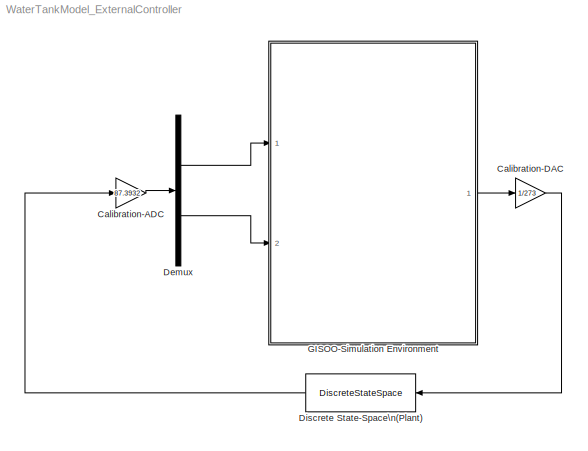
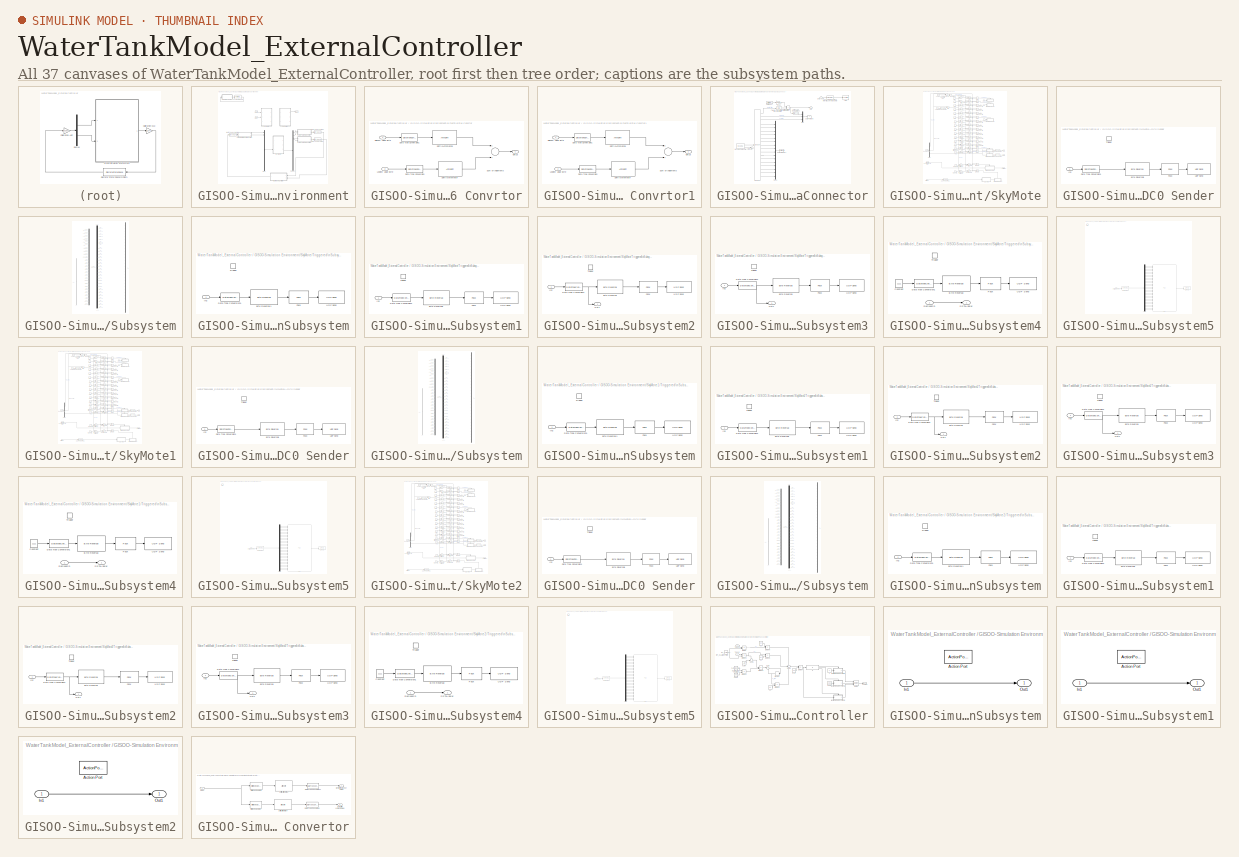
[diagram: thumbnail index - all 37 canvases of the model, root first then tree order]
MODEL WaterTankModel_ExternalController
KIND model
CONFIG InitFcn = initparametersDACADC\n
BLOCK [Gain] Calibration-ADC
  Gain = 87.3932
  OutDataTypeStr = Inherit: Inherit via internal rule
  ParamDataTypeStr = Inherit: Inherit via internal rule
  SID = 5
  SaturateOnIntegerOverflow = off
BLOCK [Gain] Calibration-DAC
  Gain = 1/273
  OutDataTypeStr = Inherit: Inherit via internal rule
  ParamDataTypeStr = Inherit: Inherit via internal rule
  SID = 14
  SaturateOnIntegerOverflow = off
BLOCK [Demux] Demux
  DisplayOption = bar
  Outputs = 2
  Ports = [1, 2]
  SID = 6
BLOCK [DiscreteStateSpace] Discrete State-Space\n(Plant)
  A = Ad
  B = Bd
  C = Cd
  D = Dd
  SID = 2
  SampleTime = -1
  X0 = x0
BLOCK [SubSystem] GISOO-Simulation Environment
  FunctionWithSeparateData = off
  MaskHideContents = off
  MinAlgLoopOccurrences = off
  Opaque = off
  Ports = [2, 1]
  PropExecContextOutsideSubsystem = off
  RTWSystemCode = Auto
  RequestExecContextInheritance = off
  SID = 158
  TreatAsAtomicUnit = on
BLOCK [Inport] GISOO-Simulation Environment/ADC0
  IconDisplay = Port number
  SID = 178
BLOCK [Inport] GISOO-Simulation Environment/ADC1
  IconDisplay = Port number
  Port = 2
  SID = 179
BLOCK [SubSystem] GISOO-Simulation Environment/BytesTo uint16 Convrtor
  FunctionWithSeparateData = off
  MaskHideContents = off
  MinAlgLoopOccurrences = off
  Opaque = off
  Ports = [2, 1]
  PropExecContextOutsideSubsystem = off
  RTWSystemCode = Auto
  RequestExecContextInheritance = off
  SID = 180
BLOCK [DataTypeConversion] GISOO-Simulation Environment/BytesTo uint16 Convrtor/Data Type Conversion
  OutDataTypeStr = uint16
  RndMeth = Floor
  SID = 180:422
  SaturateOnIntegerOverflow = off
BLOCK [DataTypeConversion] GISOO-Simulation Environment/BytesTo uint16 Convrtor/Data Type Conversion1
  OutDataTypeStr = uint16
  RndMeth = Floor
  SID = 180:423
  SaturateOnIntegerOverflow = off
BLOCK [Inport] GISOO-Simulation Environment/BytesTo uint16 Convrtor/Highest Value Byte
  IconDisplay = Port number
  SID = 180:420
BLOCK [Inport] GISOO-Simulation Environment/BytesTo uint16 Convrtor/Lowest Value Byte
  IconDisplay = Port number
  Port = 2
  SID = 180:421
BLOCK [ArithShift] GISOO-Simulation Environment/BytesTo uint16 Convrtor/Shift\nArithmetic4
  BitShiftDirection = Right
  InputPortMap = u0
  Ports = [1, 1]
  SID = 180:424
BLOCK [ArithShift] GISOO-Simulation Environment/BytesTo uint16 Convrtor/Shift\nArithmetic6
  BitShiftDirection = Left
  BitShiftNumber = 8
  InputPortMap = u0
  Ports = [1, 1]
  SID = 180:425
BLOCK [Sum] GISOO-Simulation Environment/BytesTo uint16 Convrtor/Sum of\nElements
  AccumDataTypeStr = Inherit: Same as first input
  CollapseDim = 4
  InputSameDT = off
  OutDataTypeStr = uint16
  Ports = [2, 1]
  SID = 180:426
  SaturateOnIntegerOverflow = off
BLOCK [Outport] GISOO-Simulation Environment/BytesTo uint16 Convrtor/uint16
  IconDisplay = Port number
  SID = 180:427
BLOCK [SubSystem] GISOO-Simulation Environment/BytesTo uint16 Convrtor1
  FunctionWithSeparateData = off
  MaskHideContents = off
  MinAlgLoopOccurrences = off
  Opaque = off
  Ports = [2, 1]
  PropExecContextOutsideSubsystem = off
  RTWSystemCode = Auto
  RequestExecContextInheritance = off
  SID = 181
BLOCK [DataTypeConversion] GISOO-Simulation Environment/BytesTo uint16 Convrtor1/Data Type Conversion
  OutDataTypeStr = uint16
  RndMeth = Floor
  SID = 181:851
  SaturateOnIntegerOverflow = off
BLOCK [DataTypeConversion] GISOO-Simulation Environment/BytesTo uint16 Convrtor1/Data Type Conversion1
  OutDataTypeStr = uint16
  RndMeth = Floor
  SID = 181:852
  SaturateOnIntegerOverflow = off
BLOCK [Inport] GISOO-Simulation Environment/BytesTo uint16 Convrtor1/Highest Value Byte
  IconDisplay = Port number
  SID = 181:849
BLOCK [Inport] GISOO-Simulation Environment/BytesTo uint16 Convrtor1/Lowest Value Byte
  IconDisplay = Port number
  Port = 2
  SID = 181:850
BLOCK [ArithShift] GISOO-Simulation Environment/BytesTo uint16 Convrtor1/Shift\nArithmetic4
  BitShiftDirection = Right
  InputPortMap = u0
  Ports = [1, 1]
  SID = 181:853
BLOCK [ArithShift] GISOO-Simulation Environment/BytesTo uint16 Convrtor1/Shift\nArithmetic6
  BitShiftDirection = Left
  BitShiftNumber = 8
  InputPortMap = u0
  Ports = [1, 1]
  SID = 181:854
BLOCK [Sum] GISOO-Simulation Environment/BytesTo uint16 Convrtor1/Sum of\nElements
  AccumDataTypeStr = Inherit: Same as first input
  CollapseDim = 4
  InputSameDT = off
  OutDataTypeStr = uint16
  Ports = [2, 1]
  SID = 181:855
  SaturateOnIntegerOverflow = off
BLOCK [Outport] GISOO-Simulation Environment/BytesTo uint16 Convrtor1/uint16
  IconDisplay = Port number
  SID = 181:856
BLOCK [SubSystem] GISOO-Simulation Environment/CoojaConnector
  FunctionWithSeparateData = off
  MaskHideContents = off
  MinAlgLoopOccurrences = off
  Opaque = off
  Ports = [1, 1]
  PropExecContextOutsideSubsystem = off
  RTWSystemCode = Auto
  RequestExecContextInheritance = off
  SID = 159
BLOCK [RelationalOperator] GISOO-Simulation Environment/CoojaConnector/Check if Cooja\nis not at same time\n(behind)
  InputSameDT = off
  Operator = >
  OutDataTypeStr = boolean
  Ports = [2, 1]
  SID = 161
BLOCK [Reference] GISOO-Simulation Environment/CoojaConnector/Check that we don't loop forever,\nif Cooja never answers  REF=simulink/Logic and Bit\nOperations/Compare\nTo Constant
  OutDataTypeStr = uint8
  Ports = [1, 1]
  SID = 162
  SourceBlock = simulink/Logic and Bit\nOperations/Compare\nTo Constant
  SourceType = Compare To Constant
  ZeroCross = off
  const = 300000
  relop = <
BLOCK [DataTypeConversion] GISOO-Simulation Environment/CoojaConnector/Data Type Conversion1
  OutDataTypeStr = uint32
  RndMeth = Floor
  SID = 163
  SaturateOnIntegerOverflow = off
BLOCK [Goto] GISOO-Simulation Environment/CoojaConnector/DataForMotes
  SID = 164
  TagVisibility = global
BLOCK [Goto] GISOO-Simulation Environment/CoojaConnector/DataForMotes1
  GotoTag = SerialData
  SID = 165
  TagVisibility = global
BLOCK [Inport] GISOO-Simulation Environment/CoojaConnector/DelayNum.
  IconDisplay = Port number
  SID = 160
BLOCK [DigitalClock] GISOO-Simulation Environment/CoojaConnector/Digital Clock
  SID = 166
  SampleTime = -1
BLOCK [Mux] GISOO-Simulation Environment/CoojaConnector/Mux
  DisplayOption = bar
  Inputs = 3
  Ports = [3, 1]
  SID = 167
BLOCK [Mux] GISOO-Simulation Environment/CoojaConnector/Mux5
  DisplayOption = bar
  Inputs = 16
  Ports = [16, 1]
  SID = 168
BLOCK [Reference] GISOO-Simulation Environment/CoojaConnector/ReceiveFromCooja  REF=xpclib/UDP/Receive
  Ports = [0, 2]
  SID = 169
  SourceBlock = xpclib/UDP/Receive
  SourceType = xpcudpbytereceive
  ipAddress = 127.0.0.1
  ipPort = 55555
  sampletime = -1
  vblLen = off
  width = 28
BLOCK [Assertion] GISOO-Simulation Environment/CoojaConnector/Stop
  AssertionFailFcn = No communication with Cooja;
  SID = 170
BLOCK [Terminator] GISOO-Simulation Environment/CoojaConnector/Terminator
  SID = 171
BLOCK [Bias] GISOO-Simulation Environment/CoojaConnector/Tolerance\ndue to rounding errors
  SID = 172
  SaturateOnIntegerOverflow = off
BLOCK [Reference] GISOO-Simulation Environment/CoojaConnector/Unpack  REF=xpclib/UDP/Unpack
  Ports = [1, 19]
  SID = 173
  SourceBlock = xpclib/UDP/Unpack
  SourceType = xpcbyte2any
  byteAlign = 1
  datatypes = {'uint32','uint32','uint32','uint8','uint8','uint8','uint8','uint8','uint8','uint8','uint8','uint8','uint8','uint8','uint8','uint8','uint8','uint8','uint8'}
  dimensions = {[1],[1],[1],[1],[1],[1],[1],[1],[1],[1],[1],[1],[1],[1],[1],[1],[1],[1],[1]}
BLOCK [Outport] GISOO-Simulation Environment/CoojaConnector/Wait
  IconDisplay = Port number
  SID = 175
BLOCK [Gain] GISOO-Simulation Environment/CoojaConnector/to ms3
  Gain = 1000
  OutDataTypeStr = Inherit: Inherit via back propagation
  ParamDataTypeStr = uint32
  SID = 174
  SaturateOnIntegerOverflow = off
BLOCK [Outport] GISOO-Simulation Environment/DAC0
  IconDisplay = Port number
  SID = 909
BLOCK [DataTypeConversion] GISOO-Simulation Environment/Data Type Conversion
  OutDataTypeStr = double
  RndMeth = Floor
  SID = 182
  SaturateOnIntegerOverflow = off
BLOCK [DataTypeConversion] GISOO-Simulation Environment/Data Type Conversion1
  OutDataTypeStr = double
  RndMeth = Floor
  SID = 183
  SaturateOnIntegerOverflow = off
BLOCK [DataTypeConversion] GISOO-Simulation Environment/Data Type Conversion2
  OutDataTypeStr = uint16
  RndMeth = Floor
  SID = 184
  SaturateOnIntegerOverflow = off
BLOCK [Demux] GISOO-Simulation Environment/Demux2
  DisplayOption = bar
  Outputs = 16
  Ports = [1, 16]
  SID = 185
BLOCK [Mux] GISOO-Simulation Environment/Mux1
  DisplayOption = bar
  Inputs = 16
  Ports = [16, 1]
  SID = 186
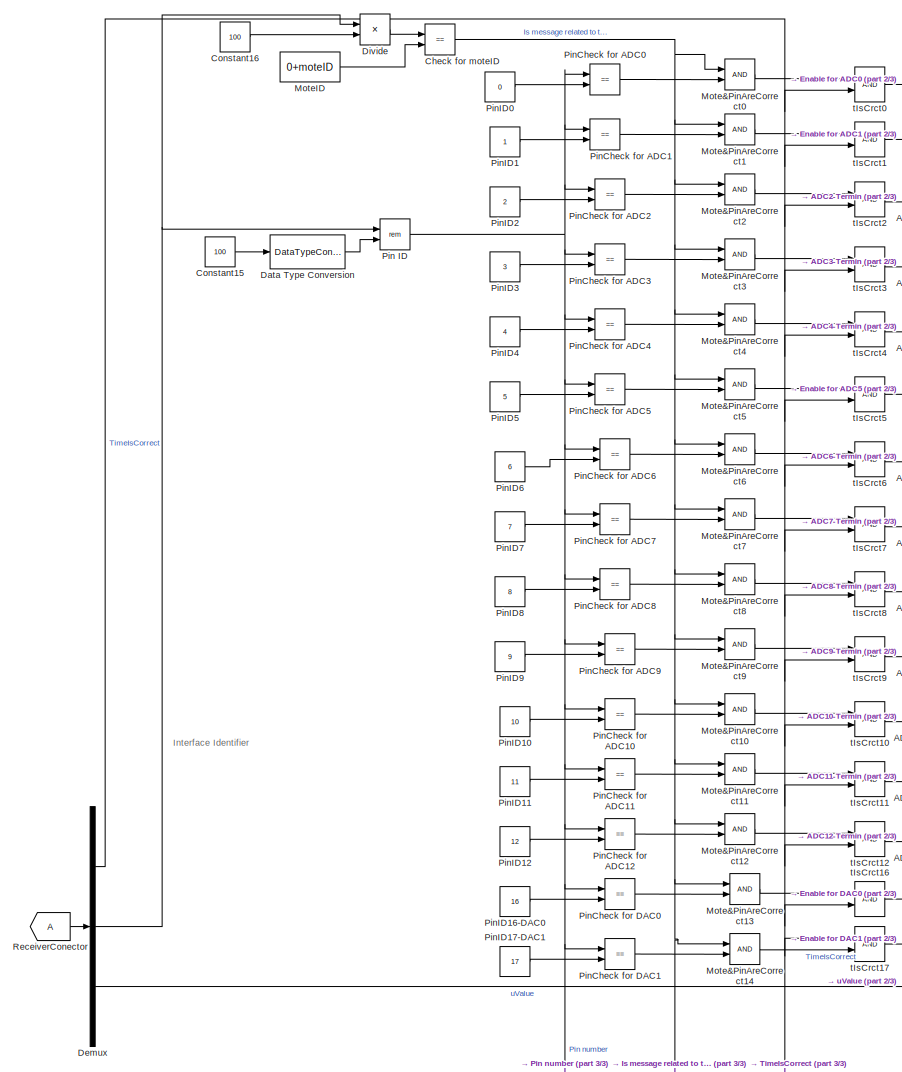
[diagram: GISOO-Simulation Environment/SkyMote - part 1/3, central region]
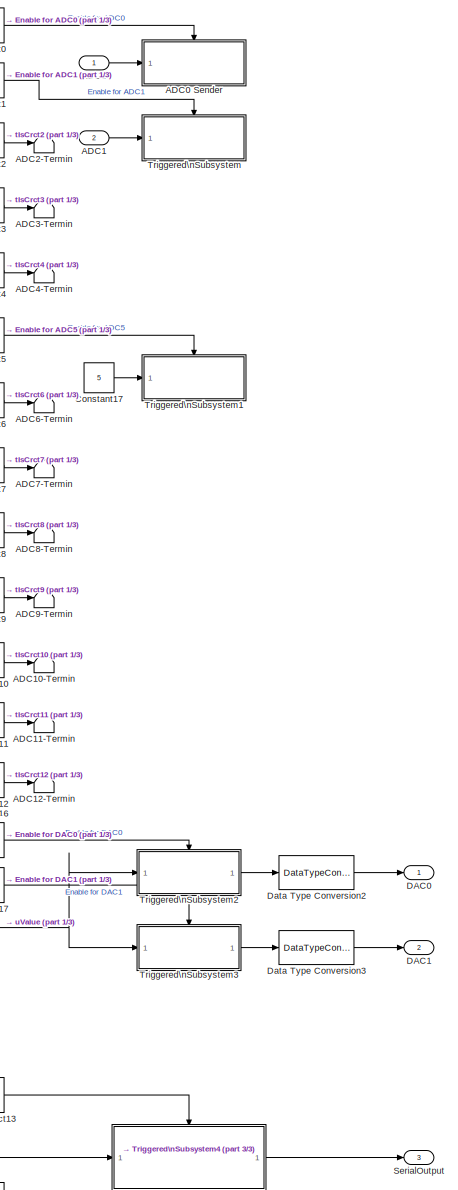
[diagram: GISOO-Simulation Environment/SkyMote - part 2/3, right side, full height]
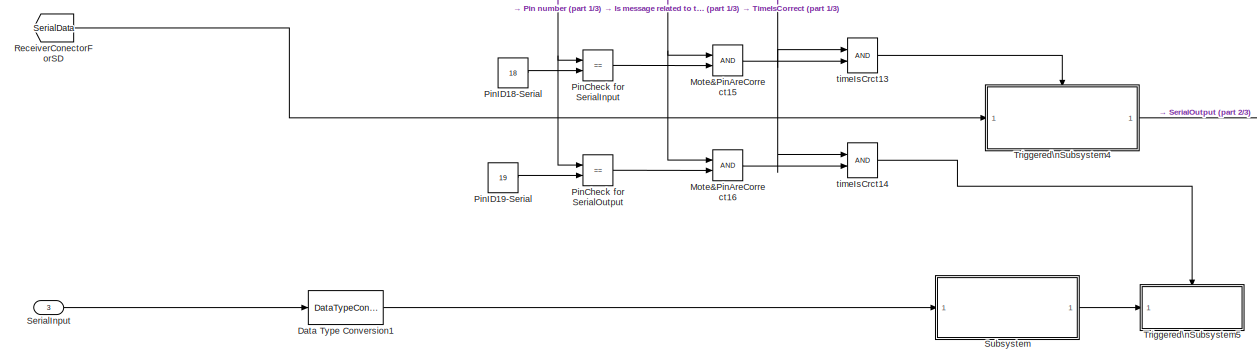
[diagram: GISOO-Simulation Environment/SkyMote - part 3/3, full width, bottom band]
BLOCK [SubSystem] GISOO-Simulation Environment/SkyMote
  FunctionWithSeparateData = off
  MaskHideContents = off
  MinAlgLoopOccurrences = off
  Opaque = off
  Ports = [3, 3]
  PropExecContextOutsideSubsystem = off
  RTWSystemCode = Auto
  RequestExecContextInheritance = off
  SID = 187
BLOCK [Inport] GISOO-Simulation Environment/SkyMote/ADC0
  IconDisplay = Port number
  SID = 188
BLOCK [SubSystem] GISOO-Simulation Environment/SkyMote/ADC0 Sender
  FunctionWithSeparateData = off
  MaskHideContents = off
  MinAlgLoopOccurrences = off
  Opaque = off
  Ports = [1, 0, 0, 1]
  PropExecContextOutsideSubsystem = off
  RTWSystemCode = Auto
  RequestExecContextInheritance = off
  SID = 191
  TreatAsAtomicUnit = on
BLOCK [Reference] GISOO-Simulation Environment/SkyMote/ADC0 Sender/Byte Reversal1  REF=etargetslib/Byte Reversal
  Ports = [1, 1]
  SID = 194
  SourceBlock = etargetslib/Byte Reversal
  SourceType = Byte Reversal
  numInp = 1
BLOCK [DataTypeConversion] GISOO-Simulation Environment/SkyMote/ADC0 Sender/Data Type Conversion1
  OutDataTypeStr = uint32
  RndMeth = Floor
  SID = 195
  SaturateOnIntegerOverflow = off
BLOCK [Inport] GISOO-Simulation Environment/SkyMote/ADC0 Sender/In2
  IconDisplay = Port number
  SID = 192
BLOCK [Reference] GISOO-Simulation Environment/SkyMote/ADC0 Sender/Pack  REF=xpclib/UDP/Pack
  Ports = [1, 1]
  SID = 196
  SourceBlock = xpclib/UDP/Pack
  SourceType = xpcany2byte
  byteAlign = 1
  datatypes = {'uint32'}
BLOCK [TriggerPort] GISOO-Simulation Environment/SkyMote/ADC0 Sender/Trigger
  Ports = []
  SID = 193
  StatesWhenEnabling = held
BLOCK [Reference] GISOO-Simulation Environment/SkyMote/ADC0 Sender/UDP Send  REF=dspnetwork/UDP Send
  Ports = [1]
  SID = 197
  SourceBlock = dspnetwork/UDP Send
  SourceType = UDP Send
  localPort = -1
  localPortSource = Automatically determine
  localURL = '0.0.0.0'
  remotePort = 18000+moteID
  remoteURL = '127.0.0.1'
  sampletime = -1
  separateLengthPort = 0
BLOCK [Inport] GISOO-Simulation Environment/SkyMote/ADC1
  IconDisplay = Port number
  Port = 2
  SID = 189
BLOCK [Terminator] GISOO-Simulation Environment/SkyMote/ADC10-Termin
  SID = 198
BLOCK [Terminator] GISOO-Simulation Environment/SkyMote/ADC11-Termin
  SID = 199
BLOCK [Terminator] GISOO-Simulation Environment/SkyMote/ADC12-Termin
  SID = 200
BLOCK [Terminator] GISOO-Simulation Environment/SkyMote/ADC2-Termin
  SID = 201
BLOCK [Terminator] GISOO-Simulation Environment/SkyMote/ADC3-Termin
  SID = 202
BLOCK [Terminator] GISOO-Simulation Environment/SkyMote/ADC4-Termin
  SID = 203
BLOCK [Terminator] GISOO-Simulation Environment/SkyMote/ADC6-Termin
  SID = 204
BLOCK [Terminator] GISOO-Simulation Environment/SkyMote/ADC7-Termin
  SID = 205
BLOCK [Terminator] GISOO-Simulation Environment/SkyMote/ADC8-Termin
  SID = 206
BLOCK [Terminator] GISOO-Simulation Environment/SkyMote/ADC9-Termin
  SID = 207
BLOCK [RelationalOperator] GISOO-Simulation Environment/SkyMote/Check for moteID
  InputSameDT = off
  Operator = ==
  OutDataTypeStr = boolean
  Ports = [2, 1]
  SID = 208
BLOCK [Constant] GISOO-Simulation Environment/SkyMote/Constant15
  SID = 209
  Value = 100
BLOCK [Constant] GISOO-Simulation Environment/SkyMote/Constant16
  SID = 210
  Value = 100
BLOCK [Constant] GISOO-Simulation Environment/SkyMote/Constant17
  SID = 211
  Value = 5
BLOCK [Outport] GISOO-Simulation Environment/SkyMote/DAC0
  IconDisplay = Port number
  SID = 410
BLOCK [Outport] GISOO-Simulation Environment/SkyMote/DAC1
  IconDisplay = Port number
  Port = 2
  SID = 411
BLOCK [DataTypeConversion] GISOO-Simulation Environment/SkyMote/Data Type Conversion
  OutDataTypeStr = uint32
  RndMeth = Floor
  SID = 212
  SaturateOnIntegerOverflow = off
BLOCK [DataTypeConversion] GISOO-Simulation Environment/SkyMote/Data Type Conversion1
  OutDataTypeStr = uint32
  RndMeth = Floor
  SID = 213
  SaturateOnIntegerOverflow = off
BLOCK [DataTypeConversion] GISOO-Simulation Environment/SkyMote/Data Type Conversion2
  OutDataTypeStr = double
  RndMeth = Floor
  SID = 214
  SaturateOnIntegerOverflow = off
BLOCK [DataTypeConversion] GISOO-Simulation Environment/SkyMote/Data Type Conversion3
  OutDataTypeStr = double
  RndMeth = Floor
  SID = 215
  SaturateOnIntegerOverflow = off
BLOCK [Demux] GISOO-Simulation Environment/SkyMote/Demux
  DisplayOption = bar
  Outputs = 3
  Ports = [1, 3]
  SID = 216
BLOCK [Product] GISOO-Simulation Environment/SkyMote/Divide
  InputSameDT = off
  Inputs = */
  OutDataTypeStr = int32
  Ports = [2, 1]
  RndMeth = Floor
  SID = 217
  SaturateOnIntegerOverflow = off
BLOCK [Logic] GISOO-Simulation Environment/SkyMote/Mote&PinAreCorrect0
  AllPortsSameDT = off
  OutDataTypeStr = boolean
  Ports = [2, 1]
  SID = 218
BLOCK [Logic] GISOO-Simulation Environment/SkyMote/Mote&PinAreCorrect1
  AllPortsSameDT = off
  OutDataTypeStr = boolean
  Ports = [2, 1]
  SID = 219
BLOCK [Logic] GISOO-Simulation Environment/SkyMote/Mote&PinAreCorrect10
  AllPortsSameDT = off
  OutDataTypeStr = boolean
  Ports = [2, 1]
  SID = 220
BLOCK [Logic] GISOO-Simulation Environment/SkyMote/Mote&PinAreCorrect11
  AllPortsSameDT = off
  OutDataTypeStr = boolean
  Ports = [2, 1]
  SID = 221
BLOCK [Logic] GISOO-Simulation Environment/SkyMote/Mote&PinAreCorrect12
  AllPortsSameDT = off
  OutDataTypeStr = boolean
  Ports = [2, 1]
  SID = 222
BLOCK [Logic] GISOO-Simulation Environment/SkyMote/Mote&PinAreCorrect13
  AllPortsSameDT = off
  OutDataTypeStr = boolean
  Ports = [2, 1]
  SID = 223
BLOCK [Logic] GISOO-Simulation Environment/SkyMote/Mote&PinAreCorrect14
  AllPortsSameDT = off
  OutDataTypeStr = boolean
  Ports = [2, 1]
  SID = 224
BLOCK [Logic] GISOO-Simulation Environment/SkyMote/Mote&PinAreCorrect15
  AllPortsSameDT = off
  OutDataTypeStr = boolean
  Ports = [2, 1]
  SID = 225
BLOCK [Logic] GISOO-Simulation Environment/SkyMote/Mote&PinAreCorrect16
  AllPortsSameDT = off
  OutDataTypeStr = boolean
  Ports = [2, 1]
  SID = 226
BLOCK [Logic] GISOO-Simulation Environment/SkyMote/Mote&PinAreCorrect2
  AllPortsSameDT = off
  OutDataTypeStr = boolean
  Ports = [2, 1]
  SID = 227
BLOCK [Logic] GISOO-Simulation Environment/SkyMote/Mote&PinAreCorrect3
  AllPortsSameDT = off
  OutDataTypeStr = boolean
  Ports = [2, 1]
  SID = 228
BLOCK [Logic] GISOO-Simulation Environment/SkyMote/Mote&PinAreCorrect4
  AllPortsSameDT = off
  OutDataTypeStr = boolean
  Ports = [2, 1]
  SID = 229
BLOCK [Logic] GISOO-Simulation Environment/SkyMote/Mote&PinAreCorrect5
  AllPortsSameDT = off
  OutDataTypeStr = boolean
  Ports = [2, 1]
  SID = 230
BLOCK [Logic] GISOO-Simulation Environment/SkyMote/Mote&PinAreCorrect6
  AllPortsSameDT = off
  OutDataTypeStr = boolean
  Ports = [2, 1]
  SID = 231
BLOCK [Logic] GISOO-Simulation Environment/SkyMote/Mote&PinAreCorrect7
  AllPortsSameDT = off
  OutDataTypeStr = boolean
  Ports = [2, 1]
  SID = 232
BLOCK [Logic] GISOO-Simulation Environment/SkyMote/Mote&PinAreCorrect8
  AllPortsSameDT = off
  OutDataTypeStr = boolean
  Ports = [2, 1]
  SID = 233
BLOCK [Logic] GISOO-Simulation Environment/SkyMote/Mote&PinAreCorrect9
  AllPortsSameDT = off
  OutDataTypeStr = boolean
  Ports = [2, 1]
  SID = 234
BLOCK [Constant] GISOO-Simulation Environment/SkyMote/MoteID
  SID = 235
  Value = 0+moteID
BLOCK [Math] GISOO-Simulation Environment/SkyMote/Pin ID
  Operator = rem
  Ports = [2, 1]
  SID = 236
BLOCK [RelationalOperator] GISOO-Simulation Environment/SkyMote/PinCheck for ADC0
  InputSameDT = off
  Operator = ==
  OutDataTypeStr = boolean
  Ports = [2, 1]
  SID = 237
BLOCK [RelationalOperator] GISOO-Simulation Environment/SkyMote/PinCheck for ADC1
  InputSameDT = off
  Operator = ==
  OutDataTypeStr = boolean
  Ports = [2, 1]
  SID = 238
BLOCK [RelationalOperator] GISOO-Simulation Environment/SkyMote/PinCheck for ADC10
  InputSameDT = off
  Operator = ==
  OutDataTypeStr = boolean
  Ports = [2, 1]
  SID = 239
BLOCK [RelationalOperator] GISOO-Simulation Environment/SkyMote/PinCheck for ADC11
  InputSameDT = off
  Operator = ==
  OutDataTypeStr = boolean
  Ports = [2, 1]
  SID = 240
BLOCK [RelationalOperator] GISOO-Simulation Environment/SkyMote/PinCheck for ADC12
  InputSameDT = off
  Operator = ==
  OutDataTypeStr = boolean
  Ports = [2, 1]
  SID = 241
BLOCK [RelationalOperator] GISOO-Simulation Environment/SkyMote/PinCheck for ADC2
  InputSameDT = off
  Operator = ==
  OutDataTypeStr = boolean
  Ports = [2, 1]
  SID = 242
BLOCK [RelationalOperator] GISOO-Simulation Environment/SkyMote/PinCheck for ADC3
  InputSameDT = off
  Operator = ==
  OutDataTypeStr = boolean
  Ports = [2, 1]
  SID = 243
BLOCK [RelationalOperator] GISOO-Simulation Environment/SkyMote/PinCheck for ADC4
  InputSameDT = off
  Operator = ==
  OutDataTypeStr = boolean
  Ports = [2, 1]
  SID = 244
BLOCK [RelationalOperator] GISOO-Simulation Environment/SkyMote/PinCheck for ADC5
  InputSameDT = off
  Operator = ==
  OutDataTypeStr = boolean
  Ports = [2, 1]
  SID = 245
BLOCK [RelationalOperator] GISOO-Simulation Environment/SkyMote/PinCheck for ADC6
  InputSameDT = off
  Operator = ==
  OutDataTypeStr = boolean
  Ports = [2, 1]
  SID = 246
BLOCK [RelationalOperator] GISOO-Simulation Environment/SkyMote/PinCheck for ADC7
  InputSameDT = off
  Operator = ==
  OutDataTypeStr = boolean
  Ports = [2, 1]
  SID = 247
BLOCK [RelationalOperator] GISOO-Simulation Environment/SkyMote/PinCheck for ADC8
  InputSameDT = off
  Operator = ==
  OutDataTypeStr = boolean
  Ports = [2, 1]
  SID = 248
BLOCK [RelationalOperator] GISOO-Simulation Environment/SkyMote/PinCheck for ADC9
  InputSameDT = off
  Operator = ==
  OutDataTypeStr = boolean
  Ports = [2, 1]
  SID = 249
BLOCK [RelationalOperator] GISOO-Simulation Environment/SkyMote/PinCheck for DAC0
  InputSameDT = off
  Operator = ==
  OutDataTypeStr = boolean
  Ports = [2, 1]
  SID = 250
BLOCK [RelationalOperator] GISOO-Simulation Environment/SkyMote/PinCheck for DAC1
  InputSameDT = off
  Operator = ==
  OutDataTypeStr = boolean
  Ports = [2, 1]
  SID = 251
BLOCK [RelationalOperator] GISOO-Simulation Environment/SkyMote/PinCheck for SerialInput
  InputSameDT = off
  Operator = ==
  OutDataTypeStr = boolean
  Ports = [2, 1]
  SID = 252
BLOCK [RelationalOperator] GISOO-Simulation Environment/SkyMote/PinCheck for SerialOutput
  InputSameDT = off
  Operator = ==
  OutDataTypeStr = boolean
  Ports = [2, 1]
  SID = 253
BLOCK [Constant] GISOO-Simulation Environment/SkyMote/PinID0
  SID = 254
  Value = 0
BLOCK [Constant] GISOO-Simulation Environment/SkyMote/PinID1
  SID = 255
BLOCK [Constant] GISOO-Simulation Environment/SkyMote/PinID10
  SID = 256
  Value = 10
BLOCK [Constant] GISOO-Simulation Environment/SkyMote/PinID11
  SID = 257
  Value = 11
BLOCK [Constant] GISOO-Simulation Environment/SkyMote/PinID12
  SID = 258
  Value = 12
BLOCK [Constant] GISOO-Simulation Environment/SkyMote/PinID16-DAC0
  SID = 259
  Value = 16
BLOCK [Constant] GISOO-Simulation Environment/SkyMote/PinID17-DAC1
  SID = 260
  Value = 17
BLOCK [Constant] GISOO-Simulation Environment/SkyMote/PinID18-Serial
  SID = 261
  Value = 18
BLOCK [Constant] GISOO-Simulation Environment/SkyMote/PinID19-Serial
  SID = 262
  Value = 19
BLOCK [Constant] GISOO-Simulation Environment/SkyMote/PinID2
  SID = 263
  Value = 2
BLOCK [Constant] GISOO-Simulation Environment/SkyMote/PinID3
  SID = 264
  Value = 3
BLOCK [Constant] GISOO-Simulation Environment/SkyMote/PinID4
  SID = 265
  Value = 4
BLOCK [Constant] GISOO-Simulation Environment/SkyMote/PinID5
  SID = 266
  Value = 5
BLOCK [Constant] GISOO-Simulation Environment/SkyMote/PinID6
  SID = 267
  Value = 6
BLOCK [Constant] GISOO-Simulation Environment/SkyMote/PinID7
  SID = 268
  Value = 7
BLOCK [Constant] GISOO-Simulation Environment/SkyMote/PinID8
  SID = 269
  Value = 8
BLOCK [Constant] GISOO-Simulation Environment/SkyMote/PinID9
  SID = 270
  Value = 9
BLOCK [From] GISOO-Simulation Environment/SkyMote/ReceiverConector
  SID = 271
  TagVisibility = global
BLOCK [From] GISOO-Simulation Environment/SkyMote/ReceiverConectorForSD
  GotoTag = SerialData
  SID = 272
  TagVisibility = global
BLOCK [Inport] GISOO-Simulation Environment/SkyMote/SerialInput
  IconDisplay = Port number
  Port = 3
  SID = 190
BLOCK [Outport] GISOO-Simulation Environment/SkyMote/SerialOutput
  IconDisplay = Port number
  Port = 3
  SID = 412
BLOCK [SubSystem] GISOO-Simulation Environment/SkyMote/Subsystem
  FunctionWithSeparateData = off
  MaskHideContents = off
  MinAlgLoopOccurrences = off
  Opaque = off
  Ports = [1, 1]
  PropExecContextOutsideSubsystem = off
  RTWSystemCode = Auto
  RequestExecContextInheritance = off
  SID = 273
BLOCK [Constant] GISOO-Simulation Environment/SkyMote/Subsystem/AM Packet type
  OutDataTypeStr = double
  SID = 275
  Value = PacketType
BLOCK [Reference] GISOO-Simulation Environment/SkyMote/Subsystem/Bit to Integer\nConverter  REF=commutil2/Bit to Integer\nConverter
  Ports = [1, 1]
  SID = 276
  SourceBlock = commutil2/Bit to Integer\nConverter
  SourceType = Bit to Integer Converter
  bitOrder = MSB first
  nbits = 8
  outDtype = Inherit via internal rule
  outDtypeSigned = Inherit via internal rule
  signedOutputValues = Unsigned
BLOCK [Reference] GISOO-Simulation Environment/SkyMote/Subsystem/Bit to Integer\nConverter1  REF=commutil2/Bit to Integer\nConverter
  Ports = [1, 1]
  SID = 277
  SourceBlock = commutil2/Bit to Integer\nConverter
  SourceType = Bit to Integer Converter
  bitOrder = MSB first
  nbits = 8
  outDtype = Inherit via internal rule
  outDtypeSigned = Inherit via internal rule
  signedOutputValues = Unsigned
BLOCK [Reference] GISOO-Simulation Environment/SkyMote/Subsystem/Bit to Integer\nConverter10  REF=commutil2/Bit to Integer\nConverter
  Ports = [1, 1]
  SID = 278
  SourceBlock = commutil2/Bit to Integer\nConverter
  SourceType = Bit to Integer Converter
  bitOrder = MSB first
  nbits = 8
  outDtype = Inherit via internal rule
  outDtypeSigned = Inherit via internal rule
  signedOutputValues = Unsigned
BLOCK [Reference] GISOO-Simulation Environment/SkyMote/Subsystem/Bit to Integer\nConverter11  REF=commutil2/Bit to Integer\nConverter
  Ports = [1, 1]
  SID = 279
  SourceBlock = commutil2/Bit to Integer\nConverter
  SourceType = Bit to Integer Converter
  bitOrder = MSB first
  nbits = 8
  outDtype = Inherit via internal rule
  outDtypeSigned = Inherit via internal rule
  signedOutputValues = Unsigned
BLOCK [Reference] GISOO-Simulation Environment/SkyMote/Subsystem/Bit to Integer\nConverter12  REF=commutil2/Bit to Integer\nConverter
  Ports = [1, 1]
  SID = 280
  SourceBlock = commutil2/Bit to Integer\nConverter
  SourceType = Bit to Integer Converter
  bitOrder = MSB first
  nbits = 8
  outDtype = Inherit via internal rule
  outDtypeSigned = Inherit via internal rule
  signedOutputValues = Unsigned
BLOCK [Reference] GISOO-Simulation Environment/SkyMote/Subsystem/Bit to Integer\nConverter13  REF=commutil2/Bit to Integer\nConverter
  Ports = [1, 1]
  SID = 281
  SourceBlock = commutil2/Bit to Integer\nConverter
  SourceType = Bit to Integer Converter
  bitOrder = MSB first
  nbits = 8
  outDtype = Inherit via internal rule
  outDtypeSigned = Inherit via internal rule
  signedOutputValues = Unsigned
BLOCK [Reference] GISOO-Simulation Environment/SkyMote/Subsystem/Bit to Integer\nConverter14  REF=commutil2/Bit to Integer\nConverter
  Ports = [1, 1]
  SID = 282
  SourceBlock = commutil2/Bit to Integer\nConverter
  SourceType = Bit to Integer Converter
  bitOrder = MSB first
  nbits = 8
  outDtype = Inherit via internal rule
  outDtypeSigned = Inherit via internal rule
  signedOutputValues = Unsigned
BLOCK [Reference] GISOO-Simulation Environment/SkyMote/Subsystem/Bit to Integer\nConverter15  REF=commutil2/Bit to Integer\nConverter
  Ports = [1, 1]
  SID = 283
  SourceBlock = commutil2/Bit to Integer\nConverter
  SourceType = Bit to Integer Converter
  bitOrder = MSB first
  nbits = 8
  outDtype = Inherit via internal rule
  outDtypeSigned = Inherit via internal rule
  signedOutputValues = Unsigned
BLOCK [Reference] GISOO-Simulation Environment/SkyMote/Subsystem/Bit to Integer\nConverter16  REF=commutil2/Bit to Integer\nConverter
  Ports = [1, 1]
  SID = 284
  SourceBlock = commutil2/Bit to Integer\nConverter
  SourceType = Bit to Integer Converter
  bitOrder = MSB first
  nbits = 8
  outDtype = Inherit via internal rule
  outDtypeSigned = Inherit via internal rule
  signedOutputValues = Unsigned
BLOCK [Reference] GISOO-Simulation Environment/SkyMote/Subsystem/Bit to Integer\nConverter17  REF=commutil2/Bit to Integer\nConverter
  Ports = [1, 1]
  SID = 285
  SourceBlock = commutil2/Bit to Integer\nConverter
  SourceType = Bit to Integer Converter
  bitOrder = MSB first
  nbits = 8
  outDtype = Inherit via internal rule
  outDtypeSigned = Inherit via internal rule
  signedOutputValues = Unsigned
BLOCK [Reference] GISOO-Simulation Environment/SkyMote/Subsystem/Bit to Integer\nConverter18  REF=commutil2/Bit to Integer\nConverter
  Ports = [1, 1]
  SID = 286
  SourceBlock = commutil2/Bit to Integer\nConverter
  SourceType = Bit to Integer Converter
  bitOrder = MSB first
  nbits = 8
  outDtype = Inherit via internal rule
  outDtypeSigned = Inherit via internal rule
  signedOutputValues = Unsigned
BLOCK [Reference] GISOO-Simulation Environment/SkyMote/Subsystem/Bit to Integer\nConverter19  REF=commutil2/Bit to Integer\nConverter
  Ports = [1, 1]
  SID = 287
  SourceBlock = commutil2/Bit to Integer\nConverter
  SourceType = Bit to Integer Converter
  bitOrder = MSB first
  nbits = 8
  outDtype = Inherit via internal rule
  outDtypeSigned = Inherit via internal rule
  signedOutputValues = Unsigned
BLOCK [Reference] GISOO-Simulation Environment/SkyMote/Subsystem/Bit to Integer\nConverter2  REF=commutil2/Bit to Integer\nConverter
  Ports = [1, 1]
  SID = 288
  SourceBlock = commutil2/Bit to Integer\nConverter
  SourceType = Bit to Integer Converter
  bitOrder = MSB first
  nbits = 8
  outDtype = Inherit via internal rule
  outDtypeSigned = Inherit via internal rule
  signedOutputValues = Unsigned
BLOCK [Reference] GISOO-Simulation Environment/SkyMote/Subsystem/Bit to Integer\nConverter20  REF=commutil2/Bit to Integer\nConverter
  Ports = [1, 1]
  SID = 289
  SourceBlock = commutil2/Bit to Integer\nConverter
  SourceType = Bit to Integer Converter
  bitOrder = MSB first
  nbits = 8
  outDtype = Inherit via internal rule
  outDtypeSigned = Inherit via internal rule
  signedOutputValues = Unsigned
BLOCK [Reference] GISOO-Simulation Environment/SkyMote/Subsystem/Bit to Integer\nConverter21  REF=commutil2/Bit to Integer\nConverter
  Ports = [1, 1]
  SID = 290
  SourceBlock = commutil2/Bit to Integer\nConverter
  SourceType = Bit to Integer Converter
  bitOrder = MSB first
  nbits = 8
  outDtype = Inherit via internal rule
  outDtypeSigned = Inherit via internal rule
  signedOutputValues = Unsigned
BLOCK [Reference] GISOO-Simulation Environment/SkyMote/Subsystem/Bit to Integer\nConverter22  REF=commutil2/Bit to Integer\nConverter
  Ports = [1, 1]
  SID = 291
  SourceBlock = commutil2/Bit to Integer\nConverter
  SourceType = Bit to Integer Converter
  bitOrder = MSB first
  nbits = 8
  outDtype = Inherit via internal rule
  outDtypeSigned = Inherit via internal rule
  signedOutputValues = Unsigned
BLOCK [Reference] GISOO-Simulation Environment/SkyMote/Subsystem/Bit to Integer\nConverter23  REF=commutil2/Bit to Integer\nConverter
  Ports = [1, 1]
  SID = 292
  SourceBlock = commutil2/Bit to Integer\nConverter
  SourceType = Bit to Integer Converter
  bitOrder = MSB first
  nbits = 8
  outDtype = Inherit via internal rule
  outDtypeSigned = Inherit via internal rule
  signedOutputValues = Unsigned
BLOCK [Reference] GISOO-Simulation Environment/SkyMote/Subsystem/Bit to Integer\nConverter24  REF=commutil2/Bit to Integer\nConverter
  Ports = [1, 1]
  SID = 293
  SourceBlock = commutil2/Bit to Integer\nConverter
  SourceType = Bit to Integer Converter
  bitOrder = MSB first
  nbits = 8
  outDtype = Inherit via internal rule
  outDtypeSigned = Inherit via internal rule
  signedOutputValues = Unsigned
BLOCK [Reference] GISOO-Simulation Environment/SkyMote/Subsystem/Bit to Integer\nConverter25  REF=commutil2/Bit to Integer\nConverter
  Ports = [1, 1]
  SID = 294
  SourceBlock = commutil2/Bit to Integer\nConverter
  SourceType = Bit to Integer Converter
  bitOrder = MSB first
  nbits = 8
  outDtype = Inherit via internal rule
  outDtypeSigned = Inherit via internal rule
  signedOutputValues = Unsigned
BLOCK [Reference] GISOO-Simulation Environment/SkyMote/Subsystem/Bit to Integer\nConverter26  REF=commutil2/Bit to Integer\nConverter
  Ports = [1, 1]
  SID = 295
  SourceBlock = commutil2/Bit to Integer\nConverter
  SourceType = Bit to Integer Converter
  bitOrder = MSB first
  nbits = 8
  outDtype = Inherit via internal rule
  outDtypeSigned = Inherit via internal rule
  signedOutputValues = Unsigned
BLOCK [Reference] GISOO-Simulation Environment/SkyMote/Subsystem/Bit to Integer\nConverter27  REF=commutil2/Bit to Integer\nConverter
  Ports = [1, 1]
  SID = 296
  SourceBlock = commutil2/Bit to Integer\nConverter
  SourceType = Bit to Integer Converter
  bitOrder = MSB first
  nbits = 8
  outDtype = Inherit via internal rule
  outDtypeSigned = Inherit via internal rule
  signedOutputValues = Unsigned
BLOCK [Reference] GISOO-Simulation Environment/SkyMote/Subsystem/Bit to Integer\nConverter3  REF=commutil2/Bit to Integer\nConverter
  Ports = [1, 1]
  SID = 297
  SourceBlock = commutil2/Bit to Integer\nConverter
  SourceType = Bit to Integer Converter
  bitOrder = MSB first
  nbits = 8
  outDtype = Inherit via internal rule
  outDtypeSigned = Inherit via internal rule
  signedOutputValues = Unsigned
BLOCK [Reference] GISOO-Simulation Environment/SkyMote/Subsystem/Bit to Integer\nConverter4  REF=commutil2/Bit to Integer\nConverter
  Ports = [1, 1]
  SID = 298
  SourceBlock = commutil2/Bit to Integer\nConverter
  SourceType = Bit to Integer Converter
  bitOrder = MSB first
  nbits = 8
  outDtype = Inherit via internal rule
  outDtypeSigned = Inherit via internal rule
  signedOutputValues = Unsigned
BLOCK [Reference] GISOO-Simulation Environment/SkyMote/Subsystem/Bit to Integer\nConverter5  REF=commutil2/Bit to Integer\nConverter
  Ports = [1, 1]
  SID = 299
  SourceBlock = commutil2/Bit to Integer\nConverter
  SourceType = Bit to Integer Converter
  bitOrder = MSB first
  nbits = 8
  outDtype = Inherit via internal rule
  outDtypeSigned = Inherit via internal rule
  signedOutputValues = Unsigned
BLOCK [Reference] GISOO-Simulation Environment/SkyMote/Subsystem/Bit to Integer\nConverter6  REF=commutil2/Bit to Integer\nConverter
  Ports = [1, 1]
  SID = 300
  SourceBlock = commutil2/Bit to Integer\nConverter
  SourceType = Bit to Integer Converter
  bitOrder = MSB first
  nbits = 8
  outDtype = Inherit via internal rule
  outDtypeSigned = Inherit via internal rule
  signedOutputValues = Unsigned
BLOCK [Reference] GISOO-Simulation Environment/SkyMote/Subsystem/Bit to Integer\nConverter7  REF=commutil2/Bit to Integer\nConverter
  Ports = [1, 1]
  SID = 301
  SourceBlock = commutil2/Bit to Integer\nConverter
  SourceType = Bit to Integer Converter
  bitOrder = MSB first
  nbits = 8
  outDtype = Inherit via internal rule
  outDtypeSigned = Inherit via internal rule
  signedOutputValues = Unsigned
BLOCK [Reference] GISOO-Simulation Environment/SkyMote/Subsystem/Bit to Integer\nConverter8  REF=commutil2/Bit to Integer\nConverter
  Ports = [1, 1]
  SID = 302
  SourceBlock = commutil2/Bit to Integer\nConverter
  SourceType = Bit to Integer Converter
  bitOrder = MSB first
  nbits = 8
  outDtype = Inherit via internal rule
  outDtypeSigned = Inherit via internal rule
  signedOutputValues = Unsigned
BLOCK [Reference] GISOO-Simulation Environment/SkyMote/Subsystem/Bit to Integer\nConverter9  REF=commutil2/Bit to Integer\nConverter
  Ports = [1, 1]
  SID = 303
  SourceBlock = commutil2/Bit to Integer\nConverter
  SourceType = Bit to Integer Converter
  bitOrder = MSB first
  nbits = 8
  outDtype = Inherit via internal rule
  outDtypeSigned = Inherit via internal rule
  signedOutputValues = Unsigned
BLOCK [Constant] GISOO-Simulation Environment/SkyMote/Subsystem/Constant25
  OutDataTypeStr = double
  SID = 304
  Value = 72
BLOCK [Constant] GISOO-Simulation Environment/SkyMote/Subsystem/Constant26
  OutDataTypeStr = double
  SID = 305
  Value = 0
BLOCK [Constant] GISOO-Simulation Environment/SkyMote/Subsystem/Constant27
  OutDataTypeStr = double
  SID = 306
  Value = 255
BLOCK [Constant] GISOO-Simulation Environment/SkyMote/Subsystem/Constant28
  OutDataTypeStr = double
  SID = 307
  Value = 255
BLOCK [Constant] GISOO-Simulation Environment/SkyMote/Subsystem/Constant29
  OutDataTypeStr = double
  SID = 308
  Value = 255
BLOCK [Constant] GISOO-Simulation Environment/SkyMote/Subsystem/Constant30
  OutDataTypeStr = double
  SID = 309
  Value = 255
BLOCK [Constant] GISOO-Simulation Environment/SkyMote/Subsystem/Constant31
  OutDataTypeStr = double
  SID = 310
  Value = 16
BLOCK [Constant] GISOO-Simulation Environment/SkyMote/Subsystem/Constant32
  OutDataTypeStr = double
  SID = 311
  Value = 137
BLOCK [Demux] GISOO-Simulation Environment/SkyMote/Subsystem/Demux1
  DisplayOption = bar
  Outputs = 28
  Ports = [1, 28]
  SID = 312
BLOCK [Demux] GISOO-Simulation Environment/SkyMote/Subsystem/Demux2
  DisplayOption = bar
  Outputs = 16
  Ports = [1, 16]
  SID = 313
BLOCK [Constant] GISOO-Simulation Environment/SkyMote/Subsystem/FrameByteEnd
  OutDataTypeStr = uint8
  SID = 314
  Value = 126
BLOCK [Constant] GISOO-Simulation Environment/SkyMote/Subsystem/FrameByteStart
  OutDataTypeStr = uint8
  SID = 315
  Value = 126
BLOCK [Constant] GISOO-Simulation Environment/SkyMote/Subsystem/Framing byte
  OutDataTypeStr = uint8
  SID = 316
  Value = 68
BLOCK [Reference] GISOO-Simulation Environment/SkyMote/Subsystem/General CRC\nGenerator1  REF=commcrc2/General CRC\nGenerator
  Ports = [1, 1]
  SID = 317
  SourceBlock = commcrc2/General CRC\nGenerator
  SourceType = General CRC Generator
  directMethod = off
  finalXOR = 0
  genPoly = [1 0 0 0 1 0 0 0 0 0 0 1 0 0 0 0 1]
  iniStates = 0
  numChecksums = 1
  reflectChecksums = off
  reflectInputBytes = off
BLOCK [Reference] GISOO-Simulation Environment/SkyMote/Subsystem/Integer to Bit\nConverter  REF=commutil2/Integer to Bit\nConverter
  Ports = [1, 1]
  SID = 318
  SourceBlock = commutil2/Integer to Bit\nConverter
  SourceType = Integer to Bit Converter
  bitOrder = MSB first
  nbits = 8
  outDtype = boolean
  signedInputValues = Unsigned
BLOCK [Reference] GISOO-Simulation Environment/SkyMote/Subsystem/Integer to Bit\nConverter1  REF=commutil2/Integer to Bit\nConverter
  Ports = [1, 1]
  SID = 319
  SourceBlock = commutil2/Integer to Bit\nConverter
  SourceType = Integer to Bit Converter
  bitOrder = MSB first
  nbits = 8
  outDtype = boolean
  signedInputValues = Unsigned
BLOCK [Reference] GISOO-Simulation Environment/SkyMote/Subsystem/Integer to Bit\nConverter10  REF=commutil2/Integer to Bit\nConverter
  Ports = [1, 1]
  SID = 320
  SourceBlock = commutil2/Integer to Bit\nConverter
  SourceType = Integer to Bit Converter
  bitOrder = MSB first
  nbits = 8
  outDtype = boolean
  signedInputValues = Unsigned
BLOCK [Reference] GISOO-Simulation Environment/SkyMote/Subsystem/Integer to Bit\nConverter11  REF=commutil2/Integer to Bit\nConverter
  Ports = [1, 1]
  SID = 321
  SourceBlock = commutil2/Integer to Bit\nConverter
  SourceType = Integer to Bit Converter
  bitOrder = MSB first
  nbits = 8
  outDtype = boolean
  signedInputValues = Unsigned
BLOCK [Reference] GISOO-Simulation Environment/SkyMote/Subsystem/Integer to Bit\nConverter12  REF=commutil2/Integer to Bit\nConverter
  Ports = [1, 1]
  SID = 322
  SourceBlock = commutil2/Integer to Bit\nConverter
  SourceType = Integer to Bit Converter
  bitOrder = MSB first
  nbits = 8
  outDtype = boolean
  signedInputValues = Unsigned
BLOCK [Reference] GISOO-Simulation Environment/SkyMote/Subsystem/Integer to Bit\nConverter13  REF=commutil2/Integer to Bit\nConverter
  Ports = [1, 1]
  SID = 323
  SourceBlock = commutil2/Integer to Bit\nConverter
  SourceType = Integer to Bit Converter
  bitOrder = MSB first
  nbits = 8
  outDtype = boolean
  signedInputValues = Unsigned
BLOCK [Reference] GISOO-Simulation Environment/SkyMote/Subsystem/Integer to Bit\nConverter14  REF=commutil2/Integer to Bit\nConverter
  Ports = [1, 1]
  SID = 324
  SourceBlock = commutil2/Integer to Bit\nConverter
  SourceType = Integer to Bit Converter
  bitOrder = MSB first
  nbits = 8
  outDtype = boolean
  signedInputValues = Unsigned
BLOCK [Reference] GISOO-Simulation Environment/SkyMote/Subsystem/Integer to Bit\nConverter15  REF=commutil2/Integer to Bit\nConverter
  Ports = [1, 1]
  SID = 325
  SourceBlock = commutil2/Integer to Bit\nConverter
  SourceType = Integer to Bit Converter
  bitOrder = MSB first
  nbits = 8
  outDtype = boolean
  signedInputValues = Unsigned
BLOCK [Reference] GISOO-Simulation Environment/SkyMote/Subsystem/Integer to Bit\nConverter16  REF=commutil2/Integer to Bit\nConverter
  Ports = [1, 1]
  SID = 326
  SourceBlock = commutil2/Integer to Bit\nConverter
  SourceType = Integer to Bit Converter
  bitOrder = MSB first
  nbits = 8
  outDtype = boolean
  signedInputValues = Unsigned
BLOCK [Reference] GISOO-Simulation Environment/SkyMote/Subsystem/Integer to Bit\nConverter17  REF=commutil2/Integer to Bit\nConverter
  Ports = [1, 1]
  SID = 327
  SourceBlock = commutil2/Integer to Bit\nConverter
  SourceType = Integer to Bit Converter
  bitOrder = MSB first
  nbits = 8
  outDtype = boolean
  signedInputValues = Unsigned
BLOCK [Reference] GISOO-Simulation Environment/SkyMote/Subsystem/Integer to Bit\nConverter18  REF=commutil2/Integer to Bit\nConverter
  Ports = [1, 1]
  SID = 328
  SourceBlock = commutil2/Integer to Bit\nConverter
  SourceType = Integer to Bit Converter
  bitOrder = MSB first
  nbits = 8
  outDtype = boolean
  signedInputValues = Unsigned
BLOCK [Reference] GISOO-Simulation Environment/SkyMote/Subsystem/Integer to Bit\nConverter19  REF=commutil2/Integer to Bit\nConverter
  Ports = [1, 1]
  SID = 329
  SourceBlock = commutil2/Integer to Bit\nConverter
  SourceType = Integer to Bit Converter
  bitOrder = MSB first
  nbits = 8
  outDtype = boolean
  signedInputValues = Unsigned
BLOCK [Reference] GISOO-Simulation Environment/SkyMote/Subsystem/Integer to Bit\nConverter2  REF=commutil2/Integer to Bit\nConverter
  Ports = [1, 1]
  SID = 330
  SourceBlock = commutil2/Integer to Bit\nConverter
  SourceType = Integer to Bit Converter
  bitOrder = MSB first
  nbits = 8
  outDtype = boolean
  signedInputValues = Unsigned
BLOCK [Reference] GISOO-Simulation Environment/SkyMote/Subsystem/Integer to Bit\nConverter20  REF=commutil2/Integer to Bit\nConverter
  Ports = [1, 1]
  SID = 331
  SourceBlock = commutil2/Integer to Bit\nConverter
  SourceType = Integer to Bit Converter
  bitOrder = MSB first
  nbits = 8
  outDtype = boolean
  signedInputValues = Unsigned
BLOCK [Reference] GISOO-Simulation Environment/SkyMote/Subsystem/Integer to Bit\nConverter21  REF=commutil2/Integer to Bit\nConverter
  Ports = [1, 1]
  SID = 332
  SourceBlock = commutil2/Integer to Bit\nConverter
  SourceType = Integer to Bit Converter
  bitOrder = MSB first
  nbits = 8
  outDtype = boolean
  signedInputValues = Unsigned
BLOCK [Reference] GISOO-Simulation Environment/SkyMote/Subsystem/Integer to Bit\nConverter22  REF=commutil2/Integer to Bit\nConverter
  Ports = [1, 1]
  SID = 333
  SourceBlock = commutil2/Integer to Bit\nConverter
  SourceType = Integer to Bit Converter
  bitOrder = MSB first
  nbits = 8
  outDtype = boolean
  signedInputValues = Unsigned
BLOCK [Reference] GISOO-Simulation Environment/SkyMote/Subsystem/Integer to Bit\nConverter23  REF=commutil2/Integer to Bit\nConverter
  Ports = [1, 1]
  SID = 334
  SourceBlock = commutil2/Integer to Bit\nConverter
  SourceType = Integer to Bit Converter
  bitOrder = MSB first
  nbits = 8
  outDtype = boolean
  signedInputValues = Unsigned
BLOCK [Reference] GISOO-Simulation Environment/SkyMote/Subsystem/Integer to Bit\nConverter24  REF=commutil2/Integer to Bit\nConverter
  Ports = [1, 1]
  SID = 335
  SourceBlock = commutil2/Integer to Bit\nConverter
  SourceType = Integer to Bit Converter
  bitOrder = MSB first
  nbits = 8
  outDtype = boolean
  signedInputValues = Unsigned
BLOCK [Reference] GISOO-Simulation Environment/SkyMote/Subsystem/Integer to Bit\nConverter25  REF=commutil2/Integer to Bit\nConverter
  Ports = [1, 1]
  SID = 336
  SourceBlock = commutil2/Integer to Bit\nConverter
  SourceType = Integer to Bit Converter
  bitOrder = MSB first
  nbits = 8
  outDtype = boolean
  signedInputValues = Unsigned
BLOCK [Reference] GISOO-Simulation Environment/SkyMote/Subsystem/Integer to Bit\nConverter3  REF=commutil2/Integer to Bit\nConverter
  Ports = [1, 1]
  SID = 337
  SourceBlock = commutil2/Integer to Bit\nConverter
  SourceType = Integer to Bit Converter
  bitOrder = MSB first
  nbits = 8
  outDtype = boolean
  signedInputValues = Unsigned
BLOCK [Reference] GISOO-Simulation Environment/SkyMote/Subsystem/Integer to Bit\nConverter4  REF=commutil2/Integer to Bit\nConverter
  Ports = [1, 1]
  SID = 338
  SourceBlock = commutil2/Integer to Bit\nConverter
  SourceType = Integer to Bit Converter
  bitOrder = MSB first
  nbits = 8
  outDtype = boolean
  signedInputValues = Unsigned
BLOCK [Reference] GISOO-Simulation Environment/SkyMote/Subsystem/Integer to Bit\nConverter5  REF=commutil2/Integer to Bit\nConverter
  Ports = [1, 1]
  SID = 339
  SourceBlock = commutil2/Integer to Bit\nConverter
  SourceType = Integer to Bit Converter
  bitOrder = MSB first
  nbits = 8
  outDtype = boolean
  signedInputValues = Unsigned
BLOCK [Reference] GISOO-Simulation Environment/SkyMote/Subsystem/Integer to Bit\nConverter6  REF=commutil2/Integer to Bit\nConverter
  Ports = [1, 1]
  SID = 340
  SourceBlock = commutil2/Integer to Bit\nConverter
  SourceType = Integer to Bit Converter
  bitOrder = MSB first
  nbits = 8
  outDtype = boolean
  signedInputValues = Unsigned
BLOCK [Reference] GISOO-Simulation Environment/SkyMote/Subsystem/Integer to Bit\nConverter7  REF=commutil2/Integer to Bit\nConverter
  Ports = [1, 1]
  SID = 341
  SourceBlock = commutil2/Integer to Bit\nConverter
  SourceType = Integer to Bit Converter
  bitOrder = MSB first
  nbits = 8
  outDtype = boolean
  signedInputValues = Unsigned
BLOCK [Reference] GISOO-Simulation Environment/SkyMote/Subsystem/Integer to Bit\nConverter8  REF=commutil2/Integer to Bit\nConverter
  Ports = [1, 1]
  SID = 342
  SourceBlock = commutil2/Integer to Bit\nConverter
  SourceType = Integer to Bit Converter
  bitOrder = MSB first
  nbits = 8
  outDtype = boolean
  signedInputValues = Unsigned
BLOCK [Reference] GISOO-Simulation Environment/SkyMote/Subsystem/Integer to Bit\nConverter9  REF=commutil2/Integer to Bit\nConverter
  Ports = [1, 1]
  SID = 343
  SourceBlock = commutil2/Integer to Bit\nConverter
  SourceType = Integer to Bit Converter
  bitOrder = MSB first
  nbits = 8
  outDtype = boolean
  signedInputValues = Unsigned
BLOCK [Mux] GISOO-Simulation Environment/SkyMote/Subsystem/Mux1
  DisplayOption = bar
  Inputs = 26
  Ports = [26, 1]
  SID = 344
BLOCK [Mux] GISOO-Simulation Environment/SkyMote/Subsystem/Mux2
  DisplayOption = bar
  Inputs = 30
  Ports = [30, 1]
  SID = 345
BLOCK [Inport] GISOO-Simulation Environment/SkyMote/Subsystem/SerialData
  IconDisplay = Port number
  SID = 274
BLOCK [Outport] GISOO-Simulation Environment/SkyMote/Subsystem/SerialFrame
  IconDisplay = Port number
  SID = 346
BLOCK [SubSystem] GISOO-Simulation Environment/SkyMote/Triggered\nSubsystem
  FunctionWithSeparateData = off
  MaskHideContents = off
  MinAlgLoopOccurrences = off
  Opaque = off
  Ports = [1, 0, 0, 1]
  PropExecContextOutsideSubsystem = off
  RTWSystemCode = Auto
  RequestExecContextInheritance = off
  SID = 347
  TreatAsAtomicUnit = on
BLOCK [Reference] GISOO-Simulation Environment/SkyMote/Triggered\nSubsystem/Byte Reversal1  REF=etargetslib/Byte Reversal
  Ports = [1, 1]
  SID = 350
  SourceBlock = etargetslib/Byte Reversal
  SourceType = Byte Reversal
  numInp = 1
BLOCK [DataTypeConversion] GISOO-Simulation Environment/SkyMote/Triggered\nSubsystem/Data Type Conversion1
  OutDataTypeStr = uint32
  RndMeth = Floor
  SID = 351
  SaturateOnIntegerOverflow = off
BLOCK [Inport] GISOO-Simulation Environment/SkyMote/Triggered\nSubsystem/In2
  IconDisplay = Port number
  SID = 348
BLOCK [Reference] GISOO-Simulation Environment/SkyMote/Triggered\nSubsystem/Pack  REF=xpclib/UDP/Pack
  Ports = [1, 1]
  SID = 352
  SourceBlock = xpclib/UDP/Pack
  SourceType = xpcany2byte
  byteAlign = 1
  datatypes = {'uint32'}
BLOCK [TriggerPort] GISOO-Simulation Environment/SkyMote/Triggered\nSubsystem/Trigger
  Ports = []
  SID = 349
  StatesWhenEnabling = held
BLOCK [Reference] GISOO-Simulation Environment/SkyMote/Triggered\nSubsystem/UDP Send  REF=dspnetwork/UDP Send
  Ports = [1]
  SID = 353
  SourceBlock = dspnetwork/UDP Send
  SourceType = UDP Send
  localPort = -1
  localPortSource = Automatically determine
  localURL = '0.0.0.0'
  remotePort = 18000+moteID
  remoteURL = '127.0.0.1'
  sampletime = -1
  separateLengthPort = 0
BLOCK [SubSystem] GISOO-Simulation Environment/SkyMote/Triggered\nSubsystem1
  FunctionWithSeparateData = off
  MaskHideContents = off
  MinAlgLoopOccurrences = off
  Opaque = off
  Ports = [1, 0, 0, 1]
  PropExecContextOutsideSubsystem = off
  RTWSystemCode = Auto
  RequestExecContextInheritance = off
  SID = 354
  TreatAsAtomicUnit = on
BLOCK [Reference] GISOO-Simulation Environment/SkyMote/Triggered\nSubsystem1/Byte Reversal1  REF=etargetslib/Byte Reversal
  Ports = [1, 1]
  SID = 357
  SourceBlock = etargetslib/Byte Reversal
  SourceType = Byte Reversal
  numInp = 1
BLOCK [DataTypeConversion] GISOO-Simulation Environment/SkyMote/Triggered\nSubsystem1/Data Type Conversion1
  OutDataTypeStr = uint32
  RndMeth = Floor
  SID = 358
  SaturateOnIntegerOverflow = off
BLOCK [Inport] GISOO-Simulation Environment/SkyMote/Triggered\nSubsystem1/In2
  IconDisplay = Port number
  SID = 355
BLOCK [Reference] GISOO-Simulation Environment/SkyMote/Triggered\nSubsystem1/Pack  REF=xpclib/UDP/Pack
  Ports = [1, 1]
  SID = 359
  SourceBlock = xpclib/UDP/Pack
  SourceType = xpcany2byte
  byteAlign = 1
  datatypes = {'uint32'}
BLOCK [TriggerPort] GISOO-Simulation Environment/SkyMote/Triggered\nSubsystem1/Trigger
  Ports = []
  SID = 356
  StatesWhenEnabling = held
BLOCK [Reference] GISOO-Simulation Environment/SkyMote/Triggered\nSubsystem1/UDP Send  REF=dspnetwork/UDP Send
  Ports = [1]
  SID = 360
  SourceBlock = dspnetwork/UDP Send
  SourceType = UDP Send
  localPort = -1
  localPortSource = Automatically determine
  localURL = '0.0.0.0'
  remotePort = 18000+moteID
  remoteURL = '127.0.0.1'
  sampletime = -1
  separateLengthPort = 0
BLOCK [SubSystem] GISOO-Simulation Environment/SkyMote/Triggered\nSubsystem2
  FunctionWithSeparateData = off
  MaskHideContents = off
  MinAlgLoopOccurrences = off
  Opaque = off
  Ports = [1, 1, 0, 1]
  PropExecContextOutsideSubsystem = off
  RTWSystemCode = Auto
  RequestExecContextInheritance = off
  SID = 361
  TreatAsAtomicUnit = on
BLOCK [Reference] GISOO-Simulation Environment/SkyMote/Triggered\nSubsystem2/Byte Reversal  REF=etargetslib/Byte Reversal
  Ports = [1, 1]
  SID = 364
  SourceBlock = etargetslib/Byte Reversal
  SourceType = Byte Reversal
  numInp = 1
BLOCK [DataTypeConversion] GISOO-Simulation Environment/SkyMote/Triggered\nSubsystem2/Data Type Conversion1
  OutDataTypeStr = uint32
  RndMeth = Floor
  SID = 365
  SaturateOnIntegerOverflow = off
BLOCK [Inport] GISOO-Simulation Environment/SkyMote/Triggered\nSubsystem2/In2
  IconDisplay = Port number
  SID = 362
BLOCK [Outport] GISOO-Simulation Environment/SkyMote/Triggered\nSubsystem2/Out1
  IconDisplay = Port number
  SID = 368
BLOCK [Reference] GISOO-Simulation Environment/SkyMote/Triggered\nSubsystem2/Pack  REF=xpclib/UDP/Pack
  Ports = [1, 1]
  SID = 366
  SourceBlock = xpclib/UDP/Pack
  SourceType = xpcany2byte
  byteAlign = 1
  datatypes = {'uint32'}
BLOCK [TriggerPort] GISOO-Simulation Environment/SkyMote/Triggered\nSubsystem2/Trigger
  Ports = []
  SID = 363
  StatesWhenEnabling = held
BLOCK [Reference] GISOO-Simulation Environment/SkyMote/Triggered\nSubsystem2/UDP Send  REF=dspnetwork/UDP Send
  Ports = [1]
  SID = 367
  SourceBlock = dspnetwork/UDP Send
  SourceType = UDP Send
  localPort = -1
  localPortSource = Automatically determine
  localURL = '0.0.0.0'
  remotePort = 18000+moteID
  remoteURL = '127.0.0.1'
  sampletime = -1
  separateLengthPort = 0
BLOCK [SubSystem] GISOO-Simulation Environment/SkyMote/Triggered\nSubsystem3
  FunctionWithSeparateData = off
  MaskHideContents = off
  MinAlgLoopOccurrences = off
  Opaque = off
  Ports = [1, 1, 0, 1]
  PropExecContextOutsideSubsystem = off
  RTWSystemCode = Auto
  RequestExecContextInheritance = off
  SID = 369
  TreatAsAtomicUnit = on
BLOCK [Reference] GISOO-Simulation Environment/SkyMote/Triggered\nSubsystem3/Byte Reversal  REF=etargetslib/Byte Reversal
  Ports = [1, 1]
  SID = 372
  SourceBlock = etargetslib/Byte Reversal
  SourceType = Byte Reversal
  numInp = 1
BLOCK [DataTypeConversion] GISOO-Simulation Environment/SkyMote/Triggered\nSubsystem3/Data Type Conversion1
  OutDataTypeStr = uint32
  RndMeth = Floor
  SID = 373
  SaturateOnIntegerOverflow = off
BLOCK [Inport] GISOO-Simulation Environment/SkyMote/Triggered\nSubsystem3/In2
  IconDisplay = Port number
  SID = 370
BLOCK [Outport] GISOO-Simulation Environment/SkyMote/Triggered\nSubsystem3/Out1
  IconDisplay = Port number
  SID = 376
BLOCK [Reference] GISOO-Simulation Environment/SkyMote/Triggered\nSubsystem3/Pack  REF=xpclib/UDP/Pack
  Ports = [1, 1]
  SID = 374
  SourceBlock = xpclib/UDP/Pack
  SourceType = xpcany2byte
  byteAlign = 1
  datatypes = {'uint32'}
BLOCK [TriggerPort] GISOO-Simulation Environment/SkyMote/Triggered\nSubsystem3/Trigger
  Ports = []
  SID = 371
  StatesWhenEnabling = held
BLOCK [Reference] GISOO-Simulation Environment/SkyMote/Triggered\nSubsystem3/UDP Send  REF=dspnetwork/UDP Send
  Ports = [1]
  SID = 375
  SourceBlock = dspnetwork/UDP Send
  SourceType = UDP Send
  localPort = -1
  localPortSource = Automatically determine
  localURL = '0.0.0.0'
  remotePort = 18000+moteID
  remoteURL = '127.0.0.1'
  sampletime = -1
  separateLengthPort = 0
BLOCK [SubSystem] GISOO-Simulation Environment/SkyMote/Triggered\nSubsystem4
  FunctionWithSeparateData = off
  MaskHideContents = off
  MinAlgLoopOccurrences = off
  Opaque = off
  Ports = [1, 1, 0, 1]
  PropExecContextOutsideSubsystem = off
  RTWSystemCode = Auto
  RequestExecContextInheritance = off
  SID = 377
  TreatAsAtomicUnit = on
BLOCK [Reference] GISOO-Simulation Environment/SkyMote/Triggered\nSubsystem4/Byte Reversal  REF=etargetslib/Byte Reversal
  Ports = [1, 1]
  SID = 380
  SourceBlock = etargetslib/Byte Reversal
  SourceType = Byte Reversal
  numInp = 1
BLOCK [Constant] GISOO-Simulation Environment/SkyMote/Triggered\nSubsystem4/Constant
  SID = 381
  Value = 1111
BLOCK [DataTypeConversion] GISOO-Simulation Environment/SkyMote/Triggered\nSubsystem4/Data Type Conversion1
  OutDataTypeStr = uint32
  RndMeth = Floor
  SID = 382
  SaturateOnIntegerOverflow = off
BLOCK [Reference] GISOO-Simulation Environment/SkyMote/Triggered\nSubsystem4/Pack  REF=xpclib/UDP/Pack
  Ports = [1, 1]
  SID = 383
  SourceBlock = xpclib/UDP/Pack
  SourceType = xpcany2byte
  byteAlign = 1
  datatypes = {'uint32'}
BLOCK [Inport] GISOO-Simulation Environment/SkyMote/Triggered\nSubsystem4/RecivedSD
  IconDisplay = Port number
  SID = 378
BLOCK [Outport] GISOO-Simulation Environment/SkyMote/Triggered\nSubsystem4/SDToApplay
  IconDisplay = Port number
  SID = 385
BLOCK [TriggerPort] GISOO-Simulation Environment/SkyMote/Triggered\nSubsystem4/Trigger
  Ports = []
  SID = 379
  StatesWhenEnabling = held
BLOCK [Reference] GISOO-Simulation Environment/SkyMote/Triggered\nSubsystem4/UDP Send  REF=dspnetwork/UDP Send
  Ports = [1]
  SID = 384
  SourceBlock = dspnetwork/UDP Send
  SourceType = UDP Send
  localPort = -1
  localPortSource = Automatically determine
  localURL = '0.0.0.0'
  remotePort = 18000+moteID
  remoteURL = '127.0.0.1'
  sampletime = -1
  separateLengthPort = 0
BLOCK [SubSystem] GISOO-Simulation Environment/SkyMote/Triggered\nSubsystem5
  FunctionWithSeparateData = off
  MaskHideContents = off
  MinAlgLoopOccurrences = off
  Opaque = off
  Ports = [1, 0, 0, 1]
  PropExecContextOutsideSubsystem = off
  RTWSystemCode = Auto
  RequestExecContextInheritance = off
  SID = 386
  TreatAsAtomicUnit = on
BLOCK [Reference] GISOO-Simulation Environment/SkyMote/Triggered\nSubsystem5/Byte Reversal  REF=etargetslib/Byte Reversal
  Ports = [1, 1]
  SID = 389
  SourceBlock = etargetslib/Byte Reversal
  SourceType = Byte Reversal
  numInp = 1
BLOCK [Demux] GISOO-Simulation Environment/SkyMote/Triggered\nSubsystem5/Demux
  DisplayOption = bar
  Outputs = 30
  Ports = [1, 30]
  SID = 390
BLOCK [Reference] GISOO-Simulation Environment/SkyMote/Triggered\nSubsystem5/Pack  REF=xpclib/UDP/Pack
  Ports = [30, 1]
  SID = 391
  SourceBlock = xpclib/UDP/Pack
  SourceType = xpcany2byte
  byteAlign = 1
  datatypes = {'uint8','uint8','uint8','uint8','uint8','uint8','uint8','uint8','uint8','uint8','uint8','uint8','uint8','uint8','uint8','uint8','uint8','uint8','uint8','uint8','uint8','uint8','uint8','uint8','uint8','uint8','uint8','uint8','uint8','uint8'}  <repeated x3 — deduplicated; at blocks: Pack>
BLOCK [Inport] GISOO-Simulation Environment/SkyMote/Triggered\nSubsystem5/SerialDataToSend
  IconDisplay = Port number
  SID = 387
BLOCK [TriggerPort] GISOO-Simulation Environment/SkyMote/Triggered\nSubsystem5/Trigger
  Ports = []
  SID = 388
  StatesWhenEnabling = held
BLOCK [Reference] GISOO-Simulation Environment/SkyMote/Triggered\nSubsystem5/UDP Send  REF=dspnetwork/UDP Send
  Ports = [1]
  SID = 392
  SourceBlock = dspnetwork/UDP Send
  SourceType = UDP Send
  localPort = -1
  localPortSource = Automatically determine
  localURL = '0.0.0.0'
  remotePort = 18000+moteID
  remoteURL = '127.0.0.1'
  sampletime = -1
  separateLengthPort = 0
BLOCK [Logic] GISOO-Simulation Environment/SkyMote/tIsCrct0
  AllPortsSameDT = off
  OutDataTypeStr = boolean
  Ports = [2, 1]
  SID = 393
BLOCK [Logic] GISOO-Simulation Environment/SkyMote/tIsCrct1
  AllPortsSameDT = off
  OutDataTypeStr = boolean
  Ports = [2, 1]
  SID = 394
BLOCK [Logic] GISOO-Simulation Environment/SkyMote/tIsCrct10
  AllPortsSameDT = off
  OutDataTypeStr = boolean
  Ports = [2, 1]
  SID = 395
BLOCK [Logic] GISOO-Simulation Environment/SkyMote/tIsCrct11
  AllPortsSameDT = off
  OutDataTypeStr = boolean
  Ports = [2, 1]
  SID = 396
BLOCK [Logic] GISOO-Simulation Environment/SkyMote/tIsCrct12
  AllPortsSameDT = off
  OutDataTypeStr = boolean
  Ports = [2, 1]
  SID = 397
BLOCK [Logic] GISOO-Simulation Environment/SkyMote/tIsCrct16
  AllPortsSameDT = off
  OutDataTypeStr = boolean
  Ports = [2, 1]
  SID = 398
BLOCK [Logic] GISOO-Simulation Environment/SkyMote/tIsCrct17
  AllPortsSameDT = off
  OutDataTypeStr = boolean
  Ports = [2, 1]
  SID = 399
BLOCK [Logic] GISOO-Simulation Environment/SkyMote/tIsCrct2
  AllPortsSameDT = off
  OutDataTypeStr = boolean
  Ports = [2, 1]
  SID = 400
BLOCK [Logic] GISOO-Simulation Environment/SkyMote/tIsCrct3
  AllPortsSameDT = off
  OutDataTypeStr = boolean
  Ports = [2, 1]
  SID = 401
BLOCK [Logic] GISOO-Simulation Environment/SkyMote/tIsCrct4
  AllPortsSameDT = off
  OutDataTypeStr = boolean
  Ports = [2, 1]
  SID = 402
BLOCK [Logic] GISOO-Simulation Environment/SkyMote/tIsCrct5
  AllPortsSameDT = off
  OutDataTypeStr = boolean
  Ports = [2, 1]
  SID = 403
BLOCK [Logic] GISOO-Simulation Environment/SkyMote/tIsCrct6
  AllPortsSameDT = off
  OutDataTypeStr = boolean
  Ports = [2, 1]
  SID = 404
BLOCK [Logic] GISOO-Simulation Environment/SkyMote/tIsCrct7
  AllPortsSameDT = off
  OutDataTypeStr = boolean
  Ports = [2, 1]
  SID = 405
BLOCK [Logic] GISOO-Simulation Environment/SkyMote/tIsCrct8
  AllPortsSameDT = off
  OutDataTypeStr = boolean
  Ports = [2, 1]
  SID = 406
BLOCK [Logic] GISOO-Simulation Environment/SkyMote/tIsCrct9
  AllPortsSameDT = off
  OutDataTypeStr = boolean
  Ports = [2, 1]
  SID = 407
BLOCK [Logic] GISOO-Simulation Environment/SkyMote/timeIsCrct13
  AllPortsSameDT = off
  OutDataTypeStr = boolean
  Ports = [2, 1]
  SID = 408
BLOCK [Logic] GISOO-Simulation Environment/SkyMote/timeIsCrct14
  AllPortsSameDT = off
  OutDataTypeStr = boolean
  Ports = [2, 1]
  SID = 409
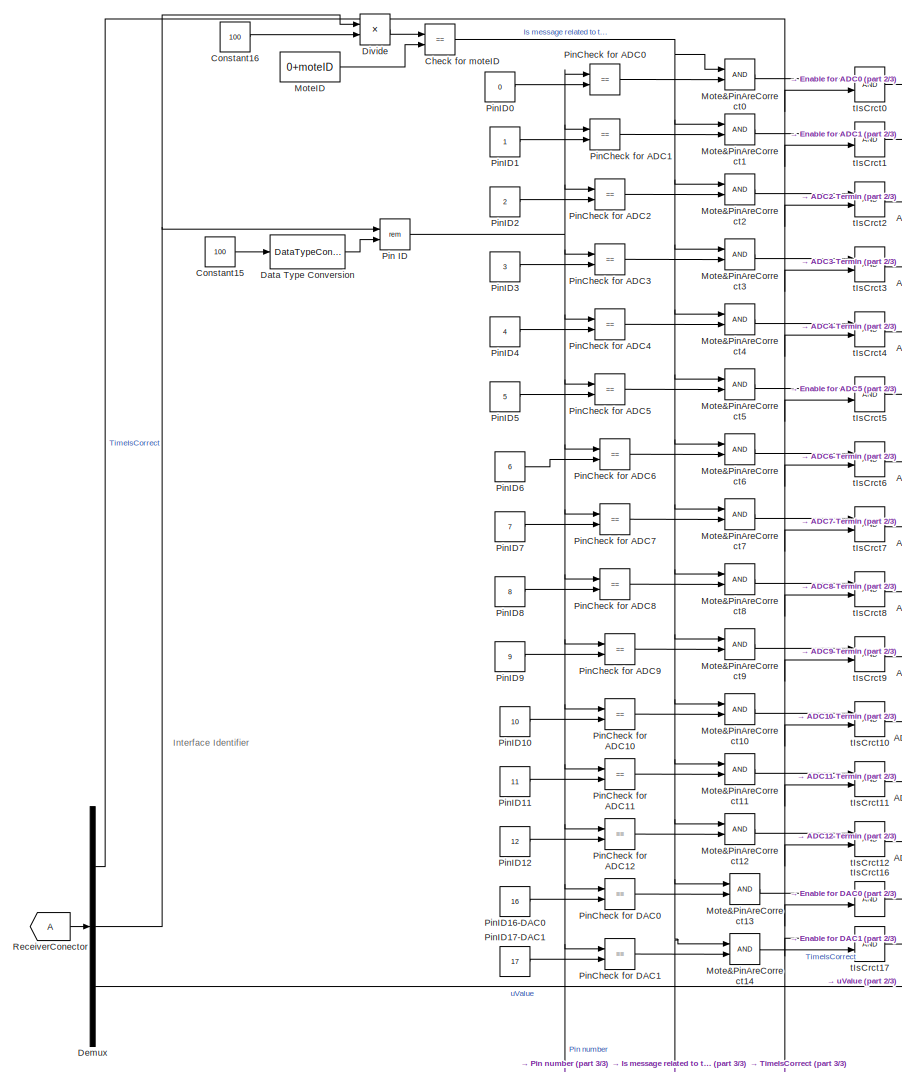
[diagram: GISOO-Simulation Environment/SkyMote1 - part 1/3, central region]
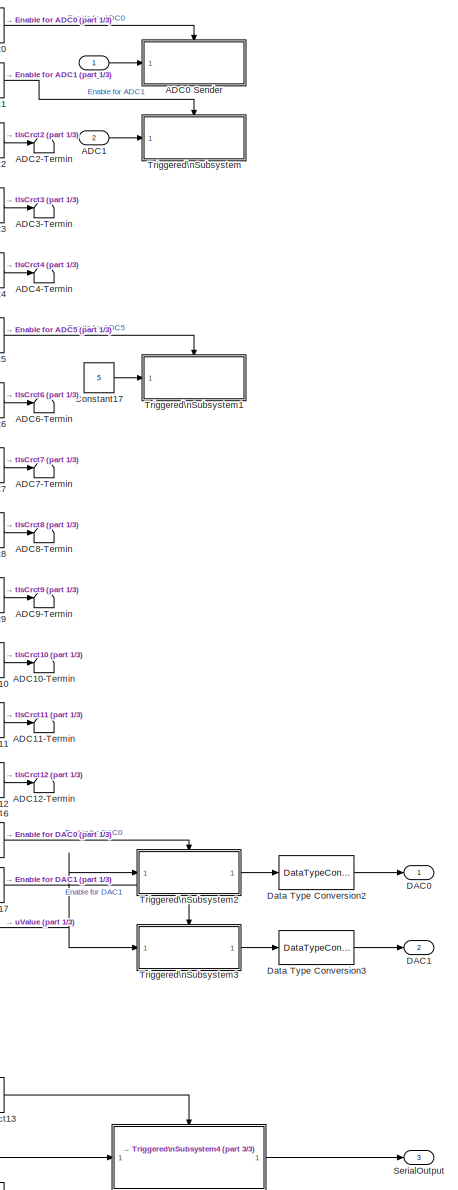
[diagram: GISOO-Simulation Environment/SkyMote1 - part 2/3, right side, full height]
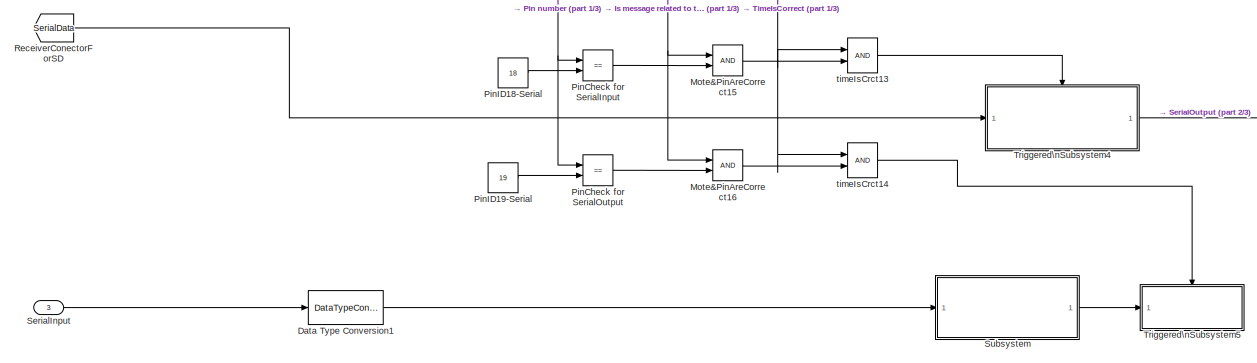
[diagram: GISOO-Simulation Environment/SkyMote1 - part 3/3, full width, bottom band]
BLOCK [SubSystem] GISOO-Simulation Environment/SkyMote1
  FunctionWithSeparateData = off
  MaskHideContents = off
  MinAlgLoopOccurrences = off
  Opaque = off
  Ports = [3, 3]
  PropExecContextOutsideSubsystem = off
  RTWSystemCode = Auto
  RequestExecContextInheritance = off
  SID = 414
BLOCK [Inport] GISOO-Simulation Environment/SkyMote1/ADC0
  IconDisplay = Port number
  SID = 415
BLOCK [SubSystem] GISOO-Simulation Environment/SkyMote1/ADC0 Sender
  FunctionWithSeparateData = off
  MaskHideContents = off
  MinAlgLoopOccurrences = off
  Opaque = off
  Ports = [1, 0, 0, 1]
  PropExecContextOutsideSubsystem = off
  RTWSystemCode = Auto
  RequestExecContextInheritance = off
  SID = 418
  TreatAsAtomicUnit = on
BLOCK [Reference] GISOO-Simulation Environment/SkyMote1/ADC0 Sender/Byte Reversal1  REF=etargetslib/Byte Reversal
  Ports = [1, 1]
  SID = 912
  SourceBlock = etargetslib/Byte Reversal
  SourceType = Byte Reversal
  numInp = 1
BLOCK [DataTypeConversion] GISOO-Simulation Environment/SkyMote1/ADC0 Sender/Data Type Conversion1
  OutDataTypeStr = uint32
  RndMeth = Floor
  SID = 913
  SaturateOnIntegerOverflow = off
BLOCK [Inport] GISOO-Simulation Environment/SkyMote1/ADC0 Sender/In2
  IconDisplay = Port number
  SID = 419
BLOCK [Reference] GISOO-Simulation Environment/SkyMote1/ADC0 Sender/Pack  REF=xpclib/UDP/Pack
  Ports = [1, 1]
  SID = 914
  SourceBlock = xpclib/UDP/Pack
  SourceType = xpcany2byte
  byteAlign = 1
  datatypes = {'uint32'}
BLOCK [TriggerPort] GISOO-Simulation Environment/SkyMote1/ADC0 Sender/Trigger
  Ports = []
  SID = 911
  StatesWhenEnabling = held
BLOCK [Reference] GISOO-Simulation Environment/SkyMote1/ADC0 Sender/UDP Send  REF=dspnetwork/UDP Send
  Ports = [1]
  SID = 915
  SourceBlock = dspnetwork/UDP Send
  SourceType = UDP Send
  localPort = -1
  localPortSource = Automatically determine
  localURL = '0.0.0.0'
  remotePort = 18000+moteID
  remoteURL = '127.0.0.1'
  sampletime = -1
  separateLengthPort = 0
BLOCK [Inport] GISOO-Simulation Environment/SkyMote1/ADC1
  IconDisplay = Port number
  Port = 2
  SID = 416
BLOCK [Terminator] GISOO-Simulation Environment/SkyMote1/ADC10-Termin
  SID = 916
BLOCK [Terminator] GISOO-Simulation Environment/SkyMote1/ADC11-Termin
  SID = 917
BLOCK [Terminator] GISOO-Simulation Environment/SkyMote1/ADC12-Termin
  SID = 918
BLOCK [Terminator] GISOO-Simulation Environment/SkyMote1/ADC2-Termin
  SID = 428
BLOCK [Terminator] GISOO-Simulation Environment/SkyMote1/ADC3-Termin
  SID = 429
BLOCK [Terminator] GISOO-Simulation Environment/SkyMote1/ADC4-Termin
  SID = 430
BLOCK [Terminator] GISOO-Simulation Environment/SkyMote1/ADC6-Termin
  SID = 431
BLOCK [Terminator] GISOO-Simulation Environment/SkyMote1/ADC7-Termin
  SID = 432
BLOCK [Terminator] GISOO-Simulation Environment/SkyMote1/ADC8-Termin
  SID = 433
BLOCK [Terminator] GISOO-Simulation Environment/SkyMote1/ADC9-Termin
  SID = 434
BLOCK [RelationalOperator] GISOO-Simulation Environment/SkyMote1/Check for moteID
  InputSameDT = off
  Operator = ==
  OutDataTypeStr = boolean
  Ports = [2, 1]
  SID = 435
BLOCK [Constant] GISOO-Simulation Environment/SkyMote1/Constant15
  SID = 436
  Value = 100
BLOCK [Constant] GISOO-Simulation Environment/SkyMote1/Constant16
  SID = 437
  Value = 100
BLOCK [Constant] GISOO-Simulation Environment/SkyMote1/Constant17
  SID = 438
  Value = 5
BLOCK [Outport] GISOO-Simulation Environment/SkyMote1/DAC0
  IconDisplay = Port number
  SID = 637
BLOCK [Outport] GISOO-Simulation Environment/SkyMote1/DAC1
  IconDisplay = Port number
  Port = 2
  SID = 638
BLOCK [DataTypeConversion] GISOO-Simulation Environment/SkyMote1/Data Type Conversion
  OutDataTypeStr = uint32
  RndMeth = Floor
  SID = 439
  SaturateOnIntegerOverflow = off
BLOCK [DataTypeConversion] GISOO-Simulation Environment/SkyMote1/Data Type Conversion1
  OutDataTypeStr = uint32
  RndMeth = Floor
  SID = 440
  SaturateOnIntegerOverflow = off
BLOCK [DataTypeConversion] GISOO-Simulation Environment/SkyMote1/Data Type Conversion2
  OutDataTypeStr = double
  RndMeth = Floor
  SID = 441
  SaturateOnIntegerOverflow = off
BLOCK [DataTypeConversion] GISOO-Simulation Environment/SkyMote1/Data Type Conversion3
  OutDataTypeStr = double
  RndMeth = Floor
  SID = 442
  SaturateOnIntegerOverflow = off
BLOCK [Demux] GISOO-Simulation Environment/SkyMote1/Demux
  DisplayOption = bar
  Outputs = 3
  Ports = [1, 3]
  SID = 443
BLOCK [Product] GISOO-Simulation Environment/SkyMote1/Divide
  InputSameDT = off
  Inputs = */
  OutDataTypeStr = int32
  Ports = [2, 1]
  RndMeth = Floor
  SID = 444
  SaturateOnIntegerOverflow = off
BLOCK [Logic] GISOO-Simulation Environment/SkyMote1/Mote&PinAreCorrect0
  AllPortsSameDT = off
  OutDataTypeStr = boolean
  Ports = [2, 1]
  SID = 445
BLOCK [Logic] GISOO-Simulation Environment/SkyMote1/Mote&PinAreCorrect1
  AllPortsSameDT = off
  OutDataTypeStr = boolean
  Ports = [2, 1]
  SID = 446
BLOCK [Logic] GISOO-Simulation Environment/SkyMote1/Mote&PinAreCorrect10
  AllPortsSameDT = off
  OutDataTypeStr = boolean
  Ports = [2, 1]
  SID = 447
BLOCK [Logic] GISOO-Simulation Environment/SkyMote1/Mote&PinAreCorrect11
  AllPortsSameDT = off
  OutDataTypeStr = boolean
  Ports = [2, 1]
  SID = 448
BLOCK [Logic] GISOO-Simulation Environment/SkyMote1/Mote&PinAreCorrect12
  AllPortsSameDT = off
  OutDataTypeStr = boolean
  Ports = [2, 1]
  SID = 449
BLOCK [Logic] GISOO-Simulation Environment/SkyMote1/Mote&PinAreCorrect13
  AllPortsSameDT = off
  OutDataTypeStr = boolean
  Ports = [2, 1]
  SID = 450
BLOCK [Logic] GISOO-Simulation Environment/SkyMote1/Mote&PinAreCorrect14
  AllPortsSameDT = off
  OutDataTypeStr = boolean
  Ports = [2, 1]
  SID = 451
BLOCK [Logic] GISOO-Simulation Environment/SkyMote1/Mote&PinAreCorrect15
  AllPortsSameDT = off
  OutDataTypeStr = boolean
  Ports = [2, 1]
  SID = 452
BLOCK [Logic] GISOO-Simulation Environment/SkyMote1/Mote&PinAreCorrect16
  AllPortsSameDT = off
  OutDataTypeStr = boolean
  Ports = [2, 1]
  SID = 453
BLOCK [Logic] GISOO-Simulation Environment/SkyMote1/Mote&PinAreCorrect2
  AllPortsSameDT = off
  OutDataTypeStr = boolean
  Ports = [2, 1]
  SID = 454
BLOCK [Logic] GISOO-Simulation Environment/SkyMote1/Mote&PinAreCorrect3
  AllPortsSameDT = off
  OutDataTypeStr = boolean
  Ports = [2, 1]
  SID = 455
BLOCK [Logic] GISOO-Simulation Environment/SkyMote1/Mote&PinAreCorrect4
  AllPortsSameDT = off
  OutDataTypeStr = boolean
  Ports = [2, 1]
  SID = 456
BLOCK [Logic] GISOO-Simulation Environment/SkyMote1/Mote&PinAreCorrect5
  AllPortsSameDT = off
  OutDataTypeStr = boolean
  Ports = [2, 1]
  SID = 457
BLOCK [Logic] GISOO-Simulation Environment/SkyMote1/Mote&PinAreCorrect6
  AllPortsSameDT = off
  OutDataTypeStr = boolean
  Ports = [2, 1]
  SID = 458
BLOCK [Logic] GISOO-Simulation Environment/SkyMote1/Mote&PinAreCorrect7
  AllPortsSameDT = off
  OutDataTypeStr = boolean
  Ports = [2, 1]
  SID = 459
BLOCK [Logic] GISOO-Simulation Environment/SkyMote1/Mote&PinAreCorrect8
  AllPortsSameDT = off
  OutDataTypeStr = boolean
  Ports = [2, 1]
  SID = 460
BLOCK [Logic] GISOO-Simulation Environment/SkyMote1/Mote&PinAreCorrect9
  AllPortsSameDT = off
  OutDataTypeStr = boolean
  Ports = [2, 1]
  SID = 461
BLOCK [Constant] GISOO-Simulation Environment/SkyMote1/MoteID
  SID = 462
  Value = 0+moteID
BLOCK [Math] GISOO-Simulation Environment/SkyMote1/Pin ID
  Operator = rem
  Ports = [2, 1]
  SID = 463
BLOCK [RelationalOperator] GISOO-Simulation Environment/SkyMote1/PinCheck for ADC0
  InputSameDT = off
  Operator = ==
  OutDataTypeStr = boolean
  Ports = [2, 1]
  SID = 464
BLOCK [RelationalOperator] GISOO-Simulation Environment/SkyMote1/PinCheck for ADC1
  InputSameDT = off
  Operator = ==
  OutDataTypeStr = boolean
  Ports = [2, 1]
  SID = 465
BLOCK [RelationalOperator] GISOO-Simulation Environment/SkyMote1/PinCheck for ADC10
  InputSameDT = off
  Operator = ==
  OutDataTypeStr = boolean
  Ports = [2, 1]
  SID = 466
BLOCK [RelationalOperator] GISOO-Simulation Environment/SkyMote1/PinCheck for ADC11
  InputSameDT = off
  Operator = ==
  OutDataTypeStr = boolean
  Ports = [2, 1]
  SID = 467
BLOCK [RelationalOperator] GISOO-Simulation Environment/SkyMote1/PinCheck for ADC12
  InputSameDT = off
  Operator = ==
  OutDataTypeStr = boolean
  Ports = [2, 1]
  SID = 468
BLOCK [RelationalOperator] GISOO-Simulation Environment/SkyMote1/PinCheck for ADC2
  InputSameDT = off
  Operator = ==
  OutDataTypeStr = boolean
  Ports = [2, 1]
  SID = 469
BLOCK [RelationalOperator] GISOO-Simulation Environment/SkyMote1/PinCheck for ADC3
  InputSameDT = off
  Operator = ==
  OutDataTypeStr = boolean
  Ports = [2, 1]
  SID = 470
BLOCK [RelationalOperator] GISOO-Simulation Environment/SkyMote1/PinCheck for ADC4
  InputSameDT = off
  Operator = ==
  OutDataTypeStr = boolean
  Ports = [2, 1]
  SID = 471
BLOCK [RelationalOperator] GISOO-Simulation Environment/SkyMote1/PinCheck for ADC5
  InputSameDT = off
  Operator = ==
  OutDataTypeStr = boolean
  Ports = [2, 1]
  SID = 472
BLOCK [RelationalOperator] GISOO-Simulation Environment/SkyMote1/PinCheck for ADC6
  InputSameDT = off
  Operator = ==
  OutDataTypeStr = boolean
  Ports = [2, 1]
  SID = 473
BLOCK [RelationalOperator] GISOO-Simulation Environment/SkyMote1/PinCheck for ADC7
  InputSameDT = off
  Operator = ==
  OutDataTypeStr = boolean
  Ports = [2, 1]
  SID = 474
BLOCK [RelationalOperator] GISOO-Simulation Environment/SkyMote1/PinCheck for ADC8
  InputSameDT = off
  Operator = ==
  OutDataTypeStr = boolean
  Ports = [2, 1]
  SID = 475
BLOCK [RelationalOperator] GISOO-Simulation Environment/SkyMote1/PinCheck for ADC9
  InputSameDT = off
  Operator = ==
  OutDataTypeStr = boolean
  Ports = [2, 1]
  SID = 476
BLOCK [RelationalOperator] GISOO-Simulation Environment/SkyMote1/PinCheck for DAC0
  InputSameDT = off
  Operator = ==
  OutDataTypeStr = boolean
  Ports = [2, 1]
  SID = 477
BLOCK [RelationalOperator] GISOO-Simulation Environment/SkyMote1/PinCheck for DAC1
  InputSameDT = off
  Operator = ==
  OutDataTypeStr = boolean
  Ports = [2, 1]
  SID = 478
BLOCK [RelationalOperator] GISOO-Simulation Environment/SkyMote1/PinCheck for SerialInput
  InputSameDT = off
  Operator = ==
  OutDataTypeStr = boolean
  Ports = [2, 1]
  SID = 479
BLOCK [RelationalOperator] GISOO-Simulation Environment/SkyMote1/PinCheck for SerialOutput
  InputSameDT = off
  Operator = ==
  OutDataTypeStr = boolean
  Ports = [2, 1]
  SID = 480
BLOCK [Constant] GISOO-Simulation Environment/SkyMote1/PinID0
  SID = 481
  Value = 0
BLOCK [Constant] GISOO-Simulation Environment/SkyMote1/PinID1
  SID = 482
BLOCK [Constant] GISOO-Simulation Environment/SkyMote1/PinID10
  SID = 483
  Value = 10
BLOCK [Constant] GISOO-Simulation Environment/SkyMote1/PinID11
  SID = 484
  Value = 11
BLOCK [Constant] GISOO-Simulation Environment/SkyMote1/PinID12
  SID = 485
  Value = 12
BLOCK [Constant] GISOO-Simulation Environment/SkyMote1/PinID16-DAC0
  SID = 486
  Value = 16
BLOCK [Constant] GISOO-Simulation Environment/SkyMote1/PinID17-DAC1
  SID = 487
  Value = 17
BLOCK [Constant] GISOO-Simulation Environment/SkyMote1/PinID18-Serial
  SID = 488
  Value = 18
BLOCK [Constant] GISOO-Simulation Environment/SkyMote1/PinID19-Serial
  SID = 489
  Value = 19
BLOCK [Constant] GISOO-Simulation Environment/SkyMote1/PinID2
  SID = 490
  Value = 2
BLOCK [Constant] GISOO-Simulation Environment/SkyMote1/PinID3
  SID = 491
  Value = 3
BLOCK [Constant] GISOO-Simulation Environment/SkyMote1/PinID4
  SID = 492
  Value = 4
BLOCK [Constant] GISOO-Simulation Environment/SkyMote1/PinID5
  SID = 493
  Value = 5
BLOCK [Constant] GISOO-Simulation Environment/SkyMote1/PinID6
  SID = 494
  Value = 6
BLOCK [Constant] GISOO-Simulation Environment/SkyMote1/PinID7
  SID = 495
  Value = 7
BLOCK [Constant] GISOO-Simulation Environment/SkyMote1/PinID8
  SID = 496
  Value = 8
BLOCK [Constant] GISOO-Simulation Environment/SkyMote1/PinID9
  SID = 497
  Value = 9
BLOCK [From] GISOO-Simulation Environment/SkyMote1/ReceiverConector
  SID = 498
  TagVisibility = global
BLOCK [From] GISOO-Simulation Environment/SkyMote1/ReceiverConectorForSD
  GotoTag = SerialData
  SID = 499
  TagVisibility = global
BLOCK [Inport] GISOO-Simulation Environment/SkyMote1/SerialInput
  IconDisplay = Port number
  Port = 3
  SID = 417
BLOCK [Outport] GISOO-Simulation Environment/SkyMote1/SerialOutput
  IconDisplay = Port number
  Port = 3
  SID = 639
BLOCK [SubSystem] GISOO-Simulation Environment/SkyMote1/Subsystem
  FunctionWithSeparateData = off
  MaskHideContents = off
  MinAlgLoopOccurrences = off
  Opaque = off
  Ports = [1, 1]
  PropExecContextOutsideSubsystem = off
  RTWSystemCode = Auto
  RequestExecContextInheritance = off
  SID = 500
BLOCK [Constant] GISOO-Simulation Environment/SkyMote1/Subsystem/AM Packet type
  OutDataTypeStr = double
  SID = 502
  Value = PacketType
BLOCK [Reference] GISOO-Simulation Environment/SkyMote1/Subsystem/Bit to Integer\nConverter  REF=commutil2/Bit to Integer\nConverter
  Ports = [1, 1]
  SID = 503
  SourceBlock = commutil2/Bit to Integer\nConverter
  SourceType = Bit to Integer Converter
  bitOrder = MSB first
  nbits = 8
  outDtype = Inherit via internal rule
  outDtypeSigned = Inherit via internal rule
  signedOutputValues = Unsigned
BLOCK [Reference] GISOO-Simulation Environment/SkyMote1/Subsystem/Bit to Integer\nConverter1  REF=commutil2/Bit to Integer\nConverter
  Ports = [1, 1]
  SID = 504
  SourceBlock = commutil2/Bit to Integer\nConverter
  SourceType = Bit to Integer Converter
  bitOrder = MSB first
  nbits = 8
  outDtype = Inherit via internal rule
  outDtypeSigned = Inherit via internal rule
  signedOutputValues = Unsigned
BLOCK [Reference] GISOO-Simulation Environment/SkyMote1/Subsystem/Bit to Integer\nConverter10  REF=commutil2/Bit to Integer\nConverter
  Ports = [1, 1]
  SID = 505
  SourceBlock = commutil2/Bit to Integer\nConverter
  SourceType = Bit to Integer Converter
  bitOrder = MSB first
  nbits = 8
  outDtype = Inherit via internal rule
  outDtypeSigned = Inherit via internal rule
  signedOutputValues = Unsigned
BLOCK [Reference] GISOO-Simulation Environment/SkyMote1/Subsystem/Bit to Integer\nConverter11  REF=commutil2/Bit to Integer\nConverter
  Ports = [1, 1]
  SID = 506
  SourceBlock = commutil2/Bit to Integer\nConverter
  SourceType = Bit to Integer Converter
  bitOrder = MSB first
  nbits = 8
  outDtype = Inherit via internal rule
  outDtypeSigned = Inherit via internal rule
  signedOutputValues = Unsigned
BLOCK [Reference] GISOO-Simulation Environment/SkyMote1/Subsystem/Bit to Integer\nConverter12  REF=commutil2/Bit to Integer\nConverter
  Ports = [1, 1]
  SID = 507
  SourceBlock = commutil2/Bit to Integer\nConverter
  SourceType = Bit to Integer Converter
  bitOrder = MSB first
  nbits = 8
  outDtype = Inherit via internal rule
  outDtypeSigned = Inherit via internal rule
  signedOutputValues = Unsigned
BLOCK [Reference] GISOO-Simulation Environment/SkyMote1/Subsystem/Bit to Integer\nConverter13  REF=commutil2/Bit to Integer\nConverter
  Ports = [1, 1]
  SID = 508
  SourceBlock = commutil2/Bit to Integer\nConverter
  SourceType = Bit to Integer Converter
  bitOrder = MSB first
  nbits = 8
  outDtype = Inherit via internal rule
  outDtypeSigned = Inherit via internal rule
  signedOutputValues = Unsigned
BLOCK [Reference] GISOO-Simulation Environment/SkyMote1/Subsystem/Bit to Integer\nConverter14  REF=commutil2/Bit to Integer\nConverter
  Ports = [1, 1]
  SID = 509
  SourceBlock = commutil2/Bit to Integer\nConverter
  SourceType = Bit to Integer Converter
  bitOrder = MSB first
  nbits = 8
  outDtype = Inherit via internal rule
  outDtypeSigned = Inherit via internal rule
  signedOutputValues = Unsigned
BLOCK [Reference] GISOO-Simulation Environment/SkyMote1/Subsystem/Bit to Integer\nConverter15  REF=commutil2/Bit to Integer\nConverter
  Ports = [1, 1]
  SID = 510
  SourceBlock = commutil2/Bit to Integer\nConverter
  SourceType = Bit to Integer Converter
  bitOrder = MSB first
  nbits = 8
  outDtype = Inherit via internal rule
  outDtypeSigned = Inherit via internal rule
  signedOutputValues = Unsigned
BLOCK [Reference] GISOO-Simulation Environment/SkyMote1/Subsystem/Bit to Integer\nConverter16  REF=commutil2/Bit to Integer\nConverter
  Ports = [1, 1]
  SID = 511
  SourceBlock = commutil2/Bit to Integer\nConverter
  SourceType = Bit to Integer Converter
  bitOrder = MSB first
  nbits = 8
  outDtype = Inherit via internal rule
  outDtypeSigned = Inherit via internal rule
  signedOutputValues = Unsigned
BLOCK [Reference] GISOO-Simulation Environment/SkyMote1/Subsystem/Bit to Integer\nConverter17  REF=commutil2/Bit to Integer\nConverter
  Ports = [1, 1]
  SID = 512
  SourceBlock = commutil2/Bit to Integer\nConverter
  SourceType = Bit to Integer Converter
  bitOrder = MSB first
  nbits = 8
  outDtype = Inherit via internal rule
  outDtypeSigned = Inherit via internal rule
  signedOutputValues = Unsigned
BLOCK [Reference] GISOO-Simulation Environment/SkyMote1/Subsystem/Bit to Integer\nConverter18  REF=commutil2/Bit to Integer\nConverter
  Ports = [1, 1]
  SID = 513
  SourceBlock = commutil2/Bit to Integer\nConverter
  SourceType = Bit to Integer Converter
  bitOrder = MSB first
  nbits = 8
  outDtype = Inherit via internal rule
  outDtypeSigned = Inherit via internal rule
  signedOutputValues = Unsigned
BLOCK [Reference] GISOO-Simulation Environment/SkyMote1/Subsystem/Bit to Integer\nConverter19  REF=commutil2/Bit to Integer\nConverter
  Ports = [1, 1]
  SID = 514
  SourceBlock = commutil2/Bit to Integer\nConverter
  SourceType = Bit to Integer Converter
  bitOrder = MSB first
  nbits = 8
  outDtype = Inherit via internal rule
  outDtypeSigned = Inherit via internal rule
  signedOutputValues = Unsigned
BLOCK [Reference] GISOO-Simulation Environment/SkyMote1/Subsystem/Bit to Integer\nConverter2  REF=commutil2/Bit to Integer\nConverter
  Ports = [1, 1]
  SID = 515
  SourceBlock = commutil2/Bit to Integer\nConverter
  SourceType = Bit to Integer Converter
  bitOrder = MSB first
  nbits = 8
  outDtype = Inherit via internal rule
  outDtypeSigned = Inherit via internal rule
  signedOutputValues = Unsigned
BLOCK [Reference] GISOO-Simulation Environment/SkyMote1/Subsystem/Bit to Integer\nConverter20  REF=commutil2/Bit to Integer\nConverter
  Ports = [1, 1]
  SID = 516
  SourceBlock = commutil2/Bit to Integer\nConverter
  SourceType = Bit to Integer Converter
  bitOrder = MSB first
  nbits = 8
  outDtype = Inherit via internal rule
  outDtypeSigned = Inherit via internal rule
  signedOutputValues = Unsigned
BLOCK [Reference] GISOO-Simulation Environment/SkyMote1/Subsystem/Bit to Integer\nConverter21  REF=commutil2/Bit to Integer\nConverter
  Ports = [1, 1]
  SID = 517
  SourceBlock = commutil2/Bit to Integer\nConverter
  SourceType = Bit to Integer Converter
  bitOrder = MSB first
  nbits = 8
  outDtype = Inherit via internal rule
  outDtypeSigned = Inherit via internal rule
  signedOutputValues = Unsigned
BLOCK [Reference] GISOO-Simulation Environment/SkyMote1/Subsystem/Bit to Integer\nConverter22  REF=commutil2/Bit to Integer\nConverter
  Ports = [1, 1]
  SID = 518
  SourceBlock = commutil2/Bit to Integer\nConverter
  SourceType = Bit to Integer Converter
  bitOrder = MSB first
  nbits = 8
  outDtype = Inherit via internal rule
  outDtypeSigned = Inherit via internal rule
  signedOutputValues = Unsigned
BLOCK [Reference] GISOO-Simulation Environment/SkyMote1/Subsystem/Bit to Integer\nConverter23  REF=commutil2/Bit to Integer\nConverter
  Ports = [1, 1]
  SID = 519
  SourceBlock = commutil2/Bit to Integer\nConverter
  SourceType = Bit to Integer Converter
  bitOrder = MSB first
  nbits = 8
  outDtype = Inherit via internal rule
  outDtypeSigned = Inherit via internal rule
  signedOutputValues = Unsigned
BLOCK [Reference] GISOO-Simulation Environment/SkyMote1/Subsystem/Bit to Integer\nConverter24  REF=commutil2/Bit to Integer\nConverter
  Ports = [1, 1]
  SID = 520
  SourceBlock = commutil2/Bit to Integer\nConverter
  SourceType = Bit to Integer Converter
  bitOrder = MSB first
  nbits = 8
  outDtype = Inherit via internal rule
  outDtypeSigned = Inherit via internal rule
  signedOutputValues = Unsigned
BLOCK [Reference] GISOO-Simulation Environment/SkyMote1/Subsystem/Bit to Integer\nConverter25  REF=commutil2/Bit to Integer\nConverter
  Ports = [1, 1]
  SID = 521
  SourceBlock = commutil2/Bit to Integer\nConverter
  SourceType = Bit to Integer Converter
  bitOrder = MSB first
  nbits = 8
  outDtype = Inherit via internal rule
  outDtypeSigned = Inherit via internal rule
  signedOutputValues = Unsigned
BLOCK [Reference] GISOO-Simulation Environment/SkyMote1/Subsystem/Bit to Integer\nConverter26  REF=commutil2/Bit to Integer\nConverter
  Ports = [1, 1]
  SID = 522
  SourceBlock = commutil2/Bit to Integer\nConverter
  SourceType = Bit to Integer Converter
  bitOrder = MSB first
  nbits = 8
  outDtype = Inherit via internal rule
  outDtypeSigned = Inherit via internal rule
  signedOutputValues = Unsigned
BLOCK [Reference] GISOO-Simulation Environment/SkyMote1/Subsystem/Bit to Integer\nConverter27  REF=commutil2/Bit to Integer\nConverter
  Ports = [1, 1]
  SID = 523
  SourceBlock = commutil2/Bit to Integer\nConverter
  SourceType = Bit to Integer Converter
  bitOrder = MSB first
  nbits = 8
  outDtype = Inherit via internal rule
  outDtypeSigned = Inherit via internal rule
  signedOutputValues = Unsigned
BLOCK [Reference] GISOO-Simulation Environment/SkyMote1/Subsystem/Bit to Integer\nConverter3  REF=commutil2/Bit to Integer\nConverter
  Ports = [1, 1]
  SID = 524
  SourceBlock = commutil2/Bit to Integer\nConverter
  SourceType = Bit to Integer Converter
  bitOrder = MSB first
  nbits = 8
  outDtype = Inherit via internal rule
  outDtypeSigned = Inherit via internal rule
  signedOutputValues = Unsigned
BLOCK [Reference] GISOO-Simulation Environment/SkyMote1/Subsystem/Bit to Integer\nConverter4  REF=commutil2/Bit to Integer\nConverter
  Ports = [1, 1]
  SID = 525
  SourceBlock = commutil2/Bit to Integer\nConverter
  SourceType = Bit to Integer Converter
  bitOrder = MSB first
  nbits = 8
  outDtype = Inherit via internal rule
  outDtypeSigned = Inherit via internal rule
  signedOutputValues = Unsigned
BLOCK [Reference] GISOO-Simulation Environment/SkyMote1/Subsystem/Bit to Integer\nConverter5  REF=commutil2/Bit to Integer\nConverter
  Ports = [1, 1]
  SID = 526
  SourceBlock = commutil2/Bit to Integer\nConverter
  SourceType = Bit to Integer Converter
  bitOrder = MSB first
  nbits = 8
  outDtype = Inherit via internal rule
  outDtypeSigned = Inherit via internal rule
  signedOutputValues = Unsigned
BLOCK [Reference] GISOO-Simulation Environment/SkyMote1/Subsystem/Bit to Integer\nConverter6  REF=commutil2/Bit to Integer\nConverter
  Ports = [1, 1]
  SID = 527
  SourceBlock = commutil2/Bit to Integer\nConverter
  SourceType = Bit to Integer Converter
  bitOrder = MSB first
  nbits = 8
  outDtype = Inherit via internal rule
  outDtypeSigned = Inherit via internal rule
  signedOutputValues = Unsigned
BLOCK [Reference] GISOO-Simulation Environment/SkyMote1/Subsystem/Bit to Integer\nConverter7  REF=commutil2/Bit to Integer\nConverter
  Ports = [1, 1]
  SID = 528
  SourceBlock = commutil2/Bit to Integer\nConverter
  SourceType = Bit to Integer Converter
  bitOrder = MSB first
  nbits = 8
  outDtype = Inherit via internal rule
  outDtypeSigned = Inherit via internal rule
  signedOutputValues = Unsigned
BLOCK [Reference] GISOO-Simulation Environment/SkyMote1/Subsystem/Bit to Integer\nConverter8  REF=commutil2/Bit to Integer\nConverter
  Ports = [1, 1]
  SID = 529
  SourceBlock = commutil2/Bit to Integer\nConverter
  SourceType = Bit to Integer Converter
  bitOrder = MSB first
  nbits = 8
  outDtype = Inherit via internal rule
  outDtypeSigned = Inherit via internal rule
  signedOutputValues = Unsigned
BLOCK [Reference] GISOO-Simulation Environment/SkyMote1/Subsystem/Bit to Integer\nConverter9  REF=commutil2/Bit to Integer\nConverter
  Ports = [1, 1]
  SID = 530
  SourceBlock = commutil2/Bit to Integer\nConverter
  SourceType = Bit to Integer Converter
  bitOrder = MSB first
  nbits = 8
  outDtype = Inherit via internal rule
  outDtypeSigned = Inherit via internal rule
  signedOutputValues = Unsigned
BLOCK [Constant] GISOO-Simulation Environment/SkyMote1/Subsystem/Constant25
  OutDataTypeStr = double
  SID = 531
  Value = 72
BLOCK [Constant] GISOO-Simulation Environment/SkyMote1/Subsystem/Constant26
  OutDataTypeStr = double
  SID = 532
  Value = 0
BLOCK [Constant] GISOO-Simulation Environment/SkyMote1/Subsystem/Constant27
  OutDataTypeStr = double
  SID = 533
  Value = 255
BLOCK [Constant] GISOO-Simulation Environment/SkyMote1/Subsystem/Constant28
  OutDataTypeStr = double
  SID = 534
  Value = 255
BLOCK [Constant] GISOO-Simulation Environment/SkyMote1/Subsystem/Constant29
  OutDataTypeStr = double
  SID = 535
  Value = 255
BLOCK [Constant] GISOO-Simulation Environment/SkyMote1/Subsystem/Constant30
  OutDataTypeStr = double
  SID = 536
  Value = 255
BLOCK [Constant] GISOO-Simulation Environment/SkyMote1/Subsystem/Constant31
  OutDataTypeStr = double
  SID = 537
  Value = 16
BLOCK [Constant] GISOO-Simulation Environment/SkyMote1/Subsystem/Constant32
  OutDataTypeStr = double
  SID = 538
  Value = 137
BLOCK [Demux] GISOO-Simulation Environment/SkyMote1/Subsystem/Demux1
  DisplayOption = bar
  Outputs = 28
  Ports = [1, 28]
  SID = 539
BLOCK [Demux] GISOO-Simulation Environment/SkyMote1/Subsystem/Demux2
  DisplayOption = bar
  Outputs = 16
  Ports = [1, 16]
  SID = 540
BLOCK [Constant] GISOO-Simulation Environment/SkyMote1/Subsystem/FrameByteEnd
  OutDataTypeStr = uint8
  SID = 541
  Value = 126
BLOCK [Constant] GISOO-Simulation Environment/SkyMote1/Subsystem/FrameByteStart
  OutDataTypeStr = uint8
  SID = 542
  Value = 126
BLOCK [Constant] GISOO-Simulation Environment/SkyMote1/Subsystem/Framing byte
  OutDataTypeStr = uint8
  SID = 543
  Value = 68
BLOCK [Reference] GISOO-Simulation Environment/SkyMote1/Subsystem/General CRC\nGenerator1  REF=commcrc2/General CRC\nGenerator
  Ports = [1, 1]
  SID = 544
  SourceBlock = commcrc2/General CRC\nGenerator
  SourceType = General CRC Generator
  directMethod = off
  finalXOR = 0
  genPoly = [1 0 0 0 1 0 0 0 0 0 0 1 0 0 0 0 1]
  iniStates = 0
  numChecksums = 1
  reflectChecksums = off
  reflectInputBytes = off
BLOCK [Reference] GISOO-Simulation Environment/SkyMote1/Subsystem/Integer to Bit\nConverter  REF=commutil2/Integer to Bit\nConverter
  Ports = [1, 1]
  SID = 545
  SourceBlock = commutil2/Integer to Bit\nConverter
  SourceType = Integer to Bit Converter
  bitOrder = MSB first
  nbits = 8
  outDtype = boolean
  signedInputValues = Unsigned
BLOCK [Reference] GISOO-Simulation Environment/SkyMote1/Subsystem/Integer to Bit\nConverter1  REF=commutil2/Integer to Bit\nConverter
  Ports = [1, 1]
  SID = 546
  SourceBlock = commutil2/Integer to Bit\nConverter
  SourceType = Integer to Bit Converter
  bitOrder = MSB first
  nbits = 8
  outDtype = boolean
  signedInputValues = Unsigned
BLOCK [Reference] GISOO-Simulation Environment/SkyMote1/Subsystem/Integer to Bit\nConverter10  REF=commutil2/Integer to Bit\nConverter
  Ports = [1, 1]
  SID = 547
  SourceBlock = commutil2/Integer to Bit\nConverter
  SourceType = Integer to Bit Converter
  bitOrder = MSB first
  nbits = 8
  outDtype = boolean
  signedInputValues = Unsigned
BLOCK [Reference] GISOO-Simulation Environment/SkyMote1/Subsystem/Integer to Bit\nConverter11  REF=commutil2/Integer to Bit\nConverter
  Ports = [1, 1]
  SID = 548
  SourceBlock = commutil2/Integer to Bit\nConverter
  SourceType = Integer to Bit Converter
  bitOrder = MSB first
  nbits = 8
  outDtype = boolean
  signedInputValues = Unsigned
BLOCK [Reference] GISOO-Simulation Environment/SkyMote1/Subsystem/Integer to Bit\nConverter12  REF=commutil2/Integer to Bit\nConverter
  Ports = [1, 1]
  SID = 549
  SourceBlock = commutil2/Integer to Bit\nConverter
  SourceType = Integer to Bit Converter
  bitOrder = MSB first
  nbits = 8
  outDtype = boolean
  signedInputValues = Unsigned
BLOCK [Reference] GISOO-Simulation Environment/SkyMote1/Subsystem/Integer to Bit\nConverter13  REF=commutil2/Integer to Bit\nConverter
  Ports = [1, 1]
  SID = 550
  SourceBlock = commutil2/Integer to Bit\nConverter
  SourceType = Integer to Bit Converter
  bitOrder = MSB first
  nbits = 8
  outDtype = boolean
  signedInputValues = Unsigned
BLOCK [Reference] GISOO-Simulation Environment/SkyMote1/Subsystem/Integer to Bit\nConverter14  REF=commutil2/Integer to Bit\nConverter
  Ports = [1, 1]
  SID = 551
  SourceBlock = commutil2/Integer to Bit\nConverter
  SourceType = Integer to Bit Converter
  bitOrder = MSB first
  nbits = 8
  outDtype = boolean
  signedInputValues = Unsigned
BLOCK [Reference] GISOO-Simulation Environment/SkyMote1/Subsystem/Integer to Bit\nConverter15  REF=commutil2/Integer to Bit\nConverter
  Ports = [1, 1]
  SID = 552
  SourceBlock = commutil2/Integer to Bit\nConverter
  SourceType = Integer to Bit Converter
  bitOrder = MSB first
  nbits = 8
  outDtype = boolean
  signedInputValues = Unsigned
BLOCK [Reference] GISOO-Simulation Environment/SkyMote1/Subsystem/Integer to Bit\nConverter16  REF=commutil2/Integer to Bit\nConverter
  Ports = [1, 1]
  SID = 553
  SourceBlock = commutil2/Integer to Bit\nConverter
  SourceType = Integer to Bit Converter
  bitOrder = MSB first
  nbits = 8
  outDtype = boolean
  signedInputValues = Unsigned
BLOCK [Reference] GISOO-Simulation Environment/SkyMote1/Subsystem/Integer to Bit\nConverter17  REF=commutil2/Integer to Bit\nConverter
  Ports = [1, 1]
  SID = 554
  SourceBlock = commutil2/Integer to Bit\nConverter
  SourceType = Integer to Bit Converter
  bitOrder = MSB first
  nbits = 8
  outDtype = boolean
  signedInputValues = Unsigned
BLOCK [Reference] GISOO-Simulation Environment/SkyMote1/Subsystem/Integer to Bit\nConverter18  REF=commutil2/Integer to Bit\nConverter
  Ports = [1, 1]
  SID = 555
  SourceBlock = commutil2/Integer to Bit\nConverter
  SourceType = Integer to Bit Converter
  bitOrder = MSB first
  nbits = 8
  outDtype = boolean
  signedInputValues = Unsigned
BLOCK [Reference] GISOO-Simulation Environment/SkyMote1/Subsystem/Integer to Bit\nConverter19  REF=commutil2/Integer to Bit\nConverter
  Ports = [1, 1]
  SID = 556
  SourceBlock = commutil2/Integer to Bit\nConverter
  SourceType = Integer to Bit Converter
  bitOrder = MSB first
  nbits = 8
  outDtype = boolean
  signedInputValues = Unsigned
BLOCK [Reference] GISOO-Simulation Environment/SkyMote1/Subsystem/Integer to Bit\nConverter2  REF=commutil2/Integer to Bit\nConverter
  Ports = [1, 1]
  SID = 557
  SourceBlock = commutil2/Integer to Bit\nConverter
  SourceType = Integer to Bit Converter
  bitOrder = MSB first
  nbits = 8
  outDtype = boolean
  signedInputValues = Unsigned
BLOCK [Reference] GISOO-Simulation Environment/SkyMote1/Subsystem/Integer to Bit\nConverter20  REF=commutil2/Integer to Bit\nConverter
  Ports = [1, 1]
  SID = 558
  SourceBlock = commutil2/Integer to Bit\nConverter
  SourceType = Integer to Bit Converter
  bitOrder = MSB first
  nbits = 8
  outDtype = boolean
  signedInputValues = Unsigned
BLOCK [Reference] GISOO-Simulation Environment/SkyMote1/Subsystem/Integer to Bit\nConverter21  REF=commutil2/Integer to Bit\nConverter
  Ports = [1, 1]
  SID = 559
  SourceBlock = commutil2/Integer to Bit\nConverter
  SourceType = Integer to Bit Converter
  bitOrder = MSB first
  nbits = 8
  outDtype = boolean
  signedInputValues = Unsigned
BLOCK [Reference] GISOO-Simulation Environment/SkyMote1/Subsystem/Integer to Bit\nConverter22  REF=commutil2/Integer to Bit\nConverter
  Ports = [1, 1]
  SID = 560
  SourceBlock = commutil2/Integer to Bit\nConverter
  SourceType = Integer to Bit Converter
  bitOrder = MSB first
  nbits = 8
  outDtype = boolean
  signedInputValues = Unsigned
BLOCK [Reference] GISOO-Simulation Environment/SkyMote1/Subsystem/Integer to Bit\nConverter23  REF=commutil2/Integer to Bit\nConverter
  Ports = [1, 1]
  SID = 561
  SourceBlock = commutil2/Integer to Bit\nConverter
  SourceType = Integer to Bit Converter
  bitOrder = MSB first
  nbits = 8
  outDtype = boolean
  signedInputValues = Unsigned
BLOCK [Reference] GISOO-Simulation Environment/SkyMote1/Subsystem/Integer to Bit\nConverter24  REF=commutil2/Integer to Bit\nConverter
  Ports = [1, 1]
  SID = 562
  SourceBlock = commutil2/Integer to Bit\nConverter
  SourceType = Integer to Bit Converter
  bitOrder = MSB first
  nbits = 8
  outDtype = boolean
  signedInputValues = Unsigned
BLOCK [Reference] GISOO-Simulation Environment/SkyMote1/Subsystem/Integer to Bit\nConverter25  REF=commutil2/Integer to Bit\nConverter
  Ports = [1, 1]
  SID = 563
  SourceBlock = commutil2/Integer to Bit\nConverter
  SourceType = Integer to Bit Converter
  bitOrder = MSB first
  nbits = 8
  outDtype = boolean
  signedInputValues = Unsigned
BLOCK [Reference] GISOO-Simulation Environment/SkyMote1/Subsystem/Integer to Bit\nConverter3  REF=commutil2/Integer to Bit\nConverter
  Ports = [1, 1]
  SID = 564
  SourceBlock = commutil2/Integer to Bit\nConverter
  SourceType = Integer to Bit Converter
  bitOrder = MSB first
  nbits = 8
  outDtype = boolean
  signedInputValues = Unsigned
BLOCK [Reference] GISOO-Simulation Environment/SkyMote1/Subsystem/Integer to Bit\nConverter4  REF=commutil2/Integer to Bit\nConverter
  Ports = [1, 1]
  SID = 565
  SourceBlock = commutil2/Integer to Bit\nConverter
  SourceType = Integer to Bit Converter
  bitOrder = MSB first
  nbits = 8
  outDtype = boolean
  signedInputValues = Unsigned
BLOCK [Reference] GISOO-Simulation Environment/SkyMote1/Subsystem/Integer to Bit\nConverter5  REF=commutil2/Integer to Bit\nConverter
  Ports = [1, 1]
  SID = 566
  SourceBlock = commutil2/Integer to Bit\nConverter
  SourceType = Integer to Bit Converter
  bitOrder = MSB first
  nbits = 8
  outDtype = boolean
  signedInputValues = Unsigned
BLOCK [Reference] GISOO-Simulation Environment/SkyMote1/Subsystem/Integer to Bit\nConverter6  REF=commutil2/Integer to Bit\nConverter
  Ports = [1, 1]
  SID = 567
  SourceBlock = commutil2/Integer to Bit\nConverter
  SourceType = Integer to Bit Converter
  bitOrder = MSB first
  nbits = 8
  outDtype = boolean
  signedInputValues = Unsigned
BLOCK [Reference] GISOO-Simulation Environment/SkyMote1/Subsystem/Integer to Bit\nConverter7  REF=commutil2/Integer to Bit\nConverter
  Ports = [1, 1]
  SID = 568
  SourceBlock = commutil2/Integer to Bit\nConverter
  SourceType = Integer to Bit Converter
  bitOrder = MSB first
  nbits = 8
  outDtype = boolean
  signedInputValues = Unsigned
BLOCK [Reference] GISOO-Simulation Environment/SkyMote1/Subsystem/Integer to Bit\nConverter8  REF=commutil2/Integer to Bit\nConverter
  Ports = [1, 1]
  SID = 569
  SourceBlock = commutil2/Integer to Bit\nConverter
  SourceType = Integer to Bit Converter
  bitOrder = MSB first
  nbits = 8
  outDtype = boolean
  signedInputValues = Unsigned
BLOCK [Reference] GISOO-Simulation Environment/SkyMote1/Subsystem/Integer to Bit\nConverter9  REF=commutil2/Integer to Bit\nConverter
  Ports = [1, 1]
  SID = 570
  SourceBlock = commutil2/Integer to Bit\nConverter
  SourceType = Integer to Bit Converter
  bitOrder = MSB first
  nbits = 8
  outDtype = boolean
  signedInputValues = Unsigned
BLOCK [Mux] GISOO-Simulation Environment/SkyMote1/Subsystem/Mux1
  DisplayOption = bar
  Inputs = 26
  Ports = [26, 1]
  SID = 571
BLOCK [Mux] GISOO-Simulation Environment/SkyMote1/Subsystem/Mux2
  DisplayOption = bar
  Inputs = 30
  Ports = [30, 1]
  SID = 572
BLOCK [Inport] GISOO-Simulation Environment/SkyMote1/Subsystem/SerialData
  IconDisplay = Port number
  SID = 501
BLOCK [Outport] GISOO-Simulation Environment/SkyMote1/Subsystem/SerialFrame
  IconDisplay = Port number
  SID = 573
BLOCK [SubSystem] GISOO-Simulation Environment/SkyMote1/Triggered\nSubsystem
  FunctionWithSeparateData = off
  MaskHideContents = off
  MinAlgLoopOccurrences = off
  Opaque = off
  Ports = [1, 0, 0, 1]
  PropExecContextOutsideSubsystem = off
  RTWSystemCode = Auto
  RequestExecContextInheritance = off
  SID = 574
  TreatAsAtomicUnit = on
BLOCK [Reference] GISOO-Simulation Environment/SkyMote1/Triggered\nSubsystem/Byte Reversal1  REF=etargetslib/Byte Reversal
  Ports = [1, 1]
  SID = 577
  SourceBlock = etargetslib/Byte Reversal
  SourceType = Byte Reversal
  numInp = 1
BLOCK [DataTypeConversion] GISOO-Simulation Environment/SkyMote1/Triggered\nSubsystem/Data Type Conversion1
  OutDataTypeStr = uint32
  RndMeth = Floor
  SID = 578
  SaturateOnIntegerOverflow = off
BLOCK [Inport] GISOO-Simulation Environment/SkyMote1/Triggered\nSubsystem/In2
  IconDisplay = Port number
  SID = 575
BLOCK [Reference] GISOO-Simulation Environment/SkyMote1/Triggered\nSubsystem/Pack  REF=xpclib/UDP/Pack
  Ports = [1, 1]
  SID = 579
  SourceBlock = xpclib/UDP/Pack
  SourceType = xpcany2byte
  byteAlign = 1
  datatypes = {'uint32'}
BLOCK [TriggerPort] GISOO-Simulation Environment/SkyMote1/Triggered\nSubsystem/Trigger
  Ports = []
  SID = 576
  StatesWhenEnabling = held
BLOCK [Reference] GISOO-Simulation Environment/SkyMote1/Triggered\nSubsystem/UDP Send  REF=dspnetwork/UDP Send
  Ports = [1]
  SID = 580
  SourceBlock = dspnetwork/UDP Send
  SourceType = UDP Send
  localPort = -1
  localPortSource = Automatically determine
  localURL = '0.0.0.0'
  remotePort = 18000+moteID
  remoteURL = '127.0.0.1'
  sampletime = -1
  separateLengthPort = 0
BLOCK [SubSystem] GISOO-Simulation Environment/SkyMote1/Triggered\nSubsystem1
  FunctionWithSeparateData = off
  MaskHideContents = off
  MinAlgLoopOccurrences = off
  Opaque = off
  Ports = [1, 0, 0, 1]
  PropExecContextOutsideSubsystem = off
  RTWSystemCode = Auto
  RequestExecContextInheritance = off
  SID = 581
  TreatAsAtomicUnit = on
BLOCK [Reference] GISOO-Simulation Environment/SkyMote1/Triggered\nSubsystem1/Byte Reversal1  REF=etargetslib/Byte Reversal
  Ports = [1, 1]
  SID = 584
  SourceBlock = etargetslib/Byte Reversal
  SourceType = Byte Reversal
  numInp = 1
BLOCK [DataTypeConversion] GISOO-Simulation Environment/SkyMote1/Triggered\nSubsystem1/Data Type Conversion1
  OutDataTypeStr = uint32
  RndMeth = Floor
  SID = 585
  SaturateOnIntegerOverflow = off
BLOCK [Inport] GISOO-Simulation Environment/SkyMote1/Triggered\nSubsystem1/In2
  IconDisplay = Port number
  SID = 582
BLOCK [Reference] GISOO-Simulation Environment/SkyMote1/Triggered\nSubsystem1/Pack  REF=xpclib/UDP/Pack
  Ports = [1, 1]
  SID = 586
  SourceBlock = xpclib/UDP/Pack
  SourceType = xpcany2byte
  byteAlign = 1
  datatypes = {'uint32'}
BLOCK [TriggerPort] GISOO-Simulation Environment/SkyMote1/Triggered\nSubsystem1/Trigger
  Ports = []
  SID = 583
  StatesWhenEnabling = held
BLOCK [Reference] GISOO-Simulation Environment/SkyMote1/Triggered\nSubsystem1/UDP Send  REF=dspnetwork/UDP Send
  Ports = [1]
  SID = 587
  SourceBlock = dspnetwork/UDP Send
  SourceType = UDP Send
  localPort = -1
  localPortSource = Automatically determine
  localURL = '0.0.0.0'
  remotePort = 18000+moteID
  remoteURL = '127.0.0.1'
  sampletime = -1
  separateLengthPort = 0
BLOCK [SubSystem] GISOO-Simulation Environment/SkyMote1/Triggered\nSubsystem2
  FunctionWithSeparateData = off
  MaskHideContents = off
  MinAlgLoopOccurrences = off
  Opaque = off
  Ports = [1, 1, 0, 1]
  PropExecContextOutsideSubsystem = off
  RTWSystemCode = Auto
  RequestExecContextInheritance = off
  SID = 588
  TreatAsAtomicUnit = on
BLOCK [Reference] GISOO-Simulation Environment/SkyMote1/Triggered\nSubsystem2/Byte Reversal  REF=etargetslib/Byte Reversal
  Ports = [1, 1]
  SID = 591
  SourceBlock = etargetslib/Byte Reversal
  SourceType = Byte Reversal
  numInp = 1
BLOCK [DataTypeConversion] GISOO-Simulation Environment/SkyMote1/Triggered\nSubsystem2/Data Type Conversion1
  OutDataTypeStr = uint32
  RndMeth = Floor
  SID = 592
  SaturateOnIntegerOverflow = off
BLOCK [Inport] GISOO-Simulation Environment/SkyMote1/Triggered\nSubsystem2/In2
  IconDisplay = Port number
  SID = 589
BLOCK [Outport] GISOO-Simulation Environment/SkyMote1/Triggered\nSubsystem2/Out1
  IconDisplay = Port number
  SID = 595
BLOCK [Reference] GISOO-Simulation Environment/SkyMote1/Triggered\nSubsystem2/Pack  REF=xpclib/UDP/Pack
  Ports = [1, 1]
  SID = 593
  SourceBlock = xpclib/UDP/Pack
  SourceType = xpcany2byte
  byteAlign = 1
  datatypes = {'uint32'}
BLOCK [TriggerPort] GISOO-Simulation Environment/SkyMote1/Triggered\nSubsystem2/Trigger
  Ports = []
  SID = 590
  StatesWhenEnabling = held
BLOCK [Reference] GISOO-Simulation Environment/SkyMote1/Triggered\nSubsystem2/UDP Send  REF=dspnetwork/UDP Send
  Ports = [1]
  SID = 594
  SourceBlock = dspnetwork/UDP Send
  SourceType = UDP Send
  localPort = -1
  localPortSource = Automatically determine
  localURL = '0.0.0.0'
  remotePort = 18000+moteID
  remoteURL = '127.0.0.1'
  sampletime = -1
  separateLengthPort = 0
BLOCK [SubSystem] GISOO-Simulation Environment/SkyMote1/Triggered\nSubsystem3
  FunctionWithSeparateData = off
  MaskHideContents = off
  MinAlgLoopOccurrences = off
  Opaque = off
  Ports = [1, 1, 0, 1]
  PropExecContextOutsideSubsystem = off
  RTWSystemCode = Auto
  RequestExecContextInheritance = off
  SID = 596
  TreatAsAtomicUnit = on
BLOCK [Reference] GISOO-Simulation Environment/SkyMote1/Triggered\nSubsystem3/Byte Reversal  REF=etargetslib/Byte Reversal
  Ports = [1, 1]
  SID = 599
  SourceBlock = etargetslib/Byte Reversal
  SourceType = Byte Reversal
  numInp = 1
BLOCK [DataTypeConversion] GISOO-Simulation Environment/SkyMote1/Triggered\nSubsystem3/Data Type Conversion1
  OutDataTypeStr = uint32
  RndMeth = Floor
  SID = 600
  SaturateOnIntegerOverflow = off
BLOCK [Inport] GISOO-Simulation Environment/SkyMote1/Triggered\nSubsystem3/In2
  IconDisplay = Port number
  SID = 597
BLOCK [Outport] GISOO-Simulation Environment/SkyMote1/Triggered\nSubsystem3/Out1
  IconDisplay = Port number
  SID = 603
BLOCK [Reference] GISOO-Simulation Environment/SkyMote1/Triggered\nSubsystem3/Pack  REF=xpclib/UDP/Pack
  Ports = [1, 1]
  SID = 601
  SourceBlock = xpclib/UDP/Pack
  SourceType = xpcany2byte
  byteAlign = 1
  datatypes = {'uint32'}
BLOCK [TriggerPort] GISOO-Simulation Environment/SkyMote1/Triggered\nSubsystem3/Trigger
  Ports = []
  SID = 598
  StatesWhenEnabling = held
BLOCK [Reference] GISOO-Simulation Environment/SkyMote1/Triggered\nSubsystem3/UDP Send  REF=dspnetwork/UDP Send
  Ports = [1]
  SID = 602
  SourceBlock = dspnetwork/UDP Send
  SourceType = UDP Send
  localPort = -1
  localPortSource = Automatically determine
  localURL = '0.0.0.0'
  remotePort = 18000+moteID
  remoteURL = '127.0.0.1'
  sampletime = -1
  separateLengthPort = 0
BLOCK [SubSystem] GISOO-Simulation Environment/SkyMote1/Triggered\nSubsystem4
  FunctionWithSeparateData = off
  MaskHideContents = off
  MinAlgLoopOccurrences = off
  Opaque = off
  Ports = [1, 1, 0, 1]
  PropExecContextOutsideSubsystem = off
  RTWSystemCode = Auto
  RequestExecContextInheritance = off
  SID = 604
  TreatAsAtomicUnit = on
BLOCK [Reference] GISOO-Simulation Environment/SkyMote1/Triggered\nSubsystem4/Byte Reversal  REF=etargetslib/Byte Reversal
  Ports = [1, 1]
  SID = 607
  SourceBlock = etargetslib/Byte Reversal
  SourceType = Byte Reversal
  numInp = 1
BLOCK [Constant] GISOO-Simulation Environment/SkyMote1/Triggered\nSubsystem4/Constant
  SID = 608
  Value = 1111
BLOCK [DataTypeConversion] GISOO-Simulation Environment/SkyMote1/Triggered\nSubsystem4/Data Type Conversion1
  OutDataTypeStr = uint32
  RndMeth = Floor
  SID = 609
  SaturateOnIntegerOverflow = off
BLOCK [Reference] GISOO-Simulation Environment/SkyMote1/Triggered\nSubsystem4/Pack  REF=xpclib/UDP/Pack
  Ports = [1, 1]
  SID = 610
  SourceBlock = xpclib/UDP/Pack
  SourceType = xpcany2byte
  byteAlign = 1
  datatypes = {'uint32'}
BLOCK [Inport] GISOO-Simulation Environment/SkyMote1/Triggered\nSubsystem4/RecivedSD
  IconDisplay = Port number
  SID = 605
BLOCK [Outport] GISOO-Simulation Environment/SkyMote1/Triggered\nSubsystem4/SDToApplay
  IconDisplay = Port number
  SID = 612
BLOCK [TriggerPort] GISOO-Simulation Environment/SkyMote1/Triggered\nSubsystem4/Trigger
  Ports = []
  SID = 606
  StatesWhenEnabling = held
BLOCK [Reference] GISOO-Simulation Environment/SkyMote1/Triggered\nSubsystem4/UDP Send  REF=dspnetwork/UDP Send
  Ports = [1]
  SID = 611
  SourceBlock = dspnetwork/UDP Send
  SourceType = UDP Send
  localPort = -1
  localPortSource = Automatically determine
  localURL = '0.0.0.0'
  remotePort = 18000+moteID
  remoteURL = '127.0.0.1'
  sampletime = -1
  separateLengthPort = 0
BLOCK [SubSystem] GISOO-Simulation Environment/SkyMote1/Triggered\nSubsystem5
  FunctionWithSeparateData = off
  MaskHideContents = off
  MinAlgLoopOccurrences = off
  Opaque = off
  Ports = [1, 0, 0, 1]
  PropExecContextOutsideSubsystem = off
  RTWSystemCode = Auto
  RequestExecContextInheritance = off
  SID = 613
  TreatAsAtomicUnit = on
BLOCK [Reference] GISOO-Simulation Environment/SkyMote1/Triggered\nSubsystem5/Byte Reversal  REF=etargetslib/Byte Reversal
  Ports = [1, 1]
  SID = 616
  SourceBlock = etargetslib/Byte Reversal
  SourceType = Byte Reversal
  numInp = 1
BLOCK [Demux] GISOO-Simulation Environment/SkyMote1/Triggered\nSubsystem5/Demux
  DisplayOption = bar
  Outputs = 30
  Ports = [1, 30]
  SID = 617
BLOCK [Reference] GISOO-Simulation Environment/SkyMote1/Triggered\nSubsystem5/Pack  REF=xpclib/UDP/Pack
  Ports = [30, 1]
  SID = 618
  SourceBlock = xpclib/UDP/Pack
  SourceType = xpcany2byte
  byteAlign = 1
BLOCK [Inport] GISOO-Simulation Environment/SkyMote1/Triggered\nSubsystem5/SerialDataToSend
  IconDisplay = Port number
  SID = 614
BLOCK [TriggerPort] GISOO-Simulation Environment/SkyMote1/Triggered\nSubsystem5/Trigger
  Ports = []
  SID = 615
  StatesWhenEnabling = held
BLOCK [Reference] GISOO-Simulation Environment/SkyMote1/Triggered\nSubsystem5/UDP Send  REF=dspnetwork/UDP Send
  Ports = [1]
  SID = 619
  SourceBlock = dspnetwork/UDP Send
  SourceType = UDP Send
  localPort = -1
  localPortSource = Automatically determine
  localURL = '0.0.0.0'
  remotePort = 18000+moteID
  remoteURL = '127.0.0.1'
  sampletime = -1
  separateLengthPort = 0
BLOCK [Logic] GISOO-Simulation Environment/SkyMote1/tIsCrct0
  AllPortsSameDT = off
  OutDataTypeStr = boolean
  Ports = [2, 1]
  SID = 620
BLOCK [Logic] GISOO-Simulation Environment/SkyMote1/tIsCrct1
  AllPortsSameDT = off
  OutDataTypeStr = boolean
  Ports = [2, 1]
  SID = 621
BLOCK [Logic] GISOO-Simulation Environment/SkyMote1/tIsCrct10
  AllPortsSameDT = off
  OutDataTypeStr = boolean
  Ports = [2, 1]
  SID = 622
BLOCK [Logic] GISOO-Simulation Environment/SkyMote1/tIsCrct11
  AllPortsSameDT = off
  OutDataTypeStr = boolean
  Ports = [2, 1]
  SID = 623
BLOCK [Logic] GISOO-Simulation Environment/SkyMote1/tIsCrct12
  AllPortsSameDT = off
  OutDataTypeStr = boolean
  Ports = [2, 1]
  SID = 624
BLOCK [Logic] GISOO-Simulation Environment/SkyMote1/tIsCrct16
  AllPortsSameDT = off
  OutDataTypeStr = boolean
  Ports = [2, 1]
  SID = 625
BLOCK [Logic] GISOO-Simulation Environment/SkyMote1/tIsCrct17
  AllPortsSameDT = off
  OutDataTypeStr = boolean
  Ports = [2, 1]
  SID = 626
BLOCK [Logic] GISOO-Simulation Environment/SkyMote1/tIsCrct2
  AllPortsSameDT = off
  OutDataTypeStr = boolean
  Ports = [2, 1]
  SID = 627
BLOCK [Logic] GISOO-Simulation Environment/SkyMote1/tIsCrct3
  AllPortsSameDT = off
  OutDataTypeStr = boolean
  Ports = [2, 1]
  SID = 628
BLOCK [Logic] GISOO-Simulation Environment/SkyMote1/tIsCrct4
  AllPortsSameDT = off
  OutDataTypeStr = boolean
  Ports = [2, 1]
  SID = 629
BLOCK [Logic] GISOO-Simulation Environment/SkyMote1/tIsCrct5
  AllPortsSameDT = off
  OutDataTypeStr = boolean
  Ports = [2, 1]
  SID = 630
BLOCK [Logic] GISOO-Simulation Environment/SkyMote1/tIsCrct6
  AllPortsSameDT = off
  OutDataTypeStr = boolean
  Ports = [2, 1]
  SID = 631
BLOCK [Logic] GISOO-Simulation Environment/SkyMote1/tIsCrct7
  AllPortsSameDT = off
  OutDataTypeStr = boolean
  Ports = [2, 1]
  SID = 632
BLOCK [Logic] GISOO-Simulation Environment/SkyMote1/tIsCrct8
  AllPortsSameDT = off
  OutDataTypeStr = boolean
  Ports = [2, 1]
  SID = 633
BLOCK [Logic] GISOO-Simulation Environment/SkyMote1/tIsCrct9
  AllPortsSameDT = off
  OutDataTypeStr = boolean
  Ports = [2, 1]
  SID = 634
BLOCK [Logic] GISOO-Simulation Environment/SkyMote1/timeIsCrct13
  AllPortsSameDT = off
  OutDataTypeStr = boolean
  Ports = [2, 1]
  SID = 635
BLOCK [Logic] GISOO-Simulation Environment/SkyMote1/timeIsCrct14
  AllPortsSameDT = off
  OutDataTypeStr = boolean
  Ports = [2, 1]
  SID = 636
BLOCK [SubSystem] GISOO-Simulation Environment/SkyMote2
  FunctionWithSeparateData = off
  MaskHideContents = off
  MinAlgLoopOccurrences = off
  Opaque = off
  Ports = [3, 3]
  PropExecContextOutsideSubsystem = off
  RTWSystemCode = Auto
  RequestExecContextInheritance = off
  SID = 641
BLOCK [Inport] GISOO-Simulation Environment/SkyMote2/ADC0
  IconDisplay = Port number
  SID = 642
BLOCK [SubSystem] GISOO-Simulation Environment/SkyMote2/ADC0 Sender
  FunctionWithSeparateData = off
  MaskHideContents = off
  MinAlgLoopOccurrences = off
  Opaque = off
  Ports = [1, 0, 0, 1]
  PropExecContextOutsideSubsystem = off
  RTWSystemCode = Auto
  RequestExecContextInheritance = off
  SID = 645
  TreatAsAtomicUnit = on
BLOCK [Reference] GISOO-Simulation Environment/SkyMote2/ADC0 Sender/Byte Reversal1  REF=etargetslib/Byte Reversal
  Ports = [1, 1]
  SID = 648
  SourceBlock = etargetslib/Byte Reversal
  SourceType = Byte Reversal
  numInp = 1
BLOCK [DataTypeConversion] GISOO-Simulation Environment/SkyMote2/ADC0 Sender/Data Type Conversion1
  OutDataTypeStr = uint32
  RndMeth = Floor
  SID = 649
  SaturateOnIntegerOverflow = off
BLOCK [Inport] GISOO-Simulation Environment/SkyMote2/ADC0 Sender/In2
  IconDisplay = Port number
  SID = 646
BLOCK [Reference] GISOO-Simulation Environment/SkyMote2/ADC0 Sender/Pack  REF=xpclib/UDP/Pack
  Ports = [1, 1]
  SID = 650
  SourceBlock = xpclib/UDP/Pack
  SourceType = xpcany2byte
  byteAlign = 1
  datatypes = {'uint32'}
BLOCK [TriggerPort] GISOO-Simulation Environment/SkyMote2/ADC0 Sender/Trigger
  Ports = []
  SID = 647
  StatesWhenEnabling = held
BLOCK [Reference] GISOO-Simulation Environment/SkyMote2/ADC0 Sender/UDP Send  REF=dspnetwork/UDP Send
  Ports = [1]
  SID = 651
  SourceBlock = dspnetwork/UDP Send
  SourceType = UDP Send
  localPort = -1
  localPortSource = Automatically determine
  localURL = '0.0.0.0'
  remotePort = 18000+moteID
  remoteURL = '127.0.0.1'
  sampletime = -1
  separateLengthPort = 0
BLOCK [Inport] GISOO-Simulation Environment/SkyMote2/ADC1
  IconDisplay = Port number
  Port = 2
  SID = 643
BLOCK [Terminator] GISOO-Simulation Environment/SkyMote2/ADC10-Termin
  SID = 652
BLOCK [Terminator] GISOO-Simulation Environment/SkyMote2/ADC11-Termin
  SID = 653
BLOCK [Terminator] GISOO-Simulation Environment/SkyMote2/ADC12-Termin
  SID = 654
BLOCK [Terminator] GISOO-Simulation Environment/SkyMote2/ADC2-Termin
  SID = 655
BLOCK [Terminator] GISOO-Simulation Environment/SkyMote2/ADC3-Termin
  SID = 656
BLOCK [Terminator] GISOO-Simulation Environment/SkyMote2/ADC4-Termin
  SID = 657
BLOCK [Terminator] GISOO-Simulation Environment/SkyMote2/ADC6-Termin
  SID = 658
BLOCK [Terminator] GISOO-Simulation Environment/SkyMote2/ADC7-Termin
  SID = 659
BLOCK [Terminator] GISOO-Simulation Environment/SkyMote2/ADC8-Termin
  SID = 660
BLOCK [Terminator] GISOO-Simulation Environment/SkyMote2/ADC9-Termin
  SID = 661
BLOCK [RelationalOperator] GISOO-Simulation Environment/SkyMote2/Check for moteID
  InputSameDT = off
  Operator = ==
  OutDataTypeStr = boolean
  Ports = [2, 1]
  SID = 662
BLOCK [Constant] GISOO-Simulation Environment/SkyMote2/Constant15
  SID = 663
  Value = 100
BLOCK [Constant] GISOO-Simulation Environment/SkyMote2/Constant16
  SID = 664
  Value = 100
BLOCK [Constant] GISOO-Simulation Environment/SkyMote2/Constant17
  SID = 665
  Value = 5
BLOCK [Outport] GISOO-Simulation Environment/SkyMote2/DAC0
  IconDisplay = Port number
  SID = 864
BLOCK [Outport] GISOO-Simulation Environment/SkyMote2/DAC1
  IconDisplay = Port number
  Port = 2
  SID = 865
BLOCK [DataTypeConversion] GISOO-Simulation Environment/SkyMote2/Data Type Conversion
  OutDataTypeStr = uint32
  RndMeth = Floor
  SID = 666
  SaturateOnIntegerOverflow = off
BLOCK [DataTypeConversion] GISOO-Simulation Environment/SkyMote2/Data Type Conversion1
  OutDataTypeStr = uint32
  RndMeth = Floor
  SID = 667
  SaturateOnIntegerOverflow = off
BLOCK [DataTypeConversion] GISOO-Simulation Environment/SkyMote2/Data Type Conversion2
  OutDataTypeStr = double
  RndMeth = Floor
  SID = 668
  SaturateOnIntegerOverflow = off
BLOCK [DataTypeConversion] GISOO-Simulation Environment/SkyMote2/Data Type Conversion3
  OutDataTypeStr = double
  RndMeth = Floor
  SID = 669
  SaturateOnIntegerOverflow = off
BLOCK [Demux] GISOO-Simulation Environment/SkyMote2/Demux
  DisplayOption = bar
  Outputs = 3
  Ports = [1, 3]
  SID = 670
BLOCK [Product] GISOO-Simulation Environment/SkyMote2/Divide
  InputSameDT = off
  Inputs = */
  OutDataTypeStr = int32
  Ports = [2, 1]
  RndMeth = Floor
  SID = 671
  SaturateOnIntegerOverflow = off
BLOCK [Logic] GISOO-Simulation Environment/SkyMote2/Mote&PinAreCorrect0
  AllPortsSameDT = off
  OutDataTypeStr = boolean
  Ports = [2, 1]
  SID = 672
BLOCK [Logic] GISOO-Simulation Environment/SkyMote2/Mote&PinAreCorrect1
  AllPortsSameDT = off
  OutDataTypeStr = boolean
  Ports = [2, 1]
  SID = 673
BLOCK [Logic] GISOO-Simulation Environment/SkyMote2/Mote&PinAreCorrect10
  AllPortsSameDT = off
  OutDataTypeStr = boolean
  Ports = [2, 1]
  SID = 674
BLOCK [Logic] GISOO-Simulation Environment/SkyMote2/Mote&PinAreCorrect11
  AllPortsSameDT = off
  OutDataTypeStr = boolean
  Ports = [2, 1]
  SID = 675
BLOCK [Logic] GISOO-Simulation Environment/SkyMote2/Mote&PinAreCorrect12
  AllPortsSameDT = off
  OutDataTypeStr = boolean
  Ports = [2, 1]
  SID = 676
BLOCK [Logic] GISOO-Simulation Environment/SkyMote2/Mote&PinAreCorrect13
  AllPortsSameDT = off
  OutDataTypeStr = boolean
  Ports = [2, 1]
  SID = 677
BLOCK [Logic] GISOO-Simulation Environment/SkyMote2/Mote&PinAreCorrect14
  AllPortsSameDT = off
  OutDataTypeStr = boolean
  Ports = [2, 1]
  SID = 678
BLOCK [Logic] GISOO-Simulation Environment/SkyMote2/Mote&PinAreCorrect15
  AllPortsSameDT = off
  OutDataTypeStr = boolean
  Ports = [2, 1]
  SID = 679
BLOCK [Logic] GISOO-Simulation Environment/SkyMote2/Mote&PinAreCorrect16
  AllPortsSameDT = off
  OutDataTypeStr = boolean
  Ports = [2, 1]
  SID = 680
BLOCK [Logic] GISOO-Simulation Environment/SkyMote2/Mote&PinAreCorrect2
  AllPortsSameDT = off
  OutDataTypeStr = boolean
  Ports = [2, 1]
  SID = 681
BLOCK [Logic] GISOO-Simulation Environment/SkyMote2/Mote&PinAreCorrect3
  AllPortsSameDT = off
  OutDataTypeStr = boolean
  Ports = [2, 1]
  SID = 682
BLOCK [Logic] GISOO-Simulation Environment/SkyMote2/Mote&PinAreCorrect4
  AllPortsSameDT = off
  OutDataTypeStr = boolean
  Ports = [2, 1]
  SID = 683
BLOCK [Logic] GISOO-Simulation Environment/SkyMote2/Mote&PinAreCorrect5
  AllPortsSameDT = off
  OutDataTypeStr = boolean
  Ports = [2, 1]
  SID = 684
BLOCK [Logic] GISOO-Simulation Environment/SkyMote2/Mote&PinAreCorrect6
  AllPortsSameDT = off
  OutDataTypeStr = boolean
  Ports = [2, 1]
  SID = 685
BLOCK [Logic] GISOO-Simulation Environment/SkyMote2/Mote&PinAreCorrect7
  AllPortsSameDT = off
  OutDataTypeStr = boolean
  Ports = [2, 1]
  SID = 686
BLOCK [Logic] GISOO-Simulation Environment/SkyMote2/Mote&PinAreCorrect8
  AllPortsSameDT = off
  OutDataTypeStr = boolean
  Ports = [2, 1]
  SID = 687
BLOCK [Logic] GISOO-Simulation Environment/SkyMote2/Mote&PinAreCorrect9
  AllPortsSameDT = off
  OutDataTypeStr = boolean
  Ports = [2, 1]
  SID = 688
BLOCK [Constant] GISOO-Simulation Environment/SkyMote2/MoteID
  SID = 689
  Value = 0+moteID
BLOCK [Math] GISOO-Simulation Environment/SkyMote2/Pin ID
  Operator = rem
  Ports = [2, 1]
  SID = 690
BLOCK [RelationalOperator] GISOO-Simulation Environment/SkyMote2/PinCheck for ADC0
  InputSameDT = off
  Operator = ==
  OutDataTypeStr = boolean
  Ports = [2, 1]
  SID = 691
BLOCK [RelationalOperator] GISOO-Simulation Environment/SkyMote2/PinCheck for ADC1
  InputSameDT = off
  Operator = ==
  OutDataTypeStr = boolean
  Ports = [2, 1]
  SID = 692
BLOCK [RelationalOperator] GISOO-Simulation Environment/SkyMote2/PinCheck for ADC10
  InputSameDT = off
  Operator = ==
  OutDataTypeStr = boolean
  Ports = [2, 1]
  SID = 693
BLOCK [RelationalOperator] GISOO-Simulation Environment/SkyMote2/PinCheck for ADC11
  InputSameDT = off
  Operator = ==
  OutDataTypeStr = boolean
  Ports = [2, 1]
  SID = 694
BLOCK [RelationalOperator] GISOO-Simulation Environment/SkyMote2/PinCheck for ADC12
  InputSameDT = off
  Operator = ==
  OutDataTypeStr = boolean
  Ports = [2, 1]
  SID = 695
BLOCK [RelationalOperator] GISOO-Simulation Environment/SkyMote2/PinCheck for ADC2
  InputSameDT = off
  Operator = ==
  OutDataTypeStr = boolean
  Ports = [2, 1]
  SID = 696
BLOCK [RelationalOperator] GISOO-Simulation Environment/SkyMote2/PinCheck for ADC3
  InputSameDT = off
  Operator = ==
  OutDataTypeStr = boolean
  Ports = [2, 1]
  SID = 697
BLOCK [RelationalOperator] GISOO-Simulation Environment/SkyMote2/PinCheck for ADC4
  InputSameDT = off
  Operator = ==
  OutDataTypeStr = boolean
  Ports = [2, 1]
  SID = 698
BLOCK [RelationalOperator] GISOO-Simulation Environment/SkyMote2/PinCheck for ADC5
  InputSameDT = off
  Operator = ==
  OutDataTypeStr = boolean
  Ports = [2, 1]
  SID = 699
BLOCK [RelationalOperator] GISOO-Simulation Environment/SkyMote2/PinCheck for ADC6
  InputSameDT = off
  Operator = ==
  OutDataTypeStr = boolean
  Ports = [2, 1]
  SID = 700
BLOCK [RelationalOperator] GISOO-Simulation Environment/SkyMote2/PinCheck for ADC7
  InputSameDT = off
  Operator = ==
  OutDataTypeStr = boolean
  Ports = [2, 1]
  SID = 701
BLOCK [RelationalOperator] GISOO-Simulation Environment/SkyMote2/PinCheck for ADC8
  InputSameDT = off
  Operator = ==
  OutDataTypeStr = boolean
  Ports = [2, 1]
  SID = 702
BLOCK [RelationalOperator] GISOO-Simulation Environment/SkyMote2/PinCheck for ADC9
  InputSameDT = off
  Operator = ==
  OutDataTypeStr = boolean
  Ports = [2, 1]
  SID = 703
BLOCK [RelationalOperator] GISOO-Simulation Environment/SkyMote2/PinCheck for DAC0
  InputSameDT = off
  Operator = ==
  OutDataTypeStr = boolean
  Ports = [2, 1]
  SID = 704
BLOCK [RelationalOperator] GISOO-Simulation Environment/SkyMote2/PinCheck for DAC1
  InputSameDT = off
  Operator = ==
  OutDataTypeStr = boolean
  Ports = [2, 1]
  SID = 705
BLOCK [RelationalOperator] GISOO-Simulation Environment/SkyMote2/PinCheck for SerialInput
  InputSameDT = off
  Operator = ==
  OutDataTypeStr = boolean
  Ports = [2, 1]
  SID = 706
BLOCK [RelationalOperator] GISOO-Simulation Environment/SkyMote2/PinCheck for SerialOutput
  InputSameDT = off
  Operator = ==
  OutDataTypeStr = boolean
  Ports = [2, 1]
  SID = 707
BLOCK [Constant] GISOO-Simulation Environment/SkyMote2/PinID0
  SID = 708
  Value = 0
BLOCK [Constant] GISOO-Simulation Environment/SkyMote2/PinID1
  SID = 709
BLOCK [Constant] GISOO-Simulation Environment/SkyMote2/PinID10
  SID = 710
  Value = 10
BLOCK [Constant] GISOO-Simulation Environment/SkyMote2/PinID11
  SID = 711
  Value = 11
BLOCK [Constant] GISOO-Simulation Environment/SkyMote2/PinID12
  SID = 712
  Value = 12
BLOCK [Constant] GISOO-Simulation Environment/SkyMote2/PinID16-DAC0
  SID = 713
  Value = 16
BLOCK [Constant] GISOO-Simulation Environment/SkyMote2/PinID17-DAC1
  SID = 714
  Value = 17
BLOCK [Constant] GISOO-Simulation Environment/SkyMote2/PinID18-Serial
  SID = 715
  Value = 18
BLOCK [Constant] GISOO-Simulation Environment/SkyMote2/PinID19-Serial
  SID = 716
  Value = 19
BLOCK [Constant] GISOO-Simulation Environment/SkyMote2/PinID2
  SID = 717
  Value = 2
BLOCK [Constant] GISOO-Simulation Environment/SkyMote2/PinID3
  SID = 718
  Value = 3
BLOCK [Constant] GISOO-Simulation Environment/SkyMote2/PinID4
  SID = 719
  Value = 4
BLOCK [Constant] GISOO-Simulation Environment/SkyMote2/PinID5
  SID = 720
  Value = 5
BLOCK [Constant] GISOO-Simulation Environment/SkyMote2/PinID6
  SID = 721
  Value = 6
BLOCK [Constant] GISOO-Simulation Environment/SkyMote2/PinID7
  SID = 722
  Value = 7
BLOCK [Constant] GISOO-Simulation Environment/SkyMote2/PinID8
  SID = 723
  Value = 8
BLOCK [Constant] GISOO-Simulation Environment/SkyMote2/PinID9
  SID = 724
  Value = 9
BLOCK [From] GISOO-Simulation Environment/SkyMote2/ReceiverConector
  SID = 725
  TagVisibility = global
BLOCK [From] GISOO-Simulation Environment/SkyMote2/ReceiverConectorForSD
  GotoTag = SerialData
  SID = 726
  TagVisibility = global
BLOCK [Inport] GISOO-Simulation Environment/SkyMote2/SerialInput
  IconDisplay = Port number
  Port = 3
  SID = 644
BLOCK [Outport] GISOO-Simulation Environment/SkyMote2/SerialOutput
  IconDisplay = Port number
  Port = 3
  SID = 866
BLOCK [SubSystem] GISOO-Simulation Environment/SkyMote2/Subsystem
  FunctionWithSeparateData = off
  MaskHideContents = off
  MinAlgLoopOccurrences = off
  Opaque = off
  Ports = [1, 1]
  PropExecContextOutsideSubsystem = off
  RTWSystemCode = Auto
  RequestExecContextInheritance = off
  SID = 727
BLOCK [Constant] GISOO-Simulation Environment/SkyMote2/Subsystem/AM Packet type
  OutDataTypeStr = double
  SID = 729
  Value = PacketType
BLOCK [Reference] GISOO-Simulation Environment/SkyMote2/Subsystem/Bit to Integer\nConverter  REF=commutil2/Bit to Integer\nConverter
  Ports = [1, 1]
  SID = 730
  SourceBlock = commutil2/Bit to Integer\nConverter
  SourceType = Bit to Integer Converter
  bitOrder = MSB first
  nbits = 8
  outDtype = Inherit via internal rule
  outDtypeSigned = Inherit via internal rule
  signedOutputValues = Unsigned
BLOCK [Reference] GISOO-Simulation Environment/SkyMote2/Subsystem/Bit to Integer\nConverter1  REF=commutil2/Bit to Integer\nConverter
  Ports = [1, 1]
  SID = 731
  SourceBlock = commutil2/Bit to Integer\nConverter
  SourceType = Bit to Integer Converter
  bitOrder = MSB first
  nbits = 8
  outDtype = Inherit via internal rule
  outDtypeSigned = Inherit via internal rule
  signedOutputValues = Unsigned
BLOCK [Reference] GISOO-Simulation Environment/SkyMote2/Subsystem/Bit to Integer\nConverter10  REF=commutil2/Bit to Integer\nConverter
  Ports = [1, 1]
  SID = 732
  SourceBlock = commutil2/Bit to Integer\nConverter
  SourceType = Bit to Integer Converter
  bitOrder = MSB first
  nbits = 8
  outDtype = Inherit via internal rule
  outDtypeSigned = Inherit via internal rule
  signedOutputValues = Unsigned
BLOCK [Reference] GISOO-Simulation Environment/SkyMote2/Subsystem/Bit to Integer\nConverter11  REF=commutil2/Bit to Integer\nConverter
  Ports = [1, 1]
  SID = 733
  SourceBlock = commutil2/Bit to Integer\nConverter
  SourceType = Bit to Integer Converter
  bitOrder = MSB first
  nbits = 8
  outDtype = Inherit via internal rule
  outDtypeSigned = Inherit via internal rule
  signedOutputValues = Unsigned
BLOCK [Reference] GISOO-Simulation Environment/SkyMote2/Subsystem/Bit to Integer\nConverter12  REF=commutil2/Bit to Integer\nConverter
  Ports = [1, 1]
  SID = 734
  SourceBlock = commutil2/Bit to Integer\nConverter
  SourceType = Bit to Integer Converter
  bitOrder = MSB first
  nbits = 8
  outDtype = Inherit via internal rule
  outDtypeSigned = Inherit via internal rule
  signedOutputValues = Unsigned
BLOCK [Reference] GISOO-Simulation Environment/SkyMote2/Subsystem/Bit to Integer\nConverter13  REF=commutil2/Bit to Integer\nConverter
  Ports = [1, 1]
  SID = 735
  SourceBlock = commutil2/Bit to Integer\nConverter
  SourceType = Bit to Integer Converter
  bitOrder = MSB first
  nbits = 8
  outDtype = Inherit via internal rule
  outDtypeSigned = Inherit via internal rule
  signedOutputValues = Unsigned
BLOCK [Reference] GISOO-Simulation Environment/SkyMote2/Subsystem/Bit to Integer\nConverter14  REF=commutil2/Bit to Integer\nConverter
  Ports = [1, 1]
  SID = 736
  SourceBlock = commutil2/Bit to Integer\nConverter
  SourceType = Bit to Integer Converter
  bitOrder = MSB first
  nbits = 8
  outDtype = Inherit via internal rule
  outDtypeSigned = Inherit via internal rule
  signedOutputValues = Unsigned
BLOCK [Reference] GISOO-Simulation Environment/SkyMote2/Subsystem/Bit to Integer\nConverter15  REF=commutil2/Bit to Integer\nConverter
  Ports = [1, 1]
  SID = 737
  SourceBlock = commutil2/Bit to Integer\nConverter
  SourceType = Bit to Integer Converter
  bitOrder = MSB first
  nbits = 8
  outDtype = Inherit via internal rule
  outDtypeSigned = Inherit via internal rule
  signedOutputValues = Unsigned
BLOCK [Reference] GISOO-Simulation Environment/SkyMote2/Subsystem/Bit to Integer\nConverter16  REF=commutil2/Bit to Integer\nConverter
  Ports = [1, 1]
  SID = 738
  SourceBlock = commutil2/Bit to Integer\nConverter
  SourceType = Bit to Integer Converter
  bitOrder = MSB first
  nbits = 8
  outDtype = Inherit via internal rule
  outDtypeSigned = Inherit via internal rule
  signedOutputValues = Unsigned
BLOCK [Reference] GISOO-Simulation Environment/SkyMote2/Subsystem/Bit to Integer\nConverter17  REF=commutil2/Bit to Integer\nConverter
  Ports = [1, 1]
  SID = 739
  SourceBlock = commutil2/Bit to Integer\nConverter
  SourceType = Bit to Integer Converter
  bitOrder = MSB first
  nbits = 8
  outDtype = Inherit via internal rule
  outDtypeSigned = Inherit via internal rule
  signedOutputValues = Unsigned
BLOCK [Reference] GISOO-Simulation Environment/SkyMote2/Subsystem/Bit to Integer\nConverter18  REF=commutil2/Bit to Integer\nConverter
  Ports = [1, 1]
  SID = 740
  SourceBlock = commutil2/Bit to Integer\nConverter
  SourceType = Bit to Integer Converter
  bitOrder = MSB first
  nbits = 8
  outDtype = Inherit via internal rule
  outDtypeSigned = Inherit via internal rule
  signedOutputValues = Unsigned
BLOCK [Reference] GISOO-Simulation Environment/SkyMote2/Subsystem/Bit to Integer\nConverter19  REF=commutil2/Bit to Integer\nConverter
  Ports = [1, 1]
  SID = 741
  SourceBlock = commutil2/Bit to Integer\nConverter
  SourceType = Bit to Integer Converter
  bitOrder = MSB first
  nbits = 8
  outDtype = Inherit via internal rule
  outDtypeSigned = Inherit via internal rule
  signedOutputValues = Unsigned
BLOCK [Reference] GISOO-Simulation Environment/SkyMote2/Subsystem/Bit to Integer\nConverter2  REF=commutil2/Bit to Integer\nConverter
  Ports = [1, 1]
  SID = 742
  SourceBlock = commutil2/Bit to Integer\nConverter
  SourceType = Bit to Integer Converter
  bitOrder = MSB first
  nbits = 8
  outDtype = Inherit via internal rule
  outDtypeSigned = Inherit via internal rule
  signedOutputValues = Unsigned
BLOCK [Reference] GISOO-Simulation Environment/SkyMote2/Subsystem/Bit to Integer\nConverter20  REF=commutil2/Bit to Integer\nConverter
  Ports = [1, 1]
  SID = 743
  SourceBlock = commutil2/Bit to Integer\nConverter
  SourceType = Bit to Integer Converter
  bitOrder = MSB first
  nbits = 8
  outDtype = Inherit via internal rule
  outDtypeSigned = Inherit via internal rule
  signedOutputValues = Unsigned
BLOCK [Reference] GISOO-Simulation Environment/SkyMote2/Subsystem/Bit to Integer\nConverter21  REF=commutil2/Bit to Integer\nConverter
  Ports = [1, 1]
  SID = 744
  SourceBlock = commutil2/Bit to Integer\nConverter
  SourceType = Bit to Integer Converter
  bitOrder = MSB first
  nbits = 8
  outDtype = Inherit via internal rule
  outDtypeSigned = Inherit via internal rule
  signedOutputValues = Unsigned
BLOCK [Reference] GISOO-Simulation Environment/SkyMote2/Subsystem/Bit to Integer\nConverter22  REF=commutil2/Bit to Integer\nConverter
  Ports = [1, 1]
  SID = 745
  SourceBlock = commutil2/Bit to Integer\nConverter
  SourceType = Bit to Integer Converter
  bitOrder = MSB first
  nbits = 8
  outDtype = Inherit via internal rule
  outDtypeSigned = Inherit via internal rule
  signedOutputValues = Unsigned
BLOCK [Reference] GISOO-Simulation Environment/SkyMote2/Subsystem/Bit to Integer\nConverter23  REF=commutil2/Bit to Integer\nConverter
  Ports = [1, 1]
  SID = 746
  SourceBlock = commutil2/Bit to Integer\nConverter
  SourceType = Bit to Integer Converter
  bitOrder = MSB first
  nbits = 8
  outDtype = Inherit via internal rule
  outDtypeSigned = Inherit via internal rule
  signedOutputValues = Unsigned
BLOCK [Reference] GISOO-Simulation Environment/SkyMote2/Subsystem/Bit to Integer\nConverter24  REF=commutil2/Bit to Integer\nConverter
  Ports = [1, 1]
  SID = 747
  SourceBlock = commutil2/Bit to Integer\nConverter
  SourceType = Bit to Integer Converter
  bitOrder = MSB first
  nbits = 8
  outDtype = Inherit via internal rule
  outDtypeSigned = Inherit via internal rule
  signedOutputValues = Unsigned
BLOCK [Reference] GISOO-Simulation Environment/SkyMote2/Subsystem/Bit to Integer\nConverter25  REF=commutil2/Bit to Integer\nConverter
  Ports = [1, 1]
  SID = 748
  SourceBlock = commutil2/Bit to Integer\nConverter
  SourceType = Bit to Integer Converter
  bitOrder = MSB first
  nbits = 8
  outDtype = Inherit via internal rule
  outDtypeSigned = Inherit via internal rule
  signedOutputValues = Unsigned
BLOCK [Reference] GISOO-Simulation Environment/SkyMote2/Subsystem/Bit to Integer\nConverter26  REF=commutil2/Bit to Integer\nConverter
  Ports = [1, 1]
  SID = 749
  SourceBlock = commutil2/Bit to Integer\nConverter
  SourceType = Bit to Integer Converter
  bitOrder = MSB first
  nbits = 8
  outDtype = Inherit via internal rule
  outDtypeSigned = Inherit via internal rule
  signedOutputValues = Unsigned
BLOCK [Reference] GISOO-Simulation Environment/SkyMote2/Subsystem/Bit to Integer\nConverter27  REF=commutil2/Bit to Integer\nConverter
  Ports = [1, 1]
  SID = 750
  SourceBlock = commutil2/Bit to Integer\nConverter
  SourceType = Bit to Integer Converter
  bitOrder = MSB first
  nbits = 8
  outDtype = Inherit via internal rule
  outDtypeSigned = Inherit via internal rule
  signedOutputValues = Unsigned
BLOCK [Reference] GISOO-Simulation Environment/SkyMote2/Subsystem/Bit to Integer\nConverter3  REF=commutil2/Bit to Integer\nConverter
  Ports = [1, 1]
  SID = 751
  SourceBlock = commutil2/Bit to Integer\nConverter
  SourceType = Bit to Integer Converter
  bitOrder = MSB first
  nbits = 8
  outDtype = Inherit via internal rule
  outDtypeSigned = Inherit via internal rule
  signedOutputValues = Unsigned
BLOCK [Reference] GISOO-Simulation Environment/SkyMote2/Subsystem/Bit to Integer\nConverter4  REF=commutil2/Bit to Integer\nConverter
  Ports = [1, 1]
  SID = 752
  SourceBlock = commutil2/Bit to Integer\nConverter
  SourceType = Bit to Integer Converter
  bitOrder = MSB first
  nbits = 8
  outDtype = Inherit via internal rule
  outDtypeSigned = Inherit via internal rule
  signedOutputValues = Unsigned
BLOCK [Reference] GISOO-Simulation Environment/SkyMote2/Subsystem/Bit to Integer\nConverter5  REF=commutil2/Bit to Integer\nConverter
  Ports = [1, 1]
  SID = 753
  SourceBlock = commutil2/Bit to Integer\nConverter
  SourceType = Bit to Integer Converter
  bitOrder = MSB first
  nbits = 8
  outDtype = Inherit via internal rule
  outDtypeSigned = Inherit via internal rule
  signedOutputValues = Unsigned
BLOCK [Reference] GISOO-Simulation Environment/SkyMote2/Subsystem/Bit to Integer\nConverter6  REF=commutil2/Bit to Integer\nConverter
  Ports = [1, 1]
  SID = 754
  SourceBlock = commutil2/Bit to Integer\nConverter
  SourceType = Bit to Integer Converter
  bitOrder = MSB first
  nbits = 8
  outDtype = Inherit via internal rule
  outDtypeSigned = Inherit via internal rule
  signedOutputValues = Unsigned
BLOCK [Reference] GISOO-Simulation Environment/SkyMote2/Subsystem/Bit to Integer\nConverter7  REF=commutil2/Bit to Integer\nConverter
  Ports = [1, 1]
  SID = 755
  SourceBlock = commutil2/Bit to Integer\nConverter
  SourceType = Bit to Integer Converter
  bitOrder = MSB first
  nbits = 8
  outDtype = Inherit via internal rule
  outDtypeSigned = Inherit via internal rule
  signedOutputValues = Unsigned
BLOCK [Reference] GISOO-Simulation Environment/SkyMote2/Subsystem/Bit to Integer\nConverter8  REF=commutil2/Bit to Integer\nConverter
  Ports = [1, 1]
  SID = 756
  SourceBlock = commutil2/Bit to Integer\nConverter
  SourceType = Bit to Integer Converter
  bitOrder = MSB first
  nbits = 8
  outDtype = Inherit via internal rule
  outDtypeSigned = Inherit via internal rule
  signedOutputValues = Unsigned
BLOCK [Reference] GISOO-Simulation Environment/SkyMote2/Subsystem/Bit to Integer\nConverter9  REF=commutil2/Bit to Integer\nConverter
  Ports = [1, 1]
  SID = 757
  SourceBlock = commutil2/Bit to Integer\nConverter
  SourceType = Bit to Integer Converter
  bitOrder = MSB first
  nbits = 8
  outDtype = Inherit via internal rule
  outDtypeSigned = Inherit via internal rule
  signedOutputValues = Unsigned
BLOCK [Constant] GISOO-Simulation Environment/SkyMote2/Subsystem/Constant25
  OutDataTypeStr = double
  SID = 758
  Value = 72
BLOCK [Constant] GISOO-Simulation Environment/SkyMote2/Subsystem/Constant26
  OutDataTypeStr = double
  SID = 759
  Value = 0
BLOCK [Constant] GISOO-Simulation Environment/SkyMote2/Subsystem/Constant27
  OutDataTypeStr = double
  SID = 760
  Value = 255
BLOCK [Constant] GISOO-Simulation Environment/SkyMote2/Subsystem/Constant28
  OutDataTypeStr = double
  SID = 761
  Value = 255
BLOCK [Constant] GISOO-Simulation Environment/SkyMote2/Subsystem/Constant29
  OutDataTypeStr = double
  SID = 762
  Value = 255
BLOCK [Constant] GISOO-Simulation Environment/SkyMote2/Subsystem/Constant30
  OutDataTypeStr = double
  SID = 763
  Value = 255
BLOCK [Constant] GISOO-Simulation Environment/SkyMote2/Subsystem/Constant31
  OutDataTypeStr = double
  SID = 764
  Value = 16
BLOCK [Constant] GISOO-Simulation Environment/SkyMote2/Subsystem/Constant32
  OutDataTypeStr = double
  SID = 765
  Value = 137
BLOCK [Demux] GISOO-Simulation Environment/SkyMote2/Subsystem/Demux1
  DisplayOption = bar
  Outputs = 28
  Ports = [1, 28]
  SID = 766
BLOCK [Demux] GISOO-Simulation Environment/SkyMote2/Subsystem/Demux2
  DisplayOption = bar
  Outputs = 16
  Ports = [1, 16]
  SID = 767
BLOCK [Constant] GISOO-Simulation Environment/SkyMote2/Subsystem/FrameByteEnd
  OutDataTypeStr = uint8
  SID = 768
  Value = 126
BLOCK [Constant] GISOO-Simulation Environment/SkyMote2/Subsystem/FrameByteStart
  OutDataTypeStr = uint8
  SID = 769
  Value = 126
BLOCK [Constant] GISOO-Simulation Environment/SkyMote2/Subsystem/Framing byte
  OutDataTypeStr = uint8
  SID = 770
  Value = 68
BLOCK [Reference] GISOO-Simulation Environment/SkyMote2/Subsystem/General CRC\nGenerator1  REF=commcrc2/General CRC\nGenerator
  Ports = [1, 1]
  SID = 771
  SourceBlock = commcrc2/General CRC\nGenerator
  SourceType = General CRC Generator
  directMethod = off
  finalXOR = 0
  genPoly = [1 0 0 0 1 0 0 0 0 0 0 1 0 0 0 0 1]
  iniStates = 0
  numChecksums = 1
  reflectChecksums = off
  reflectInputBytes = off
BLOCK [Reference] GISOO-Simulation Environment/SkyMote2/Subsystem/Integer to Bit\nConverter  REF=commutil2/Integer to Bit\nConverter
  Ports = [1, 1]
  SID = 772
  SourceBlock = commutil2/Integer to Bit\nConverter
  SourceType = Integer to Bit Converter
  bitOrder = MSB first
  nbits = 8
  outDtype = boolean
  signedInputValues = Unsigned
BLOCK [Reference] GISOO-Simulation Environment/SkyMote2/Subsystem/Integer to Bit\nConverter1  REF=commutil2/Integer to Bit\nConverter
  Ports = [1, 1]
  SID = 773
  SourceBlock = commutil2/Integer to Bit\nConverter
  SourceType = Integer to Bit Converter
  bitOrder = MSB first
  nbits = 8
  outDtype = boolean
  signedInputValues = Unsigned
BLOCK [Reference] GISOO-Simulation Environment/SkyMote2/Subsystem/Integer to Bit\nConverter10  REF=commutil2/Integer to Bit\nConverter
  Ports = [1, 1]
  SID = 774
  SourceBlock = commutil2/Integer to Bit\nConverter
  SourceType = Integer to Bit Converter
  bitOrder = MSB first
  nbits = 8
  outDtype = boolean
  signedInputValues = Unsigned
BLOCK [Reference] GISOO-Simulation Environment/SkyMote2/Subsystem/Integer to Bit\nConverter11  REF=commutil2/Integer to Bit\nConverter
  Ports = [1, 1]
  SID = 775
  SourceBlock = commutil2/Integer to Bit\nConverter
  SourceType = Integer to Bit Converter
  bitOrder = MSB first
  nbits = 8
  outDtype = boolean
  signedInputValues = Unsigned
BLOCK [Reference] GISOO-Simulation Environment/SkyMote2/Subsystem/Integer to Bit\nConverter12  REF=commutil2/Integer to Bit\nConverter
  Ports = [1, 1]
  SID = 776
  SourceBlock = commutil2/Integer to Bit\nConverter
  SourceType = Integer to Bit Converter
  bitOrder = MSB first
  nbits = 8
  outDtype = boolean
  signedInputValues = Unsigned
BLOCK [Reference] GISOO-Simulation Environment/SkyMote2/Subsystem/Integer to Bit\nConverter13  REF=commutil2/Integer to Bit\nConverter
  Ports = [1, 1]
  SID = 777
  SourceBlock = commutil2/Integer to Bit\nConverter
  SourceType = Integer to Bit Converter
  bitOrder = MSB first
  nbits = 8
  outDtype = boolean
  signedInputValues = Unsigned
BLOCK [Reference] GISOO-Simulation Environment/SkyMote2/Subsystem/Integer to Bit\nConverter14  REF=commutil2/Integer to Bit\nConverter
  Ports = [1, 1]
  SID = 778
  SourceBlock = commutil2/Integer to Bit\nConverter
  SourceType = Integer to Bit Converter
  bitOrder = MSB first
  nbits = 8
  outDtype = boolean
  signedInputValues = Unsigned
BLOCK [Reference] GISOO-Simulation Environment/SkyMote2/Subsystem/Integer to Bit\nConverter15  REF=commutil2/Integer to Bit\nConverter
  Ports = [1, 1]
  SID = 779
  SourceBlock = commutil2/Integer to Bit\nConverter
  SourceType = Integer to Bit Converter
  bitOrder = MSB first
  nbits = 8
  outDtype = boolean
  signedInputValues = Unsigned
BLOCK [Reference] GISOO-Simulation Environment/SkyMote2/Subsystem/Integer to Bit\nConverter16  REF=commutil2/Integer to Bit\nConverter
  Ports = [1, 1]
  SID = 780
  SourceBlock = commutil2/Integer to Bit\nConverter
  SourceType = Integer to Bit Converter
  bitOrder = MSB first
  nbits = 8
  outDtype = boolean
  signedInputValues = Unsigned
BLOCK [Reference] GISOO-Simulation Environment/SkyMote2/Subsystem/Integer to Bit\nConverter17  REF=commutil2/Integer to Bit\nConverter
  Ports = [1, 1]
  SID = 781
  SourceBlock = commutil2/Integer to Bit\nConverter
  SourceType = Integer to Bit Converter
  bitOrder = MSB first
  nbits = 8
  outDtype = boolean
  signedInputValues = Unsigned
BLOCK [Reference] GISOO-Simulation Environment/SkyMote2/Subsystem/Integer to Bit\nConverter18  REF=commutil2/Integer to Bit\nConverter
  Ports = [1, 1]
  SID = 782
  SourceBlock = commutil2/Integer to Bit\nConverter
  SourceType = Integer to Bit Converter
  bitOrder = MSB first
  nbits = 8
  outDtype = boolean
  signedInputValues = Unsigned
BLOCK [Reference] GISOO-Simulation Environment/SkyMote2/Subsystem/Integer to Bit\nConverter19  REF=commutil2/Integer to Bit\nConverter
  Ports = [1, 1]
  SID = 783
  SourceBlock = commutil2/Integer to Bit\nConverter
  SourceType = Integer to Bit Converter
  bitOrder = MSB first
  nbits = 8
  outDtype = boolean
  signedInputValues = Unsigned
BLOCK [Reference] GISOO-Simulation Environment/SkyMote2/Subsystem/Integer to Bit\nConverter2  REF=commutil2/Integer to Bit\nConverter
  Ports = [1, 1]
  SID = 784
  SourceBlock = commutil2/Integer to Bit\nConverter
  SourceType = Integer to Bit Converter
  bitOrder = MSB first
  nbits = 8
  outDtype = boolean
  signedInputValues = Unsigned
BLOCK [Reference] GISOO-Simulation Environment/SkyMote2/Subsystem/Integer to Bit\nConverter20  REF=commutil2/Integer to Bit\nConverter
  Ports = [1, 1]
  SID = 785
  SourceBlock = commutil2/Integer to Bit\nConverter
  SourceType = Integer to Bit Converter
  bitOrder = MSB first
  nbits = 8
  outDtype = boolean
  signedInputValues = Unsigned
BLOCK [Reference] GISOO-Simulation Environment/SkyMote2/Subsystem/Integer to Bit\nConverter21  REF=commutil2/Integer to Bit\nConverter
  Ports = [1, 1]
  SID = 786
  SourceBlock = commutil2/Integer to Bit\nConverter
  SourceType = Integer to Bit Converter
  bitOrder = MSB first
  nbits = 8
  outDtype = boolean
  signedInputValues = Unsigned
BLOCK [Reference] GISOO-Simulation Environment/SkyMote2/Subsystem/Integer to Bit\nConverter22  REF=commutil2/Integer to Bit\nConverter
  Ports = [1, 1]
  SID = 787
  SourceBlock = commutil2/Integer to Bit\nConverter
  SourceType = Integer to Bit Converter
  bitOrder = MSB first
  nbits = 8
  outDtype = boolean
  signedInputValues = Unsigned
BLOCK [Reference] GISOO-Simulation Environment/SkyMote2/Subsystem/Integer to Bit\nConverter23  REF=commutil2/Integer to Bit\nConverter
  Ports = [1, 1]
  SID = 788
  SourceBlock = commutil2/Integer to Bit\nConverter
  SourceType = Integer to Bit Converter
  bitOrder = MSB first
  nbits = 8
  outDtype = boolean
  signedInputValues = Unsigned
BLOCK [Reference] GISOO-Simulation Environment/SkyMote2/Subsystem/Integer to Bit\nConverter24  REF=commutil2/Integer to Bit\nConverter
  Ports = [1, 1]
  SID = 789
  SourceBlock = commutil2/Integer to Bit\nConverter
  SourceType = Integer to Bit Converter
  bitOrder = MSB first
  nbits = 8
  outDtype = boolean
  signedInputValues = Unsigned
BLOCK [Reference] GISOO-Simulation Environment/SkyMote2/Subsystem/Integer to Bit\nConverter25  REF=commutil2/Integer to Bit\nConverter
  Ports = [1, 1]
  SID = 790
  SourceBlock = commutil2/Integer to Bit\nConverter
  SourceType = Integer to Bit Converter
  bitOrder = MSB first
  nbits = 8
  outDtype = boolean
  signedInputValues = Unsigned
BLOCK [Reference] GISOO-Simulation Environment/SkyMote2/Subsystem/Integer to Bit\nConverter3  REF=commutil2/Integer to Bit\nConverter
  Ports = [1, 1]
  SID = 791
  SourceBlock = commutil2/Integer to Bit\nConverter
  SourceType = Integer to Bit Converter
  bitOrder = MSB first
  nbits = 8
  outDtype = boolean
  signedInputValues = Unsigned
BLOCK [Reference] GISOO-Simulation Environment/SkyMote2/Subsystem/Integer to Bit\nConverter4  REF=commutil2/Integer to Bit\nConverter
  Ports = [1, 1]
  SID = 792
  SourceBlock = commutil2/Integer to Bit\nConverter
  SourceType = Integer to Bit Converter
  bitOrder = MSB first
  nbits = 8
  outDtype = boolean
  signedInputValues = Unsigned
BLOCK [Reference] GISOO-Simulation Environment/SkyMote2/Subsystem/Integer to Bit\nConverter5  REF=commutil2/Integer to Bit\nConverter
  Ports = [1, 1]
  SID = 793
  SourceBlock = commutil2/Integer to Bit\nConverter
  SourceType = Integer to Bit Converter
  bitOrder = MSB first
  nbits = 8
  outDtype = boolean
  signedInputValues = Unsigned
BLOCK [Reference] GISOO-Simulation Environment/SkyMote2/Subsystem/Integer to Bit\nConverter6  REF=commutil2/Integer to Bit\nConverter
  Ports = [1, 1]
  SID = 794
  SourceBlock = commutil2/Integer to Bit\nConverter
  SourceType = Integer to Bit Converter
  bitOrder = MSB first
  nbits = 8
  outDtype = boolean
  signedInputValues = Unsigned
BLOCK [Reference] GISOO-Simulation Environment/SkyMote2/Subsystem/Integer to Bit\nConverter7  REF=commutil2/Integer to Bit\nConverter
  Ports = [1, 1]
  SID = 795
  SourceBlock = commutil2/Integer to Bit\nConverter
  SourceType = Integer to Bit Converter
  bitOrder = MSB first
  nbits = 8
  outDtype = boolean
  signedInputValues = Unsigned
BLOCK [Reference] GISOO-Simulation Environment/SkyMote2/Subsystem/Integer to Bit\nConverter8  REF=commutil2/Integer to Bit\nConverter
  Ports = [1, 1]
  SID = 796
  SourceBlock = commutil2/Integer to Bit\nConverter
  SourceType = Integer to Bit Converter
  bitOrder = MSB first
  nbits = 8
  outDtype = boolean
  signedInputValues = Unsigned
BLOCK [Reference] GISOO-Simulation Environment/SkyMote2/Subsystem/Integer to Bit\nConverter9  REF=commutil2/Integer to Bit\nConverter
  Ports = [1, 1]
  SID = 797
  SourceBlock = commutil2/Integer to Bit\nConverter
  SourceType = Integer to Bit Converter
  bitOrder = MSB first
  nbits = 8
  outDtype = boolean
  signedInputValues = Unsigned
BLOCK [Mux] GISOO-Simulation Environment/SkyMote2/Subsystem/Mux1
  DisplayOption = bar
  Inputs = 26
  Ports = [26, 1]
  SID = 798
BLOCK [Mux] GISOO-Simulation Environment/SkyMote2/Subsystem/Mux2
  DisplayOption = bar
  Inputs = 30
  Ports = [30, 1]
  SID = 799
BLOCK [Inport] GISOO-Simulation Environment/SkyMote2/Subsystem/SerialData
  IconDisplay = Port number
  SID = 728
BLOCK [Outport] GISOO-Simulation Environment/SkyMote2/Subsystem/SerialFrame
  IconDisplay = Port number
  SID = 800
BLOCK [SubSystem] GISOO-Simulation Environment/SkyMote2/Triggered\nSubsystem
  FunctionWithSeparateData = off
  MaskHideContents = off
  MinAlgLoopOccurrences = off
  Opaque = off
  Ports = [1, 0, 0, 1]
  PropExecContextOutsideSubsystem = off
  RTWSystemCode = Auto
  RequestExecContextInheritance = off
  SID = 801
  TreatAsAtomicUnit = on
BLOCK [Reference] GISOO-Simulation Environment/SkyMote2/Triggered\nSubsystem/Byte Reversal1  REF=etargetslib/Byte Reversal
  Ports = [1, 1]
  SID = 804
  SourceBlock = etargetslib/Byte Reversal
  SourceType = Byte Reversal
  numInp = 1
BLOCK [DataTypeConversion] GISOO-Simulation Environment/SkyMote2/Triggered\nSubsystem/Data Type Conversion1
  OutDataTypeStr = uint32
  RndMeth = Floor
  SID = 805
  SaturateOnIntegerOverflow = off
BLOCK [Inport] GISOO-Simulation Environment/SkyMote2/Triggered\nSubsystem/In2
  IconDisplay = Port number
  SID = 802
BLOCK [Reference] GISOO-Simulation Environment/SkyMote2/Triggered\nSubsystem/Pack  REF=xpclib/UDP/Pack
  Ports = [1, 1]
  SID = 806
  SourceBlock = xpclib/UDP/Pack
  SourceType = xpcany2byte
  byteAlign = 1
  datatypes = {'uint32'}
BLOCK [TriggerPort] GISOO-Simulation Environment/SkyMote2/Triggered\nSubsystem/Trigger
  Ports = []
  SID = 803
  StatesWhenEnabling = held
BLOCK [Reference] GISOO-Simulation Environment/SkyMote2/Triggered\nSubsystem/UDP Send  REF=dspnetwork/UDP Send
  Ports = [1]
  SID = 807
  SourceBlock = dspnetwork/UDP Send
  SourceType = UDP Send
  localPort = -1
  localPortSource = Automatically determine
  localURL = '0.0.0.0'
  remotePort = 18000+moteID
  remoteURL = '127.0.0.1'
  sampletime = -1
  separateLengthPort = 0
BLOCK [SubSystem] GISOO-Simulation Environment/SkyMote2/Triggered\nSubsystem1
  FunctionWithSeparateData = off
  MaskHideContents = off
  MinAlgLoopOccurrences = off
  Opaque = off
  Ports = [1, 0, 0, 1]
  PropExecContextOutsideSubsystem = off
  RTWSystemCode = Auto
  RequestExecContextInheritance = off
  SID = 808
  TreatAsAtomicUnit = on
BLOCK [Reference] GISOO-Simulation Environment/SkyMote2/Triggered\nSubsystem1/Byte Reversal1  REF=etargetslib/Byte Reversal
  Ports = [1, 1]
  SID = 811
  SourceBlock = etargetslib/Byte Reversal
  SourceType = Byte Reversal
  numInp = 1
BLOCK [DataTypeConversion] GISOO-Simulation Environment/SkyMote2/Triggered\nSubsystem1/Data Type Conversion1
  OutDataTypeStr = uint32
  RndMeth = Floor
  SID = 812
  SaturateOnIntegerOverflow = off
BLOCK [Inport] GISOO-Simulation Environment/SkyMote2/Triggered\nSubsystem1/In2
  IconDisplay = Port number
  SID = 809
BLOCK [Reference] GISOO-Simulation Environment/SkyMote2/Triggered\nSubsystem1/Pack  REF=xpclib/UDP/Pack
  Ports = [1, 1]
  SID = 813
  SourceBlock = xpclib/UDP/Pack
  SourceType = xpcany2byte
  byteAlign = 1
  datatypes = {'uint32'}
BLOCK [TriggerPort] GISOO-Simulation Environment/SkyMote2/Triggered\nSubsystem1/Trigger
  Ports = []
  SID = 810
  StatesWhenEnabling = held
BLOCK [Reference] GISOO-Simulation Environment/SkyMote2/Triggered\nSubsystem1/UDP Send  REF=dspnetwork/UDP Send
  Ports = [1]
  SID = 814
  SourceBlock = dspnetwork/UDP Send
  SourceType = UDP Send
  localPort = -1
  localPortSource = Automatically determine
  localURL = '0.0.0.0'
  remotePort = 18000+moteID
  remoteURL = '127.0.0.1'
  sampletime = -1
  separateLengthPort = 0
BLOCK [SubSystem] GISOO-Simulation Environment/SkyMote2/Triggered\nSubsystem2
  FunctionWithSeparateData = off
  MaskHideContents = off
  MinAlgLoopOccurrences = off
  Opaque = off
  Ports = [1, 1, 0, 1]
  PropExecContextOutsideSubsystem = off
  RTWSystemCode = Auto
  RequestExecContextInheritance = off
  SID = 815
  TreatAsAtomicUnit = on
BLOCK [Reference] GISOO-Simulation Environment/SkyMote2/Triggered\nSubsystem2/Byte Reversal  REF=etargetslib/Byte Reversal
  Ports = [1, 1]
  SID = 818
  SourceBlock = etargetslib/Byte Reversal
  SourceType = Byte Reversal
  numInp = 1
BLOCK [DataTypeConversion] GISOO-Simulation Environment/SkyMote2/Triggered\nSubsystem2/Data Type Conversion1
  OutDataTypeStr = uint32
  RndMeth = Floor
  SID = 819
  SaturateOnIntegerOverflow = off
BLOCK [Inport] GISOO-Simulation Environment/SkyMote2/Triggered\nSubsystem2/In2
  IconDisplay = Port number
  SID = 816
BLOCK [Outport] GISOO-Simulation Environment/SkyMote2/Triggered\nSubsystem2/Out1
  IconDisplay = Port number
  SID = 822
BLOCK [Reference] GISOO-Simulation Environment/SkyMote2/Triggered\nSubsystem2/Pack  REF=xpclib/UDP/Pack
  Ports = [1, 1]
  SID = 820
  SourceBlock = xpclib/UDP/Pack
  SourceType = xpcany2byte
  byteAlign = 1
  datatypes = {'uint32'}
BLOCK [TriggerPort] GISOO-Simulation Environment/SkyMote2/Triggered\nSubsystem2/Trigger
  Ports = []
  SID = 817
  StatesWhenEnabling = held
BLOCK [Reference] GISOO-Simulation Environment/SkyMote2/Triggered\nSubsystem2/UDP Send  REF=dspnetwork/UDP Send
  Ports = [1]
  SID = 821
  SourceBlock = dspnetwork/UDP Send
  SourceType = UDP Send
  localPort = -1
  localPortSource = Automatically determine
  localURL = '0.0.0.0'
  remotePort = 18000+moteID
  remoteURL = '127.0.0.1'
  sampletime = -1
  separateLengthPort = 0
BLOCK [SubSystem] GISOO-Simulation Environment/SkyMote2/Triggered\nSubsystem3
  FunctionWithSeparateData = off
  MaskHideContents = off
  MinAlgLoopOccurrences = off
  Opaque = off
  Ports = [1, 1, 0, 1]
  PropExecContextOutsideSubsystem = off
  RTWSystemCode = Auto
  RequestExecContextInheritance = off
  SID = 823
  TreatAsAtomicUnit = on
BLOCK [Reference] GISOO-Simulation Environment/SkyMote2/Triggered\nSubsystem3/Byte Reversal  REF=etargetslib/Byte Reversal
  Ports = [1, 1]
  SID = 826
  SourceBlock = etargetslib/Byte Reversal
  SourceType = Byte Reversal
  numInp = 1
BLOCK [DataTypeConversion] GISOO-Simulation Environment/SkyMote2/Triggered\nSubsystem3/Data Type Conversion1
  OutDataTypeStr = uint32
  RndMeth = Floor
  SID = 827
  SaturateOnIntegerOverflow = off
BLOCK [Inport] GISOO-Simulation Environment/SkyMote2/Triggered\nSubsystem3/In2
  IconDisplay = Port number
  SID = 824
BLOCK [Outport] GISOO-Simulation Environment/SkyMote2/Triggered\nSubsystem3/Out1
  IconDisplay = Port number
  SID = 830
BLOCK [Reference] GISOO-Simulation Environment/SkyMote2/Triggered\nSubsystem3/Pack  REF=xpclib/UDP/Pack
  Ports = [1, 1]
  SID = 828
  SourceBlock = xpclib/UDP/Pack
  SourceType = xpcany2byte
  byteAlign = 1
  datatypes = {'uint32'}
BLOCK [TriggerPort] GISOO-Simulation Environment/SkyMote2/Triggered\nSubsystem3/Trigger
  Ports = []
  SID = 825
  StatesWhenEnabling = held
BLOCK [Reference] GISOO-Simulation Environment/SkyMote2/Triggered\nSubsystem3/UDP Send  REF=dspnetwork/UDP Send
  Ports = [1]
  SID = 829
  SourceBlock = dspnetwork/UDP Send
  SourceType = UDP Send
  localPort = -1
  localPortSource = Automatically determine
  localURL = '0.0.0.0'
  remotePort = 18000+moteID
  remoteURL = '127.0.0.1'
  sampletime = -1
  separateLengthPort = 0
BLOCK [SubSystem] GISOO-Simulation Environment/SkyMote2/Triggered\nSubsystem4
  FunctionWithSeparateData = off
  MaskHideContents = off
  MinAlgLoopOccurrences = off
  Opaque = off
  Ports = [1, 1, 0, 1]
  PropExecContextOutsideSubsystem = off
  RTWSystemCode = Auto
  RequestExecContextInheritance = off
  SID = 831
  TreatAsAtomicUnit = on
BLOCK [Reference] GISOO-Simulation Environment/SkyMote2/Triggered\nSubsystem4/Byte Reversal  REF=etargetslib/Byte Reversal
  Ports = [1, 1]
  SID = 834
  SourceBlock = etargetslib/Byte Reversal
  SourceType = Byte Reversal
  numInp = 1
BLOCK [Constant] GISOO-Simulation Environment/SkyMote2/Triggered\nSubsystem4/Constant
  SID = 835
  Value = 1111
BLOCK [DataTypeConversion] GISOO-Simulation Environment/SkyMote2/Triggered\nSubsystem4/Data Type Conversion1
  OutDataTypeStr = uint32
  RndMeth = Floor
  SID = 836
  SaturateOnIntegerOverflow = off
BLOCK [Reference] GISOO-Simulation Environment/SkyMote2/Triggered\nSubsystem4/Pack  REF=xpclib/UDP/Pack
  Ports = [1, 1]
  SID = 837
  SourceBlock = xpclib/UDP/Pack
  SourceType = xpcany2byte
  byteAlign = 1
  datatypes = {'uint32'}
BLOCK [Inport] GISOO-Simulation Environment/SkyMote2/Triggered\nSubsystem4/RecivedSD
  IconDisplay = Port number
  SID = 832
BLOCK [Outport] GISOO-Simulation Environment/SkyMote2/Triggered\nSubsystem4/SDToApplay
  IconDisplay = Port number
  SID = 839
BLOCK [TriggerPort] GISOO-Simulation Environment/SkyMote2/Triggered\nSubsystem4/Trigger
  Ports = []
  SID = 833
  StatesWhenEnabling = held
BLOCK [Reference] GISOO-Simulation Environment/SkyMote2/Triggered\nSubsystem4/UDP Send  REF=dspnetwork/UDP Send
  Ports = [1]
  SID = 838
  SourceBlock = dspnetwork/UDP Send
  SourceType = UDP Send
  localPort = -1
  localPortSource = Automatically determine
  localURL = '0.0.0.0'
  remotePort = 18000+moteID
  remoteURL = '127.0.0.1'
  sampletime = -1
  separateLengthPort = 0
BLOCK [SubSystem] GISOO-Simulation Environment/SkyMote2/Triggered\nSubsystem5
  FunctionWithSeparateData = off
  MaskHideContents = off
  MinAlgLoopOccurrences = off
  Opaque = off
  Ports = [1, 0, 0, 1]
  PropExecContextOutsideSubsystem = off
  RTWSystemCode = Auto
  RequestExecContextInheritance = off
  SID = 840
  TreatAsAtomicUnit = on
BLOCK [Reference] GISOO-Simulation Environment/SkyMote2/Triggered\nSubsystem5/Byte Reversal  REF=etargetslib/Byte Reversal
  Ports = [1, 1]
  SID = 843
  SourceBlock = etargetslib/Byte Reversal
  SourceType = Byte Reversal
  numInp = 1
BLOCK [Demux] GISOO-Simulation Environment/SkyMote2/Triggered\nSubsystem5/Demux
  DisplayOption = bar
  Outputs = 30
  Ports = [1, 30]
  SID = 844
BLOCK [Reference] GISOO-Simulation Environment/SkyMote2/Triggered\nSubsystem5/Pack  REF=xpclib/UDP/Pack
  Ports = [30, 1]
  SID = 845
  SourceBlock = xpclib/UDP/Pack
  SourceType = xpcany2byte
  byteAlign = 1
BLOCK [Inport] GISOO-Simulation Environment/SkyMote2/Triggered\nSubsystem5/SerialDataToSend
  IconDisplay = Port number
  SID = 841
BLOCK [TriggerPort] GISOO-Simulation Environment/SkyMote2/Triggered\nSubsystem5/Trigger
  Ports = []
  SID = 842
  StatesWhenEnabling = held
BLOCK [Reference] GISOO-Simulation Environment/SkyMote2/Triggered\nSubsystem5/UDP Send  REF=dspnetwork/UDP Send
  Ports = [1]
  SID = 846
  SourceBlock = dspnetwork/UDP Send
  SourceType = UDP Send
  localPort = -1
  localPortSource = Automatically determine
  localURL = '0.0.0.0'
  remotePort = 18000+moteID
  remoteURL = '127.0.0.1'
  sampletime = -1
  separateLengthPort = 0
BLOCK [Logic] GISOO-Simulation Environment/SkyMote2/tIsCrct0
  AllPortsSameDT = off
  OutDataTypeStr = boolean
  Ports = [2, 1]
  SID = 847
BLOCK [Logic] GISOO-Simulation Environment/SkyMote2/tIsCrct1
  AllPortsSameDT = off
  OutDataTypeStr = boolean
  Ports = [2, 1]
  SID = 848
BLOCK [Logic] GISOO-Simulation Environment/SkyMote2/tIsCrct10
  AllPortsSameDT = off
  OutDataTypeStr = boolean
  Ports = [2, 1]
  SID = 919
BLOCK [Logic] GISOO-Simulation Environment/SkyMote2/tIsCrct11
  AllPortsSameDT = off
  OutDataTypeStr = boolean
  Ports = [2, 1]
  SID = 920
BLOCK [Logic] GISOO-Simulation Environment/SkyMote2/tIsCrct12
  AllPortsSameDT = off
  OutDataTypeStr = boolean
  Ports = [2, 1]
  SID = 921
BLOCK [Logic] GISOO-Simulation Environment/SkyMote2/tIsCrct16
  AllPortsSameDT = off
  OutDataTypeStr = boolean
  Ports = [2, 1]
  SID = 922
BLOCK [Logic] GISOO-Simulation Environment/SkyMote2/tIsCrct17
  AllPortsSameDT = off
  OutDataTypeStr = boolean
  Ports = [2, 1]
  SID = 923
BLOCK [Logic] GISOO-Simulation Environment/SkyMote2/tIsCrct2
  AllPortsSameDT = off
  OutDataTypeStr = boolean
  Ports = [2, 1]
  SID = 924
BLOCK [Logic] GISOO-Simulation Environment/SkyMote2/tIsCrct3
  AllPortsSameDT = off
  OutDataTypeStr = boolean
  Ports = [2, 1]
  SID = 925
BLOCK [Logic] GISOO-Simulation Environment/SkyMote2/tIsCrct4
  AllPortsSameDT = off
  OutDataTypeStr = boolean
  Ports = [2, 1]
  SID = 926
BLOCK [Logic] GISOO-Simulation Environment/SkyMote2/tIsCrct5
  AllPortsSameDT = off
  OutDataTypeStr = boolean
  Ports = [2, 1]
  SID = 857
BLOCK [Logic] GISOO-Simulation Environment/SkyMote2/tIsCrct6
  AllPortsSameDT = off
  OutDataTypeStr = boolean
  Ports = [2, 1]
  SID = 858
BLOCK [Logic] GISOO-Simulation Environment/SkyMote2/tIsCrct7
  AllPortsSameDT = off
  OutDataTypeStr = boolean
  Ports = [2, 1]
  SID = 859
BLOCK [Logic] GISOO-Simulation Environment/SkyMote2/tIsCrct8
  AllPortsSameDT = off
  OutDataTypeStr = boolean
  Ports = [2, 1]
  SID = 860
BLOCK [Logic] GISOO-Simulation Environment/SkyMote2/tIsCrct9
  AllPortsSameDT = off
  OutDataTypeStr = boolean
  Ports = [2, 1]
  SID = 861
BLOCK [Logic] GISOO-Simulation Environment/SkyMote2/timeIsCrct13
  AllPortsSameDT = off
  OutDataTypeStr = boolean
  Ports = [2, 1]
  SID = 862
BLOCK [Logic] GISOO-Simulation Environment/SkyMote2/timeIsCrct14
  AllPortsSameDT = off
  OutDataTypeStr = boolean
  Ports = [2, 1]
  SID = 863
BLOCK [WhileIterator] GISOO-Simulation Environment/SynchronizerLoop
  MaxIters = -1
  Ports = [1, 1]
  SID = 176
  ShowIterationPort = on
  WhileBlockType = do-while
BLOCK [SubSystem] GISOO-Simulation Environment/WaterTankController
  FunctionWithSeparateData = off
  MaskHideContents = off
  MinAlgLoopOccurrences = off
  Opaque = off
  Ports = [2, 1]
  PropExecContextOutsideSubsystem = off
  RTWSystemCode = Auto
  RequestExecContextInheritance = off
  SID = 868
BLOCK [Constant] GISOO-Simulation Environment/WaterTankController/0
  SID = 871
  Value = 0
BLOCK [Constant] GISOO-Simulation Environment/WaterTankController/1000
  SID = 872
  Value = 1000
BLOCK [Constant] GISOO-Simulation Environment/WaterTankController/273
  SID = 873
  Value = 273
BLOCK [Constant] GISOO-Simulation Environment/WaterTankController/4095
  SID = 874
  Value = 4095
BLOCK [Product] GISOO-Simulation Environment/WaterTankController/Divide
  InputSameDT = off
  Inputs = */
  OutDataTypeStr = Inherit: Inherit via internal rule
  Ports = [2, 1]
  RndMeth = Floor
  SID = 875
  SaturateOnIntegerOverflow = off
BLOCK [Product] GISOO-Simulation Environment/WaterTankController/Divide1
  InputSameDT = off
  Inputs = */
  OutDataTypeStr = Inherit: Inherit via internal rule
  Ports = [2, 1]
  RndMeth = Floor
  SID = 876
  SaturateOnIntegerOverflow = off
BLOCK [Product] GISOO-Simulation Environment/WaterTankController/Divide2
  InputSameDT = off
  Inputs = */
  OutDataTypeStr = Inherit: Inherit via internal rule
  Ports = [2, 1]
  RndMeth = Floor
  SID = 877
  SaturateOnIntegerOverflow = off
BLOCK [Product] GISOO-Simulation Environment/WaterTankController/Divide3
  InputSameDT = off
  Inputs = **
  OutDataTypeStr = Inherit: Inherit via internal rule
  Ports = [2, 1]
  RndMeth = Floor
  SID = 878
  SaturateOnIntegerOverflow = off
BLOCK [Product] GISOO-Simulation Environment/WaterTankController/Divide4
  InputSameDT = off
  Inputs = **
  OutDataTypeStr = Inherit: Inherit via internal rule
  Ports = [2, 1]
  RndMeth = Floor
  SID = 879
  SaturateOnIntegerOverflow = off
BLOCK [Product] GISOO-Simulation Environment/WaterTankController/Divide5
  InputSameDT = off
  Inputs = **
  OutDataTypeStr = Inherit: Inherit via internal rule
  Ports = [2, 1]
  RndMeth = Floor
  SID = 880
  SaturateOnIntegerOverflow = off
BLOCK [Product] GISOO-Simulation Environment/WaterTankController/Divide6
  InputSameDT = off
  Inputs = **
  OutDataTypeStr = Inherit: Inherit via internal rule
  Ports = [2, 1]
  RndMeth = Floor
  SID = 881
  SaturateOnIntegerOverflow = off
BLOCK [Product] GISOO-Simulation Environment/WaterTankController/Divide7
  InputSameDT = off
  Inputs = **
  OutDataTypeStr = Inherit: Inherit via internal rule
  Ports = [2, 1]
  RndMeth = Floor
  SID = 882
  SaturateOnIntegerOverflow = off
BLOCK [If] GISOO-Simulation Environment/WaterTankController/If
  ElseIfExpressions = u1 > 4095
  IfExpression = u1 < 0
  Ports = [1, 3]
  SID = 883
BLOCK [SubSystem] GISOO-Simulation Environment/WaterTankController/If Action\nSubsystem
  FunctionWithSeparateData = off
  MaskHideContents = off
  MinAlgLoopOccurrences = off
  Opaque = off
  Ports = [1, 1, 0, 0, 0, 0, 0, 1]
  PropExecContextOutsideSubsystem = off
  RTWSystemCode = Auto
  RequestExecContextInheritance = off
  SID = 884
  TreatAsAtomicUnit = on
BLOCK [ActionPort] GISOO-Simulation Environment/WaterTankController/If Action\nSubsystem/Action Port
  SID = 886
BLOCK [Inport] GISOO-Simulation Environment/WaterTankController/If Action\nSubsystem/In1
  IconDisplay = Port number
  SID = 885
BLOCK [Outport] GISOO-Simulation Environment/WaterTankController/If Action\nSubsystem/Out1
  IconDisplay = Port number
  SID = 887
BLOCK [SubSystem] GISOO-Simulation Environment/WaterTankController/If Action\nSubsystem1
  FunctionWithSeparateData = off
  MaskHideContents = off
  MinAlgLoopOccurrences = off
  Opaque = off
  Ports = [1, 1, 0, 0, 0, 0, 0, 1]
  PropExecContextOutsideSubsystem = off
  RTWSystemCode = Auto
  RequestExecContextInheritance = off
  SID = 888
  TreatAsAtomicUnit = on
BLOCK [ActionPort] GISOO-Simulation Environment/WaterTankController/If Action\nSubsystem1/Action Port
  SID = 890
BLOCK [Inport] GISOO-Simulation Environment/WaterTankController/If Action\nSubsystem1/In1
  IconDisplay = Port number
  SID = 889
BLOCK [Outport] GISOO-Simulation Environment/WaterTankController/If Action\nSubsystem1/Out1
  IconDisplay = Port number
  SID = 891
BLOCK [SubSystem] GISOO-Simulation Environment/WaterTankController/If Action\nSubsystem2
  FunctionWithSeparateData = off
  MaskHideContents = off
  MinAlgLoopOccurrences = off
  Opaque = off
  Ports = [1, 1, 0, 0, 0, 0, 0, 1]
  PropExecContextOutsideSubsystem = off
  RTWSystemCode = Auto
  RequestExecContextInheritance = off
  SID = 892
  TreatAsAtomicUnit = on
BLOCK [ActionPort] GISOO-Simulation Environment/WaterTankController/If Action\nSubsystem2/Action Port
  SID = 894
BLOCK [Inport] GISOO-Simulation Environment/WaterTankController/If Action\nSubsystem2/In1
  IconDisplay = Port number
  SID = 893
BLOCK [Outport] GISOO-Simulation Environment/WaterTankController/If Action\nSubsystem2/Out1
  IconDisplay = Port number
  SID = 895
BLOCK [Constant] GISOO-Simulation Environment/WaterTankController/K0
  SID = 896
  Value = k0
BLOCK [Memory] GISOO-Simulation Environment/WaterTankController/Memory
  InheritSampleTime = on
  SID = 897
BLOCK [Merge] GISOO-Simulation Environment/WaterTankController/Merge
  Inputs = 3
  Ports = [3, 1]
  SID = 898
BLOCK [Constant] GISOO-Simulation Environment/WaterTankController/SAMPLING_PERIOD
  SID = 899
  Value = SAMPLING_PERIOD
BLOCK [Sum] GISOO-Simulation Environment/WaterTankController/Sum
  IconShape = round
  InputSameDT = off
  Inputs = |++
  OutDataTypeStr = Inherit: Inherit via internal rule
  Ports = [2, 1]
  SID = 900
  SaturateOnIntegerOverflow = off
BLOCK [Sum] GISOO-Simulation Environment/WaterTankController/Sum1
  IconShape = round
  InputSameDT = off
  Inputs = +-
  OutDataTypeStr = Inherit: Inherit via internal rule
  Ports = [2, 1]
  SID = 901
  SaturateOnIntegerOverflow = off
BLOCK [Sum] GISOO-Simulation Environment/WaterTankController/Sum2
  IconShape = round
  InputSameDT = off
  Inputs = +++
  OutDataTypeStr = Inherit: Inherit via internal rule
  Ports = [3, 1]
  SID = 902
  SaturateOnIntegerOverflow = off
BLOCK [Inport] GISOO-Simulation Environment/WaterTankController/Tank1
  IconDisplay = Port number
  SID = 869
BLOCK [Inport] GISOO-Simulation Environment/WaterTankController/Tank2
  IconDisplay = Port number
  Port = 2
  SID = 870
BLOCK [Constant] GISOO-Simulation Environment/WaterTankController/WT_CALIBRATION
  SID = 903
  Value = WT_CALIBRATION
BLOCK [Constant] GISOO-Simulation Environment/WaterTankController/k1
  SID = 904
  Value = k1
BLOCK [Constant] GISOO-Simulation Environment/WaterTankController/k2
  SID = 905
  Value = k2
BLOCK [Outport] GISOO-Simulation Environment/WaterTankController/uValue
  IconDisplay = Port number
  SID = 907
BLOCK [Constant] GISOO-Simulation Environment/WaterTankController/x_ref
  SID = 906
  Value = x_ref
BLOCK [SubSystem] GISOO-Simulation Environment/uint16 to uint8 (Byets) Convertor
  FunctionWithSeparateData = off
  MaskHideContents = off
  MinAlgLoopOccurrences = off
  Opaque = off
  Ports = [1, 2]
  PropExecContextOutsideSubsystem = off
  RTWSystemCode = Auto
  RequestExecContextInheritance = off
  SID = 908
BLOCK [Reference] GISOO-Simulation Environment/uint16 to uint8 (Byets) Convertor/Bitwise\nOperator  REF=simulink/Logic and Bit\nOperations/Bitwise\nOperator
  BitMask = bin2dec('11111111')
  BitMaskRealWorld = Stored Integer
  NumInputPorts = 1
  Ports = [1, 1]
  SID = 908:928
  SourceBlock = simulink/Logic and Bit\nOperations/Bitwise\nOperator
  SourceType = Bitwise Operator
  UseBitMask = on
  logicop = AND
BLOCK [Reference] GISOO-Simulation Environment/uint16 to uint8 (Byets) Convertor/Bitwise\nOperator2  REF=simulink/Logic and Bit\nOperations/Bitwise\nOperator
  BitMask = bin2dec('1111111100000000')
  BitMaskRealWorld = Stored Integer
  NumInputPorts = 1
  Ports = [1, 1]
  SID = 908:929
  SourceBlock = simulink/Logic and Bit\nOperations/Bitwise\nOperator
  SourceType = Bitwise Operator
  UseBitMask = on
  logicop = AND
BLOCK [Outport] GISOO-Simulation Environment/uint16 to uint8 (Byets) Convertor/Byte With LowestValue
  IconDisplay = Port number
  Port = 2
  SID = 908:935
BLOCK [Outport] GISOO-Simulation Environment/uint16 to uint8 (Byets) Convertor/Byte with Highest Value
  IconDisplay = Port number
  SID = 908:934
BLOCK [DataTypeConversion] GISOO-Simulation Environment/uint16 to uint8 (Byets) Convertor/Data Type Conversion
  OutDataTypeStr = uint8
  RndMeth = Floor
  SID = 908:930
  SaturateOnIntegerOverflow = off
BLOCK [DataTypeConversion] GISOO-Simulation Environment/uint16 to uint8 (Byets) Convertor/Data Type Conversion1
  OutDataTypeStr = uint8
  RndMeth = Floor
  SID = 908:931
  SaturateOnIntegerOverflow = off
BLOCK [ArithShift] GISOO-Simulation Environment/uint16 to uint8 (Byets) Convertor/Shift\nArithmetic4
  BitShiftDirection = Right
  InputPortMap = u0
  Ports = [1, 1]
  SID = 908:932
BLOCK [ArithShift] GISOO-Simulation Environment/uint16 to uint8 (Byets) Convertor/Shift\nArithmetic6
  BitShiftDirection = Right
  BitShiftNumber = 8
  InputPortMap = u0
  Ports = [1, 1]
  SID = 908:933
BLOCK [Inport] GISOO-Simulation Environment/uint16 to uint8 (Byets) Convertor/uint16
  IconDisplay = Port number
  SID = 908:927
ANNOTATION GISOO-Simulation Environment/SkyMote: Interface Identifier
ANNOTATION GISOO-Simulation Environment/SkyMote1: Interface Identifier
ANNOTATION GISOO-Simulation Environment/SkyMote2: Interface Identifier
LINE Calibration-ADC:1 -> Demux:1
LINE Calibration-DAC:1 -> Discrete State-Space\n(Plant):1
LINE Demux:1 -> GISOO-Simulation Environment:1
LINE Demux:2 -> GISOO-Simulation Environment:2
LINE Discrete State-Space\n(Plant):1 -> Calibration-ADC:1
LINE GISOO-Simulation Environment/ADC0:1 -> GISOO-Simulation Environment/SkyMote:1
LINE GISOO-Simulation Environment/ADC1:1 -> GISOO-Simulation Environment/SkyMote:2
LINE GISOO-Simulation Environment/BytesTo uint16 Convrtor/Data Type Conversion1:1 -> GISOO-Simulation Environment/BytesTo uint16 Convrtor/Shift\nArithmetic6:1
LINE GISOO-Simulation Environment/BytesTo uint16 Convrtor/Data Type Conversion:1 -> GISOO-Simulation Environment/BytesTo uint16 Convrtor/Shift\nArithmetic4:1
LINE GISOO-Simulation Environment/BytesTo uint16 Convrtor/Highest Value Byte:1 -> GISOO-Simulation Environment/BytesTo uint16 Convrtor/Data Type Conversion1:1
LINE GISOO-Simulation Environment/BytesTo uint16 Convrtor/Lowest Value Byte:1 -> GISOO-Simulation Environment/BytesTo uint16 Convrtor/Data Type Conversion:1
LINE GISOO-Simulation Environment/BytesTo uint16 Convrtor/Shift\nArithmetic4:1 -> GISOO-Simulation Environment/BytesTo uint16 Convrtor/Sum of\nElements:2
LINE GISOO-Simulation Environment/BytesTo uint16 Convrtor/Shift\nArithmetic6:1 -> GISOO-Simulation Environment/BytesTo uint16 Convrtor/Sum of\nElements:1
LINE GISOO-Simulation Environment/BytesTo uint16 Convrtor/Sum of\nElements:1 -> GISOO-Simulation Environment/BytesTo uint16 Convrtor/uint16:1
LINE GISOO-Simulation Environment/BytesTo uint16 Convrtor1/Data Type Conversion1:1 -> GISOO-Simulation Environment/BytesTo uint16 Convrtor1/Shift\nArithmetic6:1
LINE GISOO-Simulation Environment/BytesTo uint16 Convrtor1/Data Type Conversion:1 -> GISOO-Simulation Environment/BytesTo uint16 Convrtor1/Shift\nArithmetic4:1
LINE GISOO-Simulation Environment/BytesTo uint16 Convrtor1/Highest Value Byte:1 -> GISOO-Simulation Environment/BytesTo uint16 Convrtor1/Data Type Conversion1:1
LINE GISOO-Simulation Environment/BytesTo uint16 Convrtor1/Lowest Value Byte:1 -> GISOO-Simulation Environment/BytesTo uint16 Convrtor1/Data Type Conversion:1
LINE GISOO-Simulation Environment/BytesTo uint16 Convrtor1/Shift\nArithmetic4:1 -> GISOO-Simulation Environment/BytesTo uint16 Convrtor1/Sum of\nElements:2
LINE GISOO-Simulation Environment/BytesTo uint16 Convrtor1/Shift\nArithmetic6:1 -> GISOO-Simulation Environment/BytesTo uint16 Convrtor1/Sum of\nElements:1
LINE GISOO-Simulation Environment/BytesTo uint16 Convrtor1/Sum of\nElements:1 -> GISOO-Simulation Environment/BytesTo uint16 Convrtor1/uint16:1
LINE GISOO-Simulation Environment/BytesTo uint16 Convrtor1:1 -> GISOO-Simulation Environment/Data Type Conversion:1
LINE GISOO-Simulation Environment/BytesTo uint16 Convrtor:1 -> GISOO-Simulation Environment/Data Type Conversion1:1
NET GISOO-Simulation Environment/CoojaConnector/Check if Cooja\nis not at same time\n(behind):1 -> GISOO-Simulation Environment/CoojaConnector/Data Type Conversion1:1, GISOO-Simulation Environment/CoojaConnector/Wait:1
LINE GISOO-Simulation Environment/CoojaConnector/Check that we don't loop forever,\nif Cooja never answers:1 -> GISOO-Simulation Environment/CoojaConnector/Stop:1
LINE GISOO-Simulation Environment/CoojaConnector/Data Type Conversion1:1 -> GISOO-Simulation Environment/CoojaConnector/Mux:1
LINE GISOO-Simulation Environment/CoojaConnector/DelayNum.:1 -> GISOO-Simulation Environment/CoojaConnector/Check that we don't loop forever,\nif Cooja never answers:1
LINE GISOO-Simulation Environment/CoojaConnector/Digital Clock:1 -> GISOO-Simulation Environment/CoojaConnector/to ms3:1
LINE GISOO-Simulation Environment/CoojaConnector/Mux5:1 -> GISOO-Simulation Environment/CoojaConnector/DataForMotes1:1
LINE GISOO-Simulation Environment/CoojaConnector/Mux:1 -> GISOO-Simulation Environment/CoojaConnector/DataForMotes:1
LINE GISOO-Simulation Environment/CoojaConnector/ReceiveFromCooja:1 -> GISOO-Simulation Environment/CoojaConnector/Unpack:1
LINE GISOO-Simulation Environment/CoojaConnector/ReceiveFromCooja:2 -> GISOO-Simulation Environment/CoojaConnector/Terminator:1
LINE GISOO-Simulation Environment/CoojaConnector/Tolerance\ndue to rounding errors:1 -> GISOO-Simulation Environment/CoojaConnector/Check if Cooja\nis not at same time\n(behind):2
LINE GISOO-Simulation Environment/CoojaConnector/Unpack:1 -> GISOO-Simulation Environment/CoojaConnector/Tolerance\ndue to rounding errors:1
LINE GISOO-Simulation Environment/CoojaConnector/Unpack:10 -> GISOO-Simulation Environment/CoojaConnector/Mux5:7
LINE GISOO-Simulation Environment/CoojaConnector/Unpack:11 -> GISOO-Simulation Environment/CoojaConnector/Mux5:8
LINE GISOO-Simulation Environment/CoojaConnector/Unpack:12 -> GISOO-Simulation Environment/CoojaConnector/Mux5:9
LINE GISOO-Simulation Environment/CoojaConnector/Unpack:13 -> GISOO-Simulation Environment/CoojaConnector/Mux5:10
LINE GISOO-Simulation Environment/CoojaConnector/Unpack:14 -> GISOO-Simulation Environment/CoojaConnector/Mux5:11
LINE GISOO-Simulation Environment/CoojaConnector/Unpack:15 -> GISOO-Simulation Environment/CoojaConnector/Mux5:12
LINE GISOO-Simulation Environment/CoojaConnector/Unpack:16 -> GISOO-Simulation Environment/CoojaConnector/Mux5:13
LINE GISOO-Simulation Environment/CoojaConnector/Unpack:17 -> GISOO-Simulation Environment/CoojaConnector/Mux5:14
LINE GISOO-Simulation Environment/CoojaConnector/Unpack:18 -> GISOO-Simulation Environment/CoojaConnector/Mux5:15
LINE GISOO-Simulation Environment/CoojaConnector/Unpack:19 -> GISOO-Simulation Environment/CoojaConnector/Mux5:16
LINE GISOO-Simulation Environment/CoojaConnector/Unpack:2 -> GISOO-Simulation Environment/CoojaConnector/Mux:2
LINE GISOO-Simulation Environment/CoojaConnector/Unpack:3 -> GISOO-Simulation Environment/CoojaConnector/Mux:3
LINE GISOO-Simulation Environment/CoojaConnector/Unpack:4 -> GISOO-Simulation Environment/CoojaConnector/Mux5:1
LINE GISOO-Simulation Environment/CoojaConnector/Unpack:5 -> GISOO-Simulation Environment/CoojaConnector/Mux5:2
LINE GISOO-Simulation Environment/CoojaConnector/Unpack:6 -> GISOO-Simulation Environment/CoojaConnector/Mux5:3
LINE GISOO-Simulation Environment/CoojaConnector/Unpack:7 -> GISOO-Simulation Environment/CoojaConnector/Mux5:4
LINE GISOO-Simulation Environment/CoojaConnector/Unpack:8 -> GISOO-Simulation Environment/CoojaConnector/Mux5:5
LINE GISOO-Simulation Environment/CoojaConnector/Unpack:9 -> GISOO-Simulation Environment/CoojaConnector/Mux5:6
LINE GISOO-Simulation Environment/CoojaConnector/to ms3:1 -> GISOO-Simulation Environment/CoojaConnector/Check if Cooja\nis not at same time\n(behind):1
LINE GISOO-Simulation Environment/CoojaConnector:1 -> GISOO-Simulation Environment/SynchronizerLoop:1
LINE GISOO-Simulation Environment/Data Type Conversion1:1 -> GISOO-Simulation Environment/WaterTankController:1
LINE GISOO-Simulation Environment/Data Type Conversion2:1 -> GISOO-Simulation Environment/uint16 to uint8 (Byets) Convertor:1
LINE GISOO-Simulation Environment/Data Type Conversion:1 -> GISOO-Simulation Environment/WaterTankController:2
LINE GISOO-Simulation Environment/Demux2:1 -> GISOO-Simulation Environment/BytesTo uint16 Convrtor:1
LINE GISOO-Simulation Environment/Demux2:2 -> GISOO-Simulation Environment/BytesTo uint16 Convrtor:2
LINE GISOO-Simulation Environment/Demux2:3 -> GISOO-Simulation Environment/BytesTo uint16 Convrtor1:1
LINE GISOO-Simulation Environment/Demux2:4 -> GISOO-Simulation Environment/BytesTo uint16 Convrtor1:2
LINE GISOO-Simulation Environment/Mux1:1 -> GISOO-Simulation Environment/SkyMote2:3
LINE GISOO-Simulation Environment/SkyMote/ADC0 Sender/Byte Reversal1:1 -> GISOO-Simulation Environment/SkyMote/ADC0 Sender/Pack:1
LINE GISOO-Simulation Environment/SkyMote/ADC0 Sender/Data Type Conversion1:1 -> GISOO-Simulation Environment/SkyMote/ADC0 Sender/Byte Reversal1:1
LINE GISOO-Simulation Environment/SkyMote/ADC0 Sender/In2:1 -> GISOO-Simulation Environment/SkyMote/ADC0 Sender/Data Type Conversion1:1
LINE GISOO-Simulation Environment/SkyMote/ADC0 Sender/Pack:1 -> GISOO-Simulation Environment/SkyMote/ADC0 Sender/UDP Send:1
LINE GISOO-Simulation Environment/SkyMote/ADC0:1 -> GISOO-Simulation Environment/SkyMote/ADC0 Sender:1
LINE GISOO-Simulation Environment/SkyMote/ADC1:1 -> GISOO-Simulation Environment/SkyMote/Triggered\nSubsystem:1
NET GISOO-Simulation Environment/SkyMote/Check for moteID:1 -> GISOO-Simulation Environment/SkyMote/Mote&PinAreCorrect0:1, GISOO-Simulation Environment/SkyMote/Mote&PinAreCorrect10:1, GISOO-Simulation Environment/SkyMote/Mote&PinAreCorrect11:1, GISOO-Simulation Environment/SkyMote/Mote&PinAreCorrect12:1, GISOO-Simulation Environment/SkyMote/Mote&PinAreCorrect13:1, GISOO-Simulation Environment/SkyMote/Mote&PinAreCorrect14:1, GISOO-Simulation Environment/SkyMote/Mote&PinAreCorrect15:1, GISOO-Simulation Environment/SkyMote/Mote&PinAreCorrect16:1, GISOO-Simulation Environment/SkyMote/Mote&PinAreCorrect1:1, GISOO-Simulation Environment/SkyMote/Mote&PinAreCorrect2:1, GISOO-Simulation Environment/SkyMote/Mote&PinAreCorrect3:1, GISOO-Simulation Environment/SkyMote/Mote&PinAreCorrect4:1, GISOO-Simulation Environment/SkyMote/Mote&PinAreCorrect5:1, GISOO-Simulation Environment/SkyMote/Mote&PinAreCorrect6:1, GISOO-Simulation Environment/SkyMote/Mote&PinAreCorrect7:1, GISOO-Simulation Environment/SkyMote/Mote&PinAreCorrect8:1, GISOO-Simulation Environment/SkyMote/Mote&PinAreCorrect9:1
LINE GISOO-Simulation Environment/SkyMote/Constant15:1 -> GISOO-Simulation Environment/SkyMote/Data Type Conversion:1
LINE GISOO-Simulation Environment/SkyMote/Constant16:1 -> GISOO-Simulation Environment/SkyMote/Divide:2
LINE GISOO-Simulation Environment/SkyMote/Constant17:1 -> GISOO-Simulation Environment/SkyMote/Triggered\nSubsystem1:1
LINE GISOO-Simulation Environment/SkyMote/Data Type Conversion1:1 -> GISOO-Simulation Environment/SkyMote/Subsystem:1
LINE GISOO-Simulation Environment/SkyMote/Data Type Conversion2:1 -> GISOO-Simulation Environment/SkyMote/DAC0:1
LINE GISOO-Simulation Environment/SkyMote/Data Type Conversion3:1 -> GISOO-Simulation Environment/SkyMote/DAC1:1
LINE GISOO-Simulation Environment/SkyMote/Data Type Conversion:1 -> GISOO-Simulation Environment/SkyMote/Pin ID:2
NET GISOO-Simulation Environment/SkyMote/Demux:1 -> GISOO-Simulation Environment/SkyMote/tIsCrct0:2, GISOO-Simulation Environment/SkyMote/tIsCrct10:2, GISOO-Simulation Environment/SkyMote/tIsCrct11:2, GISOO-Simulation Environment/SkyMote/tIsCrct12:2, GISOO-Simulation Environment/SkyMote/tIsCrct16:2, GISOO-Simulation Environment/SkyMote/tIsCrct17:1, GISOO-Simulation Environment/SkyMote/tIsCrct1:2, GISOO-Simulation Environment/SkyMote/tIsCrct2:2, GISOO-Simulation Environment/SkyMote/tIsCrct3:2, GISOO-Simulation Environment/SkyMote/tIsCrct4:2, GISOO-Simulation Environment/SkyMote/tIsCrct5:2, GISOO-Simulation Environment/SkyMote/tIsCrct6:2, GISOO-Simulation Environment/SkyMote/tIsCrct7:2, GISOO-Simulation Environment/SkyMote/tIsCrct8:2, GISOO-Simulation Environment/SkyMote/tIsCrct9:2, GISOO-Simulation Environment/SkyMote/timeIsCrct13:1, GISOO-Simulation Environment/SkyMote/timeIsCrct14:1
NET GISOO-Simulation Environment/SkyMote/Demux:2 -> GISOO-Simulation Environment/SkyMote/Divide:1, GISOO-Simulation Environment/SkyMote/Pin ID:1
NET GISOO-Simulation Environment/SkyMote/Demux:3 -> GISOO-Simulation Environment/SkyMote/Triggered\nSubsystem2:1, GISOO-Simulation Environment/SkyMote/Triggered\nSubsystem3:1
LINE GISOO-Simulation Environment/SkyMote/Divide:1 -> GISOO-Simulation Environment/SkyMote/Check for moteID:1
LINE GISOO-Simulation Environment/SkyMote/Mote&PinAreCorrect0:1 -> GISOO-Simulation Environment/SkyMote/tIsCrct0:1
LINE GISOO-Simulation Environment/SkyMote/Mote&PinAreCorrect10:1 -> GISOO-Simulation Environment/SkyMote/tIsCrct10:1
LINE GISOO-Simulation Environment/SkyMote/Mote&PinAreCorrect11:1 -> GISOO-Simulation Environment/SkyMote/tIsCrct11:1
LINE GISOO-Simulation Environment/SkyMote/Mote&PinAreCorrect12:1 -> GISOO-Simulation Environment/SkyMote/tIsCrct12:1
LINE GISOO-Simulation Environment/SkyMote/Mote&PinAreCorrect13:1 -> GISOO-Simulation Environment/SkyMote/tIsCrct16:1
LINE GISOO-Simulation Environment/SkyMote/Mote&PinAreCorrect14:1 -> GISOO-Simulation Environment/SkyMote/tIsCrct17:2
LINE GISOO-Simulation Environment/SkyMote/Mote&PinAreCorrect15:1 -> GISOO-Simulation Environment/SkyMote/timeIsCrct13:2
LINE GISOO-Simulation Environment/SkyMote/Mote&PinAreCorrect16:1 -> GISOO-Simulation Environment/SkyMote/timeIsCrct14:2
LINE GISOO-Simulation Environment/SkyMote/Mote&PinAreCorrect1:1 -> GISOO-Simulation Environment/SkyMote/tIsCrct1:1
LINE GISOO-Simulation Environment/SkyMote/Mote&PinAreCorrect2:1 -> GISOO-Simulation Environment/SkyMote/tIsCrct2:1
LINE GISOO-Simulation Environment/SkyMote/Mote&PinAreCorrect3:1 -> GISOO-Simulation Environment/SkyMote/tIsCrct3:1
LINE GISOO-Simulation Environment/SkyMote/Mote&PinAreCorrect4:1 -> GISOO-Simulation Environment/SkyMote/tIsCrct4:1
LINE GISOO-Simulation Environment/SkyMote/Mote&PinAreCorrect5:1 -> GISOO-Simulation Environment/SkyMote/tIsCrct5:1
LINE GISOO-Simulation Environment/SkyMote/Mote&PinAreCorrect6:1 -> GISOO-Simulation Environment/SkyMote/tIsCrct6:1
LINE GISOO-Simulation Environment/SkyMote/Mote&PinAreCorrect7:1 -> GISOO-Simulation Environment/SkyMote/tIsCrct7:1
LINE GISOO-Simulation Environment/SkyMote/Mote&PinAreCorrect8:1 -> GISOO-Simulation Environment/SkyMote/tIsCrct8:1
LINE GISOO-Simulation Environment/SkyMote/Mote&PinAreCorrect9:1 -> GISOO-Simulation Environment/SkyMote/tIsCrct9:1
LINE GISOO-Simulation Environment/SkyMote/MoteID:1 -> GISOO-Simulation Environment/SkyMote/Check for moteID:2
NET GISOO-Simulation Environment/SkyMote/Pin ID:1 -> GISOO-Simulation Environment/SkyMote/PinCheck for ADC0:1, GISOO-Simulation Environment/SkyMote/PinCheck for ADC10:1, GISOO-Simulation Environment/SkyMote/PinCheck for ADC11:1, GISOO-Simulation Environment/SkyMote/PinCheck for ADC12:1, GISOO-Simulation Environment/SkyMote/PinCheck for ADC1:1, GISOO-Simulation Environment/SkyMote/PinCheck for ADC2:1, GISOO-Simulation Environment/SkyMote/PinCheck for ADC3:1, GISOO-Simulation Environment/SkyMote/PinCheck for ADC4:1, GISOO-Simulation Environment/SkyMote/PinCheck for ADC5:1, GISOO-Simulation Environment/SkyMote/PinCheck for ADC6:1, GISOO-Simulation Environment/SkyMote/PinCheck for ADC7:1, GISOO-Simulation Environment/SkyMote/PinCheck for ADC8:1, GISOO-Simulation Environment/SkyMote/PinCheck for ADC9:1, GISOO-Simulation Environment/SkyMote/PinCheck for DAC0:1, GISOO-Simulation Environment/SkyMote/PinCheck for DAC1:1, GISOO-Simulation Environment/SkyMote/PinCheck for SerialInput:1, GISOO-Simulation Environment/SkyMote/PinCheck for SerialOutput:1
LINE GISOO-Simulation Environment/SkyMote/PinCheck for ADC0:1 -> GISOO-Simulation Environment/SkyMote/Mote&PinAreCorrect0:2
LINE GISOO-Simulation Environment/SkyMote/PinCheck for ADC10:1 -> GISOO-Simulation Environment/SkyMote/Mote&PinAreCorrect10:2
LINE GISOO-Simulation Environment/SkyMote/PinCheck for ADC11:1 -> GISOO-Simulation Environment/SkyMote/Mote&PinAreCorrect11:2
LINE GISOO-Simulation Environment/SkyMote/PinCheck for ADC12:1 -> GISOO-Simulation Environment/SkyMote/Mote&PinAreCorrect12:2
LINE GISOO-Simulation Environment/SkyMote/PinCheck for ADC1:1 -> GISOO-Simulation Environment/SkyMote/Mote&PinAreCorrect1:2
LINE GISOO-Simulation Environment/SkyMote/PinCheck for ADC2:1 -> GISOO-Simulation Environment/SkyMote/Mote&PinAreCorrect2:2
LINE GISOO-Simulation Environment/SkyMote/PinCheck for ADC3:1 -> GISOO-Simulation Environment/SkyMote/Mote&PinAreCorrect3:2
LINE GISOO-Simulation Environment/SkyMote/PinCheck for ADC4:1 -> GISOO-Simulation Environment/SkyMote/Mote&PinAreCorrect4:2
LINE GISOO-Simulation Environment/SkyMote/PinCheck for ADC5:1 -> GISOO-Simulation Environment/SkyMote/Mote&PinAreCorrect5:2
LINE GISOO-Simulation Environment/SkyMote/PinCheck for ADC6:1 -> GISOO-Simulation Environment/SkyMote/Mote&PinAreCorrect6:2
LINE GISOO-Simulation Environment/SkyMote/PinCheck for ADC7:1 -> GISOO-Simulation Environment/SkyMote/Mote&PinAreCorrect7:2
LINE GISOO-Simulation Environment/SkyMote/PinCheck for ADC8:1 -> GISOO-Simulation Environment/SkyMote/Mote&PinAreCorrect8:2
LINE GISOO-Simulation Environment/SkyMote/PinCheck for ADC9:1 -> GISOO-Simulation Environment/SkyMote/Mote&PinAreCorrect9:2
LINE GISOO-Simulation Environment/SkyMote/PinCheck for DAC0:1 -> GISOO-Simulation Environment/SkyMote/Mote&PinAreCorrect13:2
LINE GISOO-Simulation Environment/SkyMote/PinCheck for DAC1:1 -> GISOO-Simulation Environment/SkyMote/Mote&PinAreCorrect14:2
LINE GISOO-Simulation Environment/SkyMote/PinCheck for SerialInput:1 -> GISOO-Simulation Environment/SkyMote/Mote&PinAreCorrect15:2
LINE GISOO-Simulation Environment/SkyMote/PinCheck for SerialOutput:1 -> GISOO-Simulation Environment/SkyMote/Mote&PinAreCorrect16:2
LINE GISOO-Simulation Environment/SkyMote/PinID0:1 -> GISOO-Simulation Environment/SkyMote/PinCheck for ADC0:2
LINE GISOO-Simulation Environment/SkyMote/PinID10:1 -> GISOO-Simulation Environment/SkyMote/PinCheck for ADC10:2
LINE GISOO-Simulation Environment/SkyMote/PinID11:1 -> GISOO-Simulation Environment/SkyMote/PinCheck for ADC11:2
LINE GISOO-Simulation Environment/SkyMote/PinID12:1 -> GISOO-Simulation Environment/SkyMote/PinCheck for ADC12:2
LINE GISOO-Simulation Environment/SkyMote/PinID16-DAC0:1 -> GISOO-Simulation Environment/SkyMote/PinCheck for DAC0:2
LINE GISOO-Simulation Environment/SkyMote/PinID17-DAC1:1 -> GISOO-Simulation Environment/SkyMote/PinCheck for DAC1:2
LINE GISOO-Simulation Environment/SkyMote/PinID18-Serial:1 -> GISOO-Simulation Environment/SkyMote/PinCheck for SerialInput:2
LINE GISOO-Simulation Environment/SkyMote/PinID19-Serial:1 -> GISOO-Simulation Environment/SkyMote/PinCheck for SerialOutput:2
LINE GISOO-Simulation Environment/SkyMote/PinID1:1 -> GISOO-Simulation Environment/SkyMote/PinCheck for ADC1:2
LINE GISOO-Simulation Environment/SkyMote/PinID2:1 -> GISOO-Simulation Environment/SkyMote/PinCheck for ADC2:2
LINE GISOO-Simulation Environment/SkyMote/PinID3:1 -> GISOO-Simulation Environment/SkyMote/PinCheck for ADC3:2
LINE GISOO-Simulation Environment/SkyMote/PinID4:1 -> GISOO-Simulation Environment/SkyMote/PinCheck for ADC4:2
LINE GISOO-Simulation Environment/SkyMote/PinID5:1 -> GISOO-Simulation Environment/SkyMote/PinCheck for ADC5:2
LINE GISOO-Simulation Environment/SkyMote/PinID6:1 -> GISOO-Simulation Environment/SkyMote/PinCheck for ADC6:2
LINE GISOO-Simulation Environment/SkyMote/PinID7:1 -> GISOO-Simulation Environment/SkyMote/PinCheck for ADC7:2
LINE GISOO-Simulation Environment/SkyMote/PinID8:1 -> GISOO-Simulation Environment/SkyMote/PinCheck for ADC8:2
LINE GISOO-Simulation Environment/SkyMote/PinID9:1 -> GISOO-Simulation Environment/SkyMote/PinCheck for ADC9:2
LINE GISOO-Simulation Environment/SkyMote/ReceiverConector:1 -> GISOO-Simulation Environment/SkyMote/Demux:1
LINE GISOO-Simulation Environment/SkyMote/ReceiverConectorForSD:1 -> GISOO-Simulation Environment/SkyMote/Triggered\nSubsystem4:1
LINE GISOO-Simulation Environment/SkyMote/SerialInput:1 -> GISOO-Simulation Environment/SkyMote/Data Type Conversion1:1
LINE GISOO-Simulation Environment/SkyMote/Subsystem/AM Packet type:1 -> GISOO-Simulation Environment/SkyMote/Subsystem/Integer to Bit\nConverter9:1
LINE GISOO-Simulation Environment/SkyMote/Subsystem/Bit to Integer\nConverter10:1 -> GISOO-Simulation Environment/SkyMote/Subsystem/Mux2:19
LINE GISOO-Simulation Environment/SkyMote/Subsystem/Bit to Integer\nConverter11:1 -> GISOO-Simulation Environment/SkyMote/Subsystem/Mux2:18
LINE GISOO-Simulation Environment/SkyMote/Subsystem/Bit to Integer\nConverter12:1 -> GISOO-Simulation Environment/SkyMote/Subsystem/Mux2:17
LINE GISOO-Simulation Environment/SkyMote/Subsystem/Bit to Integer\nConverter13:1 -> GISOO-Simulation Environment/SkyMote/Subsystem/Mux2:16
LINE GISOO-Simulation Environment/SkyMote/Subsystem/Bit to Integer\nConverter14:1 -> GISOO-Simulation Environment/SkyMote/Subsystem/Mux2:13
LINE GISOO-Simulation Environment/SkyMote/Subsystem/Bit to Integer\nConverter15:1 -> GISOO-Simulation Environment/SkyMote/Subsystem/Mux2:12
LINE GISOO-Simulation Environment/SkyMote/Subsystem/Bit to Integer\nConverter16:1 -> GISOO-Simulation Environment/SkyMote/Subsystem/Mux2:11
LINE GISOO-Simulation Environment/SkyMote/Subsystem/Bit to Integer\nConverter17:1 -> GISOO-Simulation Environment/SkyMote/Subsystem/Mux2:10
LINE GISOO-Simulation Environment/SkyMote/Subsystem/Bit to Integer\nConverter18:1 -> GISOO-Simulation Environment/SkyMote/Subsystem/Mux2:15
LINE GISOO-Simulation Environment/SkyMote/Subsystem/Bit to Integer\nConverter19:1 -> GISOO-Simulation Environment/SkyMote/Subsystem/Mux2:14
LINE GISOO-Simulation Environment/SkyMote/Subsystem/Bit to Integer\nConverter1:1 -> GISOO-Simulation Environment/SkyMote/Subsystem/Mux2:28
LINE GISOO-Simulation Environment/SkyMote/Subsystem/Bit to Integer\nConverter20:1 -> GISOO-Simulation Environment/SkyMote/Subsystem/Mux2:7
LINE GISOO-Simulation Environment/SkyMote/Subsystem/Bit to Integer\nConverter21:1 -> GISOO-Simulation Environment/SkyMote/Subsystem/Mux2:6
LINE GISOO-Simulation Environment/SkyMote/Subsystem/Bit to Integer\nConverter22:1 -> GISOO-Simulation Environment/SkyMote/Subsystem/Mux2:5
LINE GISOO-Simulation Environment/SkyMote/Subsystem/Bit to Integer\nConverter23:1 -> GISOO-Simulation Environment/SkyMote/Subsystem/Mux2:4
LINE GISOO-Simulation Environment/SkyMote/Subsystem/Bit to Integer\nConverter24:1 -> GISOO-Simulation Environment/SkyMote/Subsystem/Mux2:9
LINE GISOO-Simulation Environment/SkyMote/Subsystem/Bit to Integer\nConverter25:1 -> GISOO-Simulation Environment/SkyMote/Subsystem/Mux2:8
LINE GISOO-Simulation Environment/SkyMote/Subsystem/Bit to Integer\nConverter26:1 -> GISOO-Simulation Environment/SkyMote/Subsystem/Mux2:2
LINE GISOO-Simulation Environment/SkyMote/Subsystem/Bit to Integer\nConverter27:1 -> GISOO-Simulation Environment/SkyMote/Subsystem/Mux2:3
LINE GISOO-Simulation Environment/SkyMote/Subsystem/Bit to Integer\nConverter2:1 -> GISOO-Simulation Environment/SkyMote/Subsystem/Mux2:27
LINE GISOO-Simulation Environment/SkyMote/Subsystem/Bit to Integer\nConverter3:1 -> GISOO-Simulation Environment/SkyMote/Subsystem/Mux2:26
LINE GISOO-Simulation Environment/SkyMote/Subsystem/Bit to Integer\nConverter4:1 -> GISOO-Simulation Environment/SkyMote/Subsystem/Mux2:25
LINE GISOO-Simulation Environment/SkyMote/Subsystem/Bit to Integer\nConverter5:1 -> GISOO-Simulation Environment/SkyMote/Subsystem/Mux2:24
LINE GISOO-Simulation Environment/SkyMote/Subsystem/Bit to Integer\nConverter6:1 -> GISOO-Simulation Environment/SkyMote/Subsystem/Mux2:23
LINE GISOO-Simulation Environment/SkyMote/Subsystem/Bit to Integer\nConverter7:1 -> GISOO-Simulation Environment/SkyMote/Subsystem/Mux2:22
LINE GISOO-Simulation Environment/SkyMote/Subsystem/Bit to Integer\nConverter8:1 -> GISOO-Simulation Environment/SkyMote/Subsystem/Mux2:21
LINE GISOO-Simulation Environment/SkyMote/Subsystem/Bit to Integer\nConverter9:1 -> GISOO-Simulation Environment/SkyMote/Subsystem/Mux2:20
LINE GISOO-Simulation Environment/SkyMote/Subsystem/Bit to Integer\nConverter:1 -> GISOO-Simulation Environment/SkyMote/Subsystem/Mux2:29
LINE GISOO-Simulation Environment/SkyMote/Subsystem/Constant25:1 -> GISOO-Simulation Environment/SkyMote/Subsystem/Integer to Bit\nConverter1:1
LINE GISOO-Simulation Environment/SkyMote/Subsystem/Constant26:1 -> GISOO-Simulation Environment/SkyMote/Subsystem/Integer to Bit\nConverter2:1
LINE GISOO-Simulation Environment/SkyMote/Subsystem/Constant27:1 -> GISOO-Simulation Environment/SkyMote/Subsystem/Integer to Bit\nConverter3:1
LINE GISOO-Simulation Environment/SkyMote/Subsystem/Constant28:1 -> GISOO-Simulation Environment/SkyMote/Subsystem/Integer to Bit\nConverter4:1
LINE GISOO-Simulation Environment/SkyMote/Subsystem/Constant29:1 -> GISOO-Simulation Environment/SkyMote/Subsystem/Integer to Bit\nConverter5:1
LINE GISOO-Simulation Environment/SkyMote/Subsystem/Constant30:1 -> GISOO-Simulation Environment/SkyMote/Subsystem/Integer to Bit\nConverter6:1
LINE GISOO-Simulation Environment/SkyMote/Subsystem/Constant31:1 -> GISOO-Simulation Environment/SkyMote/Subsystem/Integer to Bit\nConverter7:1
LINE GISOO-Simulation Environment/SkyMote/Subsystem/Constant32:1 -> GISOO-Simulation Environment/SkyMote/Subsystem/Integer to Bit\nConverter8:1
LINE GISOO-Simulation Environment/SkyMote/Subsystem/Demux1:1 -> GISOO-Simulation Environment/SkyMote/Subsystem/Bit to Integer\nConverter:1
LINE GISOO-Simulation Environment/SkyMote/Subsystem/Demux1:10 -> GISOO-Simulation Environment/SkyMote/Subsystem/Bit to Integer\nConverter9:1
LINE GISOO-Simulation Environment/SkyMote/Subsystem/Demux1:11 -> GISOO-Simulation Environment/SkyMote/Subsystem/Bit to Integer\nConverter10:1
LINE GISOO-Simulation Environment/SkyMote/Subsystem/Demux1:12 -> GISOO-Simulation Environment/SkyMote/Subsystem/Bit to Integer\nConverter11:1
LINE GISOO-Simulation Environment/SkyMote/Subsystem/Demux1:13 -> GISOO-Simulation Environment/SkyMote/Subsystem/Bit to Integer\nConverter12:1
LINE GISOO-Simulation Environment/SkyMote/Subsystem/Demux1:14 -> GISOO-Simulation Environment/SkyMote/Subsystem/Bit to Integer\nConverter13:1
LINE GISOO-Simulation Environment/SkyMote/Subsystem/Demux1:15 -> GISOO-Simulation Environment/SkyMote/Subsystem/Bit to Integer\nConverter18:1
LINE GISOO-Simulation Environment/SkyMote/Subsystem/Demux1:16 -> GISOO-Simulation Environment/SkyMote/Subsystem/Bit to Integer\nConverter19:1
LINE GISOO-Simulation Environment/SkyMote/Subsystem/Demux1:17 -> GISOO-Simulation Environment/SkyMote/Subsystem/Bit to Integer\nConverter14:1
LINE GISOO-Simulation Environment/SkyMote/Subsystem/Demux1:18 -> GISOO-Simulation Environment/SkyMote/Subsystem/Bit to Integer\nConverter15:1
LINE GISOO-Simulation Environment/SkyMote/Subsystem/Demux1:19 -> GISOO-Simulation Environment/SkyMote/Subsystem/Bit to Integer\nConverter16:1
LINE GISOO-Simulation Environment/SkyMote/Subsystem/Demux1:2 -> GISOO-Simulation Environment/SkyMote/Subsystem/Bit to Integer\nConverter1:1
LINE GISOO-Simulation Environment/SkyMote/Subsystem/Demux1:20 -> GISOO-Simulation Environment/SkyMote/Subsystem/Bit to Integer\nConverter17:1
LINE GISOO-Simulation Environment/SkyMote/Subsystem/Demux1:21 -> GISOO-Simulation Environment/SkyMote/Subsystem/Bit to Integer\nConverter24:1
LINE GISOO-Simulation Environment/SkyMote/Subsystem/Demux1:22 -> GISOO-Simulation Environment/SkyMote/Subsystem/Bit to Integer\nConverter25:1
LINE GISOO-Simulation Environment/SkyMote/Subsystem/Demux1:23 -> GISOO-Simulation Environment/SkyMote/Subsystem/Bit to Integer\nConverter20:1
LINE GISOO-Simulation Environment/SkyMote/Subsystem/Demux1:24 -> GISOO-Simulation Environment/SkyMote/Subsystem/Bit to Integer\nConverter21:1
LINE GISOO-Simulation Environment/SkyMote/Subsystem/Demux1:25 -> GISOO-Simulation Environment/SkyMote/Subsystem/Bit to Integer\nConverter22:1
LINE GISOO-Simulation Environment/SkyMote/Subsystem/Demux1:26 -> GISOO-Simulation Environment/SkyMote/Subsystem/Bit to Integer\nConverter23:1
LINE GISOO-Simulation Environment/SkyMote/Subsystem/Demux1:27 -> GISOO-Simulation Environment/SkyMote/Subsystem/Bit to Integer\nConverter26:1
LINE GISOO-Simulation Environment/SkyMote/Subsystem/Demux1:28 -> GISOO-Simulation Environment/SkyMote/Subsystem/Bit to Integer\nConverter27:1
LINE GISOO-Simulation Environment/SkyMote/Subsystem/Demux1:3 -> GISOO-Simulation Environment/SkyMote/Subsystem/Bit to Integer\nConverter2:1
LINE GISOO-Simulation Environment/SkyMote/Subsystem/Demux1:4 -> GISOO-Simulation Environment/SkyMote/Subsystem/Bit to Integer\nConverter3:1
LINE GISOO-Simulation Environment/SkyMote/Subsystem/Demux1:5 -> GISOO-Simulation Environment/SkyMote/Subsystem/Bit to Integer\nConverter4:1
LINE GISOO-Simulation Environment/SkyMote/Subsystem/Demux1:6 -> GISOO-Simulation Environment/SkyMote/Subsystem/Bit to Integer\nConverter5:1
LINE GISOO-Simulation Environment/SkyMote/Subsystem/Demux1:7 -> GISOO-Simulation Environment/SkyMote/Subsystem/Bit to Integer\nConverter6:1
LINE GISOO-Simulation Environment/SkyMote/Subsystem/Demux1:8 -> GISOO-Simulation Environment/SkyMote/Subsystem/Bit to Integer\nConverter7:1
LINE GISOO-Simulation Environment/SkyMote/Subsystem/Demux1:9 -> GISOO-Simulation Environment/SkyMote/Subsystem/Bit to Integer\nConverter8:1
LINE GISOO-Simulation Environment/SkyMote/Subsystem/Demux2:1 -> GISOO-Simulation Environment/SkyMote/Subsystem/Integer to Bit\nConverter10:1
LINE GISOO-Simulation Environment/SkyMote/Subsystem/Demux2:10 -> GISOO-Simulation Environment/SkyMote/Subsystem/Integer to Bit\nConverter19:1
LINE GISOO-Simulation Environment/SkyMote/Subsystem/Demux2:11 -> GISOO-Simulation Environment/SkyMote/Subsystem/Integer to Bit\nConverter20:1
LINE GISOO-Simulation Environment/SkyMote/Subsystem/Demux2:12 -> GISOO-Simulation Environment/SkyMote/Subsystem/Integer to Bit\nConverter21:1
LINE GISOO-Simulation Environment/SkyMote/Subsystem/Demux2:13 -> GISOO-Simulation Environment/SkyMote/Subsystem/Integer to Bit\nConverter22:1
LINE GISOO-Simulation Environment/SkyMote/Subsystem/Demux2:14 -> GISOO-Simulation Environment/SkyMote/Subsystem/Integer to Bit\nConverter23:1
LINE GISOO-Simulation Environment/SkyMote/Subsystem/Demux2:15 -> GISOO-Simulation Environment/SkyMote/Subsystem/Integer to Bit\nConverter24:1
LINE GISOO-Simulation Environment/SkyMote/Subsystem/Demux2:16 -> GISOO-Simulation Environment/SkyMote/Subsystem/Integer to Bit\nConverter25:1
LINE GISOO-Simulation Environment/SkyMote/Subsystem/Demux2:2 -> GISOO-Simulation Environment/SkyMote/Subsystem/Integer to Bit\nConverter11:1
LINE GISOO-Simulation Environment/SkyMote/Subsystem/Demux2:3 -> GISOO-Simulation Environment/SkyMote/Subsystem/Integer to Bit\nConverter12:1
LINE GISOO-Simulation Environment/SkyMote/Subsystem/Demux2:4 -> GISOO-Simulation Environment/SkyMote/Subsystem/Integer to Bit\nConverter13:1
LINE GISOO-Simulation Environment/SkyMote/Subsystem/Demux2:5 -> GISOO-Simulation Environment/SkyMote/Subsystem/Integer to Bit\nConverter14:1
LINE GISOO-Simulation Environment/SkyMote/Subsystem/Demux2:6 -> GISOO-Simulation Environment/SkyMote/Subsystem/Integer to Bit\nConverter15:1
LINE GISOO-Simulation Environment/SkyMote/Subsystem/Demux2:7 -> GISOO-Simulation Environment/SkyMote/Subsystem/Integer to Bit\nConverter16:1
LINE GISOO-Simulation Environment/SkyMote/Subsystem/Demux2:8 -> GISOO-Simulation Environment/SkyMote/Subsystem/Integer to Bit\nConverter17:1
LINE GISOO-Simulation Environment/SkyMote/Subsystem/Demux2:9 -> GISOO-Simulation Environment/SkyMote/Subsystem/Integer to Bit\nConverter18:1
LINE GISOO-Simulation Environment/SkyMote/Subsystem/FrameByteEnd:1 -> GISOO-Simulation Environment/SkyMote/Subsystem/Mux2:1
LINE GISOO-Simulation Environment/SkyMote/Subsystem/FrameByteStart:1 -> GISOO-Simulation Environment/SkyMote/Subsystem/Mux2:30
LINE GISOO-Simulation Environment/SkyMote/Subsystem/Framing byte:1 -> GISOO-Simulation Environment/SkyMote/Subsystem/Integer to Bit\nConverter:1
LINE GISOO-Simulation Environment/SkyMote/Subsystem/General CRC\nGenerator1:1 -> GISOO-Simulation Environment/SkyMote/Subsystem/Demux1:1
LINE GISOO-Simulation Environment/SkyMote/Subsystem/Integer to Bit\nConverter10:1 -> GISOO-Simulation Environment/SkyMote/Subsystem/Mux1:11
LINE GISOO-Simulation Environment/SkyMote/Subsystem/Integer to Bit\nConverter11:1 -> GISOO-Simulation Environment/SkyMote/Subsystem/Mux1:12
LINE GISOO-Simulation Environment/SkyMote/Subsystem/Integer to Bit\nConverter12:1 -> GISOO-Simulation Environment/SkyMote/Subsystem/Mux1:13
LINE GISOO-Simulation Environment/SkyMote/Subsystem/Integer to Bit\nConverter13:1 -> GISOO-Simulation Environment/SkyMote/Subsystem/Mux1:14
LINE GISOO-Simulation Environment/SkyMote/Subsystem/Integer to Bit\nConverter14:1 -> GISOO-Simulation Environment/SkyMote/Subsystem/Mux1:15
LINE GISOO-Simulation Environment/SkyMote/Subsystem/Integer to Bit\nConverter15:1 -> GISOO-Simulation Environment/SkyMote/Subsystem/Mux1:16
LINE GISOO-Simulation Environment/SkyMote/Subsystem/Integer to Bit\nConverter16:1 -> GISOO-Simulation Environment/SkyMote/Subsystem/Mux1:17
LINE GISOO-Simulation Environment/SkyMote/Subsystem/Integer to Bit\nConverter17:1 -> GISOO-Simulation Environment/SkyMote/Subsystem/Mux1:18
LINE GISOO-Simulation Environment/SkyMote/Subsystem/Integer to Bit\nConverter18:1 -> GISOO-Simulation Environment/SkyMote/Subsystem/Mux1:19
LINE GISOO-Simulation Environment/SkyMote/Subsystem/Integer to Bit\nConverter19:1 -> GISOO-Simulation Environment/SkyMote/Subsystem/Mux1:20
LINE GISOO-Simulation Environment/SkyMote/Subsystem/Integer to Bit\nConverter1:1 -> GISOO-Simulation Environment/SkyMote/Subsystem/Mux1:2
LINE GISOO-Simulation Environment/SkyMote/Subsystem/Integer to Bit\nConverter20:1 -> GISOO-Simulation Environment/SkyMote/Subsystem/Mux1:21
LINE GISOO-Simulation Environment/SkyMote/Subsystem/Integer to Bit\nConverter21:1 -> GISOO-Simulation Environment/SkyMote/Subsystem/Mux1:22
LINE GISOO-Simulation Environment/SkyMote/Subsystem/Integer to Bit\nConverter22:1 -> GISOO-Simulation Environment/SkyMote/Subsystem/Mux1:23
LINE GISOO-Simulation Environment/SkyMote/Subsystem/Integer to Bit\nConverter23:1 -> GISOO-Simulation Environment/SkyMote/Subsystem/Mux1:24
LINE GISOO-Simulation Environment/SkyMote/Subsystem/Integer to Bit\nConverter24:1 -> GISOO-Simulation Environment/SkyMote/Subsystem/Mux1:25
LINE GISOO-Simulation Environment/SkyMote/Subsystem/Integer to Bit\nConverter25:1 -> GISOO-Simulation Environment/SkyMote/Subsystem/Mux1:26
LINE GISOO-Simulation Environment/SkyMote/Subsystem/Integer to Bit\nConverter2:1 -> GISOO-Simulation Environment/SkyMote/Subsystem/Mux1:3
LINE GISOO-Simulation Environment/SkyMote/Subsystem/Integer to Bit\nConverter3:1 -> GISOO-Simulation Environment/SkyMote/Subsystem/Mux1:4
LINE GISOO-Simulation Environment/SkyMote/Subsystem/Integer to Bit\nConverter4:1 -> GISOO-Simulation Environment/SkyMote/Subsystem/Mux1:5
LINE GISOO-Simulation Environment/SkyMote/Subsystem/Integer to Bit\nConverter5:1 -> GISOO-Simulation Environment/SkyMote/Subsystem/Mux1:6
LINE GISOO-Simulation Environment/SkyMote/Subsystem/Integer to Bit\nConverter6:1 -> GISOO-Simulation Environment/SkyMote/Subsystem/Mux1:7
LINE GISOO-Simulation Environment/SkyMote/Subsystem/Integer to Bit\nConverter7:1 -> GISOO-Simulation Environment/SkyMote/Subsystem/Mux1:8
LINE GISOO-Simulation Environment/SkyMote/Subsystem/Integer to Bit\nConverter8:1 -> GISOO-Simulation Environment/SkyMote/Subsystem/Mux1:9
LINE GISOO-Simulation Environment/SkyMote/Subsystem/Integer to Bit\nConverter9:1 -> GISOO-Simulation Environment/SkyMote/Subsystem/Mux1:10
LINE GISOO-Simulation Environment/SkyMote/Subsystem/Integer to Bit\nConverter:1 -> GISOO-Simulation Environment/SkyMote/Subsystem/Mux1:1
LINE GISOO-Simulation Environment/SkyMote/Subsystem/Mux1:1 -> GISOO-Simulation Environment/SkyMote/Subsystem/General CRC\nGenerator1:1
LINE GISOO-Simulation Environment/SkyMote/Subsystem/Mux2:1 -> GISOO-Simulation Environment/SkyMote/Subsystem/SerialFrame:1
LINE GISOO-Simulation Environment/SkyMote/Subsystem/SerialData:1 -> GISOO-Simulation Environment/SkyMote/Subsystem/Demux2:1
LINE GISOO-Simulation Environment/SkyMote/Subsystem:1 -> GISOO-Simulation Environment/SkyMote/Triggered\nSubsystem5:1
LINE GISOO-Simulation Environment/SkyMote/Triggered\nSubsystem/Byte Reversal1:1 -> GISOO-Simulation Environment/SkyMote/Triggered\nSubsystem/Pack:1
LINE GISOO-Simulation Environment/SkyMote/Triggered\nSubsystem/Data Type Conversion1:1 -> GISOO-Simulation Environment/SkyMote/Triggered\nSubsystem/Byte Reversal1:1
LINE GISOO-Simulation Environment/SkyMote/Triggered\nSubsystem/In2:1 -> GISOO-Simulation Environment/SkyMote/Triggered\nSubsystem/Data Type Conversion1:1
LINE GISOO-Simulation Environment/SkyMote/Triggered\nSubsystem/Pack:1 -> GISOO-Simulation Environment/SkyMote/Triggered\nSubsystem/UDP Send:1
LINE GISOO-Simulation Environment/SkyMote/Triggered\nSubsystem1/Byte Reversal1:1 -> GISOO-Simulation Environment/SkyMote/Triggered\nSubsystem1/Pack:1
LINE GISOO-Simulation Environment/SkyMote/Triggered\nSubsystem1/Data Type Conversion1:1 -> GISOO-Simulation Environment/SkyMote/Triggered\nSubsystem1/Byte Reversal1:1
LINE GISOO-Simulation Environment/SkyMote/Triggered\nSubsystem1/In2:1 -> GISOO-Simulation Environment/SkyMote/Triggered\nSubsystem1/Data Type Conversion1:1
LINE GISOO-Simulation Environment/SkyMote/Triggered\nSubsystem1/Pack:1 -> GISOO-Simulation Environment/SkyMote/Triggered\nSubsystem1/UDP Send:1
LINE GISOO-Simulation Environment/SkyMote/Triggered\nSubsystem2/Byte Reversal:1 -> GISOO-Simulation Environment/SkyMote/Triggered\nSubsystem2/Pack:1
NET GISOO-Simulation Environment/SkyMote/Triggered\nSubsystem2/Data Type Conversion1:1 -> GISOO-Simulation Environment/SkyMote/Triggered\nSubsystem2/Byte Reversal:1, GISOO-Simulation Environment/SkyMote/Triggered\nSubsystem2/Out1:1
LINE GISOO-Simulation Environment/SkyMote/Triggered\nSubsystem2/In2:1 -> GISOO-Simulation Environment/SkyMote/Triggered\nSubsystem2/Data Type Conversion1:1
LINE GISOO-Simulation Environment/SkyMote/Triggered\nSubsystem2/Pack:1 -> GISOO-Simulation Environment/SkyMote/Triggered\nSubsystem2/UDP Send:1
LINE GISOO-Simulation Environment/SkyMote/Triggered\nSubsystem2:1 -> GISOO-Simulation Environment/SkyMote/Data Type Conversion2:1
LINE GISOO-Simulation Environment/SkyMote/Triggered\nSubsystem3/Byte Reversal:1 -> GISOO-Simulation Environment/SkyMote/Triggered\nSubsystem3/Pack:1
NET GISOO-Simulation Environment/SkyMote/Triggered\nSubsystem3/Data Type Conversion1:1 -> GISOO-Simulation Environment/SkyMote/Triggered\nSubsystem3/Byte Reversal:1, GISOO-Simulation Environment/SkyMote/Triggered\nSubsystem3/Out1:1
LINE GISOO-Simulation Environment/SkyMote/Triggered\nSubsystem3/In2:1 -> GISOO-Simulation Environment/SkyMote/Triggered\nSubsystem3/Data Type Conversion1:1
LINE GISOO-Simulation Environment/SkyMote/Triggered\nSubsystem3/Pack:1 -> GISOO-Simulation Environment/SkyMote/Triggered\nSubsystem3/UDP Send:1
LINE GISOO-Simulation Environment/SkyMote/Triggered\nSubsystem3:1 -> GISOO-Simulation Environment/SkyMote/Data Type Conversion3:1
LINE GISOO-Simulation Environment/SkyMote/Triggered\nSubsystem4/Byte Reversal:1 -> GISOO-Simulation Environment/SkyMote/Triggered\nSubsystem4/Pack:1
LINE GISOO-Simulation Environment/SkyMote/Triggered\nSubsystem4/Constant:1 -> GISOO-Simulation Environment/SkyMote/Triggered\nSubsystem4/Data Type Conversion1:1
LINE GISOO-Simulation Environment/SkyMote/Triggered\nSubsystem4/Data Type Conversion1:1 -> GISOO-Simulation Environment/SkyMote/Triggered\nSubsystem4/Byte Reversal:1
LINE GISOO-Simulation Environment/SkyMote/Triggered\nSubsystem4/Pack:1 -> GISOO-Simulation Environment/SkyMote/Triggered\nSubsystem4/UDP Send:1
LINE GISOO-Simulation Environment/SkyMote/Triggered\nSubsystem4/RecivedSD:1 -> GISOO-Simulation Environment/SkyMote/Triggered\nSubsystem4/SDToApplay:1
LINE GISOO-Simulation Environment/SkyMote/Triggered\nSubsystem4:1 -> GISOO-Simulation Environment/SkyMote/SerialOutput:1
LINE GISOO-Simulation Environment/SkyMote/Triggered\nSubsystem5/Byte Reversal:1 -> GISOO-Simulation Environment/SkyMote/Triggered\nSubsystem5/Demux:1
LINE GISOO-Simulation Environment/SkyMote/Triggered\nSubsystem5/Demux:1 -> GISOO-Simulation Environment/SkyMote/Triggered\nSubsystem5/Pack:1
LINE GISOO-Simulation Environment/SkyMote/Triggered\nSubsystem5/Demux:10 -> GISOO-Simulation Environment/SkyMote/Triggered\nSubsystem5/Pack:10
LINE GISOO-Simulation Environment/SkyMote/Triggered\nSubsystem5/Demux:11 -> GISOO-Simulation Environment/SkyMote/Triggered\nSubsystem5/Pack:11
LINE GISOO-Simulation Environment/SkyMote/Triggered\nSubsystem5/Demux:12 -> GISOO-Simulation Environment/SkyMote/Triggered\nSubsystem5/Pack:12
LINE GISOO-Simulation Environment/SkyMote/Triggered\nSubsystem5/Demux:13 -> GISOO-Simulation Environment/SkyMote/Triggered\nSubsystem5/Pack:13
LINE GISOO-Simulation Environment/SkyMote/Triggered\nSubsystem5/Demux:14 -> GISOO-Simulation Environment/SkyMote/Triggered\nSubsystem5/Pack:14
LINE GISOO-Simulation Environment/SkyMote/Triggered\nSubsystem5/Demux:15 -> GISOO-Simulation Environment/SkyMote/Triggered\nSubsystem5/Pack:15
LINE GISOO-Simulation Environment/SkyMote/Triggered\nSubsystem5/Demux:16 -> GISOO-Simulation Environment/SkyMote/Triggered\nSubsystem5/Pack:16
LINE GISOO-Simulation Environment/SkyMote/Triggered\nSubsystem5/Demux:17 -> GISOO-Simulation Environment/SkyMote/Triggered\nSubsystem5/Pack:17
LINE GISOO-Simulation Environment/SkyMote/Triggered\nSubsystem5/Demux:18 -> GISOO-Simulation Environment/SkyMote/Triggered\nSubsystem5/Pack:18
LINE GISOO-Simulation Environment/SkyMote/Triggered\nSubsystem5/Demux:19 -> GISOO-Simulation Environment/SkyMote/Triggered\nSubsystem5/Pack:19
LINE GISOO-Simulation Environment/SkyMote/Triggered\nSubsystem5/Demux:2 -> GISOO-Simulation Environment/SkyMote/Triggered\nSubsystem5/Pack:2
LINE GISOO-Simulation Environment/SkyMote/Triggered\nSubsystem5/Demux:20 -> GISOO-Simulation Environment/SkyMote/Triggered\nSubsystem5/Pack:20
LINE GISOO-Simulation Environment/SkyMote/Triggered\nSubsystem5/Demux:21 -> GISOO-Simulation Environment/SkyMote/Triggered\nSubsystem5/Pack:21
LINE GISOO-Simulation Environment/SkyMote/Triggered\nSubsystem5/Demux:22 -> GISOO-Simulation Environment/SkyMote/Triggered\nSubsystem5/Pack:22
LINE GISOO-Simulation Environment/SkyMote/Triggered\nSubsystem5/Demux:23 -> GISOO-Simulation Environment/SkyMote/Triggered\nSubsystem5/Pack:23
LINE GISOO-Simulation Environment/SkyMote/Triggered\nSubsystem5/Demux:24 -> GISOO-Simulation Environment/SkyMote/Triggered\nSubsystem5/Pack:24
LINE GISOO-Simulation Environment/SkyMote/Triggered\nSubsystem5/Demux:25 -> GISOO-Simulation Environment/SkyMote/Triggered\nSubsystem5/Pack:25
LINE GISOO-Simulation Environment/SkyMote/Triggered\nSubsystem5/Demux:26 -> GISOO-Simulation Environment/SkyMote/Triggered\nSubsystem5/Pack:26
LINE GISOO-Simulation Environment/SkyMote/Triggered\nSubsystem5/Demux:27 -> GISOO-Simulation Environment/SkyMote/Triggered\nSubsystem5/Pack:27
LINE GISOO-Simulation Environment/SkyMote/Triggered\nSubsystem5/Demux:28 -> GISOO-Simulation Environment/SkyMote/Triggered\nSubsystem5/Pack:28
LINE GISOO-Simulation Environment/SkyMote/Triggered\nSubsystem5/Demux:29 -> GISOO-Simulation Environment/SkyMote/Triggered\nSubsystem5/Pack:29
LINE GISOO-Simulation Environment/SkyMote/Triggered\nSubsystem5/Demux:3 -> GISOO-Simulation Environment/SkyMote/Triggered\nSubsystem5/Pack:3
LINE GISOO-Simulation Environment/SkyMote/Triggered\nSubsystem5/Demux:30 -> GISOO-Simulation Environment/SkyMote/Triggered\nSubsystem5/Pack:30
LINE GISOO-Simulation Environment/SkyMote/Triggered\nSubsystem5/Demux:4 -> GISOO-Simulation Environment/SkyMote/Triggered\nSubsystem5/Pack:4
LINE GISOO-Simulation Environment/SkyMote/Triggered\nSubsystem5/Demux:5 -> GISOO-Simulation Environment/SkyMote/Triggered\nSubsystem5/Pack:5
LINE GISOO-Simulation Environment/SkyMote/Triggered\nSubsystem5/Demux:6 -> GISOO-Simulation Environment/SkyMote/Triggered\nSubsystem5/Pack:6
LINE GISOO-Simulation Environment/SkyMote/Triggered\nSubsystem5/Demux:7 -> GISOO-Simulation Environment/SkyMote/Triggered\nSubsystem5/Pack:7
LINE GISOO-Simulation Environment/SkyMote/Triggered\nSubsystem5/Demux:8 -> GISOO-Simulation Environment/SkyMote/Triggered\nSubsystem5/Pack:8
LINE GISOO-Simulation Environment/SkyMote/Triggered\nSubsystem5/Demux:9 -> GISOO-Simulation Environment/SkyMote/Triggered\nSubsystem5/Pack:9
LINE GISOO-Simulation Environment/SkyMote/Triggered\nSubsystem5/Pack:1 -> GISOO-Simulation Environment/SkyMote/Triggered\nSubsystem5/UDP Send:1
LINE GISOO-Simulation Environment/SkyMote/Triggered\nSubsystem5/SerialDataToSend:1 -> GISOO-Simulation Environment/SkyMote/Triggered\nSubsystem5/Byte Reversal:1
LINE GISOO-Simulation Environment/SkyMote/tIsCrct0:1 -> GISOO-Simulation Environment/SkyMote/ADC0 Sender:trigger
LINE GISOO-Simulation Environment/SkyMote/tIsCrct10:1 -> GISOO-Simulation Environment/SkyMote/ADC10-Termin:1
LINE GISOO-Simulation Environment/SkyMote/tIsCrct11:1 -> GISOO-Simulation Environment/SkyMote/ADC11-Termin:1
LINE GISOO-Simulation Environment/SkyMote/tIsCrct12:1 -> GISOO-Simulation Environment/SkyMote/ADC12-Termin:1
LINE GISOO-Simulation Environment/SkyMote/tIsCrct16:1 -> GISOO-Simulation Environment/SkyMote/Triggered\nSubsystem2:trigger
LINE GISOO-Simulation Environment/SkyMote/tIsCrct17:1 -> GISOO-Simulation Environment/SkyMote/Triggered\nSubsystem3:trigger
LINE GISOO-Simulation Environment/SkyMote/tIsCrct1:1 -> GISOO-Simulation Environment/SkyMote/Triggered\nSubsystem:trigger
LINE GISOO-Simulation Environment/SkyMote/tIsCrct2:1 -> GISOO-Simulation Environment/SkyMote/ADC2-Termin:1
LINE GISOO-Simulation Environment/SkyMote/tIsCrct3:1 -> GISOO-Simulation Environment/SkyMote/ADC3-Termin:1
LINE GISOO-Simulation Environment/SkyMote/tIsCrct4:1 -> GISOO-Simulation Environment/SkyMote/ADC4-Termin:1
LINE GISOO-Simulation Environment/SkyMote/tIsCrct5:1 -> GISOO-Simulation Environment/SkyMote/Triggered\nSubsystem1:trigger
LINE GISOO-Simulation Environment/SkyMote/tIsCrct6:1 -> GISOO-Simulation Environment/SkyMote/ADC6-Termin:1
LINE GISOO-Simulation Environment/SkyMote/tIsCrct7:1 -> GISOO-Simulation Environment/SkyMote/ADC7-Termin:1
LINE GISOO-Simulation Environment/SkyMote/tIsCrct8:1 -> GISOO-Simulation Environment/SkyMote/ADC8-Termin:1
LINE GISOO-Simulation Environment/SkyMote/tIsCrct9:1 -> GISOO-Simulation Environment/SkyMote/ADC9-Termin:1
LINE GISOO-Simulation Environment/SkyMote/timeIsCrct13:1 -> GISOO-Simulation Environment/SkyMote/Triggered\nSubsystem4:trigger
LINE GISOO-Simulation Environment/SkyMote/timeIsCrct14:1 -> GISOO-Simulation Environment/SkyMote/Triggered\nSubsystem5:trigger
LINE GISOO-Simulation Environment/SkyMote1/ADC0 Sender/Byte Reversal1:1 -> GISOO-Simulation Environment/SkyMote1/ADC0 Sender/Pack:1
LINE GISOO-Simulation Environment/SkyMote1/ADC0 Sender/Data Type Conversion1:1 -> GISOO-Simulation Environment/SkyMote1/ADC0 Sender/Byte Reversal1:1
LINE GISOO-Simulation Environment/SkyMote1/ADC0 Sender/In2:1 -> GISOO-Simulation Environment/SkyMote1/ADC0 Sender/Data Type Conversion1:1
LINE GISOO-Simulation Environment/SkyMote1/ADC0 Sender/Pack:1 -> GISOO-Simulation Environment/SkyMote1/ADC0 Sender/UDP Send:1
LINE GISOO-Simulation Environment/SkyMote1/ADC0:1 -> GISOO-Simulation Environment/SkyMote1/ADC0 Sender:1
LINE GISOO-Simulation Environment/SkyMote1/ADC1:1 -> GISOO-Simulation Environment/SkyMote1/Triggered\nSubsystem:1
NET GISOO-Simulation Environment/SkyMote1/Check for moteID:1 -> GISOO-Simulation Environment/SkyMote1/Mote&PinAreCorrect0:1, GISOO-Simulation Environment/SkyMote1/Mote&PinAreCorrect10:1, GISOO-Simulation Environment/SkyMote1/Mote&PinAreCorrect11:1, GISOO-Simulation Environment/SkyMote1/Mote&PinAreCorrect12:1, GISOO-Simulation Environment/SkyMote1/Mote&PinAreCorrect13:1, GISOO-Simulation Environment/SkyMote1/Mote&PinAreCorrect14:1, GISOO-Simulation Environment/SkyMote1/Mote&PinAreCorrect15:1, GISOO-Simulation Environment/SkyMote1/Mote&PinAreCorrect16:1, GISOO-Simulation Environment/SkyMote1/Mote&PinAreCorrect1:1, GISOO-Simulation Environment/SkyMote1/Mote&PinAreCorrect2:1, GISOO-Simulation Environment/SkyMote1/Mote&PinAreCorrect3:1, GISOO-Simulation Environment/SkyMote1/Mote&PinAreCorrect4:1, GISOO-Simulation Environment/SkyMote1/Mote&PinAreCorrect5:1, GISOO-Simulation Environment/SkyMote1/Mote&PinAreCorrect6:1, GISOO-Simulation Environment/SkyMote1/Mote&PinAreCorrect7:1, GISOO-Simulation Environment/SkyMote1/Mote&PinAreCorrect8:1, GISOO-Simulation Environment/SkyMote1/Mote&PinAreCorrect9:1
LINE GISOO-Simulation Environment/SkyMote1/Constant15:1 -> GISOO-Simulation Environment/SkyMote1/Data Type Conversion:1
LINE GISOO-Simulation Environment/SkyMote1/Constant16:1 -> GISOO-Simulation Environment/SkyMote1/Divide:2
LINE GISOO-Simulation Environment/SkyMote1/Constant17:1 -> GISOO-Simulation Environment/SkyMote1/Triggered\nSubsystem1:1
LINE GISOO-Simulation Environment/SkyMote1/Data Type Conversion1:1 -> GISOO-Simulation Environment/SkyMote1/Subsystem:1
LINE GISOO-Simulation Environment/SkyMote1/Data Type Conversion2:1 -> GISOO-Simulation Environment/SkyMote1/DAC0:1
LINE GISOO-Simulation Environment/SkyMote1/Data Type Conversion3:1 -> GISOO-Simulation Environment/SkyMote1/DAC1:1
LINE GISOO-Simulation Environment/SkyMote1/Data Type Conversion:1 -> GISOO-Simulation Environment/SkyMote1/Pin ID:2
NET GISOO-Simulation Environment/SkyMote1/Demux:1 -> GISOO-Simulation Environment/SkyMote1/tIsCrct0:2, GISOO-Simulation Environment/SkyMote1/tIsCrct10:2, GISOO-Simulation Environment/SkyMote1/tIsCrct11:2, GISOO-Simulation Environment/SkyMote1/tIsCrct12:2, GISOO-Simulation Environment/SkyMote1/tIsCrct16:2, GISOO-Simulation Environment/SkyMote1/tIsCrct17:1, GISOO-Simulation Environment/SkyMote1/tIsCrct1:2, GISOO-Simulation Environment/SkyMote1/tIsCrct2:2, GISOO-Simulation Environment/SkyMote1/tIsCrct3:2, GISOO-Simulation Environment/SkyMote1/tIsCrct4:2, GISOO-Simulation Environment/SkyMote1/tIsCrct5:2, GISOO-Simulation Environment/SkyMote1/tIsCrct6:2, GISOO-Simulation Environment/SkyMote1/tIsCrct7:2, GISOO-Simulation Environment/SkyMote1/tIsCrct8:2, GISOO-Simulation Environment/SkyMote1/tIsCrct9:2, GISOO-Simulation Environment/SkyMote1/timeIsCrct13:1, GISOO-Simulation Environment/SkyMote1/timeIsCrct14:1
NET GISOO-Simulation Environment/SkyMote1/Demux:2 -> GISOO-Simulation Environment/SkyMote1/Divide:1, GISOO-Simulation Environment/SkyMote1/Pin ID:1
NET GISOO-Simulation Environment/SkyMote1/Demux:3 -> GISOO-Simulation Environment/SkyMote1/Triggered\nSubsystem2:1, GISOO-Simulation Environment/SkyMote1/Triggered\nSubsystem3:1
LINE GISOO-Simulation Environment/SkyMote1/Divide:1 -> GISOO-Simulation Environment/SkyMote1/Check for moteID:1
LINE GISOO-Simulation Environment/SkyMote1/Mote&PinAreCorrect0:1 -> GISOO-Simulation Environment/SkyMote1/tIsCrct0:1
LINE GISOO-Simulation Environment/SkyMote1/Mote&PinAreCorrect10:1 -> GISOO-Simulation Environment/SkyMote1/tIsCrct10:1
LINE GISOO-Simulation Environment/SkyMote1/Mote&PinAreCorrect11:1 -> GISOO-Simulation Environment/SkyMote1/tIsCrct11:1
LINE GISOO-Simulation Environment/SkyMote1/Mote&PinAreCorrect12:1 -> GISOO-Simulation Environment/SkyMote1/tIsCrct12:1
LINE GISOO-Simulation Environment/SkyMote1/Mote&PinAreCorrect13:1 -> GISOO-Simulation Environment/SkyMote1/tIsCrct16:1
LINE GISOO-Simulation Environment/SkyMote1/Mote&PinAreCorrect14:1 -> GISOO-Simulation Environment/SkyMote1/tIsCrct17:2
LINE GISOO-Simulation Environment/SkyMote1/Mote&PinAreCorrect15:1 -> GISOO-Simulation Environment/SkyMote1/timeIsCrct13:2
LINE GISOO-Simulation Environment/SkyMote1/Mote&PinAreCorrect16:1 -> GISOO-Simulation Environment/SkyMote1/timeIsCrct14:2
LINE GISOO-Simulation Environment/SkyMote1/Mote&PinAreCorrect1:1 -> GISOO-Simulation Environment/SkyMote1/tIsCrct1:1
LINE GISOO-Simulation Environment/SkyMote1/Mote&PinAreCorrect2:1 -> GISOO-Simulation Environment/SkyMote1/tIsCrct2:1
LINE GISOO-Simulation Environment/SkyMote1/Mote&PinAreCorrect3:1 -> GISOO-Simulation Environment/SkyMote1/tIsCrct3:1
LINE GISOO-Simulation Environment/SkyMote1/Mote&PinAreCorrect4:1 -> GISOO-Simulation Environment/SkyMote1/tIsCrct4:1
LINE GISOO-Simulation Environment/SkyMote1/Mote&PinAreCorrect5:1 -> GISOO-Simulation Environment/SkyMote1/tIsCrct5:1
LINE GISOO-Simulation Environment/SkyMote1/Mote&PinAreCorrect6:1 -> GISOO-Simulation Environment/SkyMote1/tIsCrct6:1
LINE GISOO-Simulation Environment/SkyMote1/Mote&PinAreCorrect7:1 -> GISOO-Simulation Environment/SkyMote1/tIsCrct7:1
LINE GISOO-Simulation Environment/SkyMote1/Mote&PinAreCorrect8:1 -> GISOO-Simulation Environment/SkyMote1/tIsCrct8:1
LINE GISOO-Simulation Environment/SkyMote1/Mote&PinAreCorrect9:1 -> GISOO-Simulation Environment/SkyMote1/tIsCrct9:1
LINE GISOO-Simulation Environment/SkyMote1/MoteID:1 -> GISOO-Simulation Environment/SkyMote1/Check for moteID:2
NET GISOO-Simulation Environment/SkyMote1/Pin ID:1 -> GISOO-Simulation Environment/SkyMote1/PinCheck for ADC0:1, GISOO-Simulation Environment/SkyMote1/PinCheck for ADC10:1, GISOO-Simulation Environment/SkyMote1/PinCheck for ADC11:1, GISOO-Simulation Environment/SkyMote1/PinCheck for ADC12:1, GISOO-Simulation Environment/SkyMote1/PinCheck for ADC1:1, GISOO-Simulation Environment/SkyMote1/PinCheck for ADC2:1, GISOO-Simulation Environment/SkyMote1/PinCheck for ADC3:1, GISOO-Simulation Environment/SkyMote1/PinCheck for ADC4:1, GISOO-Simulation Environment/SkyMote1/PinCheck for ADC5:1, GISOO-Simulation Environment/SkyMote1/PinCheck for ADC6:1, GISOO-Simulation Environment/SkyMote1/PinCheck for ADC7:1, GISOO-Simulation Environment/SkyMote1/PinCheck for ADC8:1, GISOO-Simulation Environment/SkyMote1/PinCheck for ADC9:1, GISOO-Simulation Environment/SkyMote1/PinCheck for DAC0:1, GISOO-Simulation Environment/SkyMote1/PinCheck for DAC1:1, GISOO-Simulation Environment/SkyMote1/PinCheck for SerialInput:1, GISOO-Simulation Environment/SkyMote1/PinCheck for SerialOutput:1
LINE GISOO-Simulation Environment/SkyMote1/PinCheck for ADC0:1 -> GISOO-Simulation Environment/SkyMote1/Mote&PinAreCorrect0:2
LINE GISOO-Simulation Environment/SkyMote1/PinCheck for ADC10:1 -> GISOO-Simulation Environment/SkyMote1/Mote&PinAreCorrect10:2
LINE GISOO-Simulation Environment/SkyMote1/PinCheck for ADC11:1 -> GISOO-Simulation Environment/SkyMote1/Mote&PinAreCorrect11:2
LINE GISOO-Simulation Environment/SkyMote1/PinCheck for ADC12:1 -> GISOO-Simulation Environment/SkyMote1/Mote&PinAreCorrect12:2
LINE GISOO-Simulation Environment/SkyMote1/PinCheck for ADC1:1 -> GISOO-Simulation Environment/SkyMote1/Mote&PinAreCorrect1:2
LINE GISOO-Simulation Environment/SkyMote1/PinCheck for ADC2:1 -> GISOO-Simulation Environment/SkyMote1/Mote&PinAreCorrect2:2
LINE GISOO-Simulation Environment/SkyMote1/PinCheck for ADC3:1 -> GISOO-Simulation Environment/SkyMote1/Mote&PinAreCorrect3:2
LINE GISOO-Simulation Environment/SkyMote1/PinCheck for ADC4:1 -> GISOO-Simulation Environment/SkyMote1/Mote&PinAreCorrect4:2
LINE GISOO-Simulation Environment/SkyMote1/PinCheck for ADC5:1 -> GISOO-Simulation Environment/SkyMote1/Mote&PinAreCorrect5:2
LINE GISOO-Simulation Environment/SkyMote1/PinCheck for ADC6:1 -> GISOO-Simulation Environment/SkyMote1/Mote&PinAreCorrect6:2
LINE GISOO-Simulation Environment/SkyMote1/PinCheck for ADC7:1 -> GISOO-Simulation Environment/SkyMote1/Mote&PinAreCorrect7:2
LINE GISOO-Simulation Environment/SkyMote1/PinCheck for ADC8:1 -> GISOO-Simulation Environment/SkyMote1/Mote&PinAreCorrect8:2
LINE GISOO-Simulation Environment/SkyMote1/PinCheck for ADC9:1 -> GISOO-Simulation Environment/SkyMote1/Mote&PinAreCorrect9:2
LINE GISOO-Simulation Environment/SkyMote1/PinCheck for DAC0:1 -> GISOO-Simulation Environment/SkyMote1/Mote&PinAreCorrect13:2
LINE GISOO-Simulation Environment/SkyMote1/PinCheck for DAC1:1 -> GISOO-Simulation Environment/SkyMote1/Mote&PinAreCorrect14:2
LINE GISOO-Simulation Environment/SkyMote1/PinCheck for SerialInput:1 -> GISOO-Simulation Environment/SkyMote1/Mote&PinAreCorrect15:2
LINE GISOO-Simulation Environment/SkyMote1/PinCheck for SerialOutput:1 -> GISOO-Simulation Environment/SkyMote1/Mote&PinAreCorrect16:2
LINE GISOO-Simulation Environment/SkyMote1/PinID0:1 -> GISOO-Simulation Environment/SkyMote1/PinCheck for ADC0:2
LINE GISOO-Simulation Environment/SkyMote1/PinID10:1 -> GISOO-Simulation Environment/SkyMote1/PinCheck for ADC10:2
LINE GISOO-Simulation Environment/SkyMote1/PinID11:1 -> GISOO-Simulation Environment/SkyMote1/PinCheck for ADC11:2
LINE GISOO-Simulation Environment/SkyMote1/PinID12:1 -> GISOO-Simulation Environment/SkyMote1/PinCheck for ADC12:2
LINE GISOO-Simulation Environment/SkyMote1/PinID16-DAC0:1 -> GISOO-Simulation Environment/SkyMote1/PinCheck for DAC0:2
LINE GISOO-Simulation Environment/SkyMote1/PinID17-DAC1:1 -> GISOO-Simulation Environment/SkyMote1/PinCheck for DAC1:2
LINE GISOO-Simulation Environment/SkyMote1/PinID18-Serial:1 -> GISOO-Simulation Environment/SkyMote1/PinCheck for SerialInput:2
LINE GISOO-Simulation Environment/SkyMote1/PinID19-Serial:1 -> GISOO-Simulation Environment/SkyMote1/PinCheck for SerialOutput:2
LINE GISOO-Simulation Environment/SkyMote1/PinID1:1 -> GISOO-Simulation Environment/SkyMote1/PinCheck for ADC1:2
LINE GISOO-Simulation Environment/SkyMote1/PinID2:1 -> GISOO-Simulation Environment/SkyMote1/PinCheck for ADC2:2
LINE GISOO-Simulation Environment/SkyMote1/PinID3:1 -> GISOO-Simulation Environment/SkyMote1/PinCheck for ADC3:2
LINE GISOO-Simulation Environment/SkyMote1/PinID4:1 -> GISOO-Simulation Environment/SkyMote1/PinCheck for ADC4:2
LINE GISOO-Simulation Environment/SkyMote1/PinID5:1 -> GISOO-Simulation Environment/SkyMote1/PinCheck for ADC5:2
LINE GISOO-Simulation Environment/SkyMote1/PinID6:1 -> GISOO-Simulation Environment/SkyMote1/PinCheck for ADC6:2
LINE GISOO-Simulation Environment/SkyMote1/PinID7:1 -> GISOO-Simulation Environment/SkyMote1/PinCheck for ADC7:2
LINE GISOO-Simulation Environment/SkyMote1/PinID8:1 -> GISOO-Simulation Environment/SkyMote1/PinCheck for ADC8:2
LINE GISOO-Simulation Environment/SkyMote1/PinID9:1 -> GISOO-Simulation Environment/SkyMote1/PinCheck for ADC9:2
LINE GISOO-Simulation Environment/SkyMote1/ReceiverConector:1 -> GISOO-Simulation Environment/SkyMote1/Demux:1
LINE GISOO-Simulation Environment/SkyMote1/ReceiverConectorForSD:1 -> GISOO-Simulation Environment/SkyMote1/Triggered\nSubsystem4:1
LINE GISOO-Simulation Environment/SkyMote1/SerialInput:1 -> GISOO-Simulation Environment/SkyMote1/Data Type Conversion1:1
LINE GISOO-Simulation Environment/SkyMote1/Subsystem/AM Packet type:1 -> GISOO-Simulation Environment/SkyMote1/Subsystem/Integer to Bit\nConverter9:1
LINE GISOO-Simulation Environment/SkyMote1/Subsystem/Bit to Integer\nConverter10:1 -> GISOO-Simulation Environment/SkyMote1/Subsystem/Mux2:19
LINE GISOO-Simulation Environment/SkyMote1/Subsystem/Bit to Integer\nConverter11:1 -> GISOO-Simulation Environment/SkyMote1/Subsystem/Mux2:18
LINE GISOO-Simulation Environment/SkyMote1/Subsystem/Bit to Integer\nConverter12:1 -> GISOO-Simulation Environment/SkyMote1/Subsystem/Mux2:17
LINE GISOO-Simulation Environment/SkyMote1/Subsystem/Bit to Integer\nConverter13:1 -> GISOO-Simulation Environment/SkyMote1/Subsystem/Mux2:16
LINE GISOO-Simulation Environment/SkyMote1/Subsystem/Bit to Integer\nConverter14:1 -> GISOO-Simulation Environment/SkyMote1/Subsystem/Mux2:13
LINE GISOO-Simulation Environment/SkyMote1/Subsystem/Bit to Integer\nConverter15:1 -> GISOO-Simulation Environment/SkyMote1/Subsystem/Mux2:12
LINE GISOO-Simulation Environment/SkyMote1/Subsystem/Bit to Integer\nConverter16:1 -> GISOO-Simulation Environment/SkyMote1/Subsystem/Mux2:11
LINE GISOO-Simulation Environment/SkyMote1/Subsystem/Bit to Integer\nConverter17:1 -> GISOO-Simulation Environment/SkyMote1/Subsystem/Mux2:10
LINE GISOO-Simulation Environment/SkyMote1/Subsystem/Bit to Integer\nConverter18:1 -> GISOO-Simulation Environment/SkyMote1/Subsystem/Mux2:15
LINE GISOO-Simulation Environment/SkyMote1/Subsystem/Bit to Integer\nConverter19:1 -> GISOO-Simulation Environment/SkyMote1/Subsystem/Mux2:14
LINE GISOO-Simulation Environment/SkyMote1/Subsystem/Bit to Integer\nConverter1:1 -> GISOO-Simulation Environment/SkyMote1/Subsystem/Mux2:28
LINE GISOO-Simulation Environment/SkyMote1/Subsystem/Bit to Integer\nConverter20:1 -> GISOO-Simulation Environment/SkyMote1/Subsystem/Mux2:7
LINE GISOO-Simulation Environment/SkyMote1/Subsystem/Bit to Integer\nConverter21:1 -> GISOO-Simulation Environment/SkyMote1/Subsystem/Mux2:6
LINE GISOO-Simulation Environment/SkyMote1/Subsystem/Bit to Integer\nConverter22:1 -> GISOO-Simulation Environment/SkyMote1/Subsystem/Mux2:5
LINE GISOO-Simulation Environment/SkyMote1/Subsystem/Bit to Integer\nConverter23:1 -> GISOO-Simulation Environment/SkyMote1/Subsystem/Mux2:4
LINE GISOO-Simulation Environment/SkyMote1/Subsystem/Bit to Integer\nConverter24:1 -> GISOO-Simulation Environment/SkyMote1/Subsystem/Mux2:9
LINE GISOO-Simulation Environment/SkyMote1/Subsystem/Bit to Integer\nConverter25:1 -> GISOO-Simulation Environment/SkyMote1/Subsystem/Mux2:8
LINE GISOO-Simulation Environment/SkyMote1/Subsystem/Bit to Integer\nConverter26:1 -> GISOO-Simulation Environment/SkyMote1/Subsystem/Mux2:2
LINE GISOO-Simulation Environment/SkyMote1/Subsystem/Bit to Integer\nConverter27:1 -> GISOO-Simulation Environment/SkyMote1/Subsystem/Mux2:3
LINE GISOO-Simulation Environment/SkyMote1/Subsystem/Bit to Integer\nConverter2:1 -> GISOO-Simulation Environment/SkyMote1/Subsystem/Mux2:27
LINE GISOO-Simulation Environment/SkyMote1/Subsystem/Bit to Integer\nConverter3:1 -> GISOO-Simulation Environment/SkyMote1/Subsystem/Mux2:26
LINE GISOO-Simulation Environment/SkyMote1/Subsystem/Bit to Integer\nConverter4:1 -> GISOO-Simulation Environment/SkyMote1/Subsystem/Mux2:25
LINE GISOO-Simulation Environment/SkyMote1/Subsystem/Bit to Integer\nConverter5:1 -> GISOO-Simulation Environment/SkyMote1/Subsystem/Mux2:24
LINE GISOO-Simulation Environment/SkyMote1/Subsystem/Bit to Integer\nConverter6:1 -> GISOO-Simulation Environment/SkyMote1/Subsystem/Mux2:23
LINE GISOO-Simulation Environment/SkyMote1/Subsystem/Bit to Integer\nConverter7:1 -> GISOO-Simulation Environment/SkyMote1/Subsystem/Mux2:22
LINE GISOO-Simulation Environment/SkyMote1/Subsystem/Bit to Integer\nConverter8:1 -> GISOO-Simulation Environment/SkyMote1/Subsystem/Mux2:21
LINE GISOO-Simulation Environment/SkyMote1/Subsystem/Bit to Integer\nConverter9:1 -> GISOO-Simulation Environment/SkyMote1/Subsystem/Mux2:20
LINE GISOO-Simulation Environment/SkyMote1/Subsystem/Bit to Integer\nConverter:1 -> GISOO-Simulation Environment/SkyMote1/Subsystem/Mux2:29
LINE GISOO-Simulation Environment/SkyMote1/Subsystem/Constant25:1 -> GISOO-Simulation Environment/SkyMote1/Subsystem/Integer to Bit\nConverter1:1
LINE GISOO-Simulation Environment/SkyMote1/Subsystem/Constant26:1 -> GISOO-Simulation Environment/SkyMote1/Subsystem/Integer to Bit\nConverter2:1
LINE GISOO-Simulation Environment/SkyMote1/Subsystem/Constant27:1 -> GISOO-Simulation Environment/SkyMote1/Subsystem/Integer to Bit\nConverter3:1
LINE GISOO-Simulation Environment/SkyMote1/Subsystem/Constant28:1 -> GISOO-Simulation Environment/SkyMote1/Subsystem/Integer to Bit\nConverter4:1
LINE GISOO-Simulation Environment/SkyMote1/Subsystem/Constant29:1 -> GISOO-Simulation Environment/SkyMote1/Subsystem/Integer to Bit\nConverter5:1
LINE GISOO-Simulation Environment/SkyMote1/Subsystem/Constant30:1 -> GISOO-Simulation Environment/SkyMote1/Subsystem/Integer to Bit\nConverter6:1
LINE GISOO-Simulation Environment/SkyMote1/Subsystem/Constant31:1 -> GISOO-Simulation Environment/SkyMote1/Subsystem/Integer to Bit\nConverter7:1
LINE GISOO-Simulation Environment/SkyMote1/Subsystem/Constant32:1 -> GISOO-Simulation Environment/SkyMote1/Subsystem/Integer to Bit\nConverter8:1
LINE GISOO-Simulation Environment/SkyMote1/Subsystem/Demux1:1 -> GISOO-Simulation Environment/SkyMote1/Subsystem/Bit to Integer\nConverter:1
LINE GISOO-Simulation Environment/SkyMote1/Subsystem/Demux1:10 -> GISOO-Simulation Environment/SkyMote1/Subsystem/Bit to Integer\nConverter9:1
LINE GISOO-Simulation Environment/SkyMote1/Subsystem/Demux1:11 -> GISOO-Simulation Environment/SkyMote1/Subsystem/Bit to Integer\nConverter10:1
LINE GISOO-Simulation Environment/SkyMote1/Subsystem/Demux1:12 -> GISOO-Simulation Environment/SkyMote1/Subsystem/Bit to Integer\nConverter11:1
LINE GISOO-Simulation Environment/SkyMote1/Subsystem/Demux1:13 -> GISOO-Simulation Environment/SkyMote1/Subsystem/Bit to Integer\nConverter12:1
LINE GISOO-Simulation Environment/SkyMote1/Subsystem/Demux1:14 -> GISOO-Simulation Environment/SkyMote1/Subsystem/Bit to Integer\nConverter13:1
LINE GISOO-Simulation Environment/SkyMote1/Subsystem/Demux1:15 -> GISOO-Simulation Environment/SkyMote1/Subsystem/Bit to Integer\nConverter18:1
LINE GISOO-Simulation Environment/SkyMote1/Subsystem/Demux1:16 -> GISOO-Simulation Environment/SkyMote1/Subsystem/Bit to Integer\nConverter19:1
LINE GISOO-Simulation Environment/SkyMote1/Subsystem/Demux1:17 -> GISOO-Simulation Environment/SkyMote1/Subsystem/Bit to Integer\nConverter14:1
LINE GISOO-Simulation Environment/SkyMote1/Subsystem/Demux1:18 -> GISOO-Simulation Environment/SkyMote1/Subsystem/Bit to Integer\nConverter15:1
LINE GISOO-Simulation Environment/SkyMote1/Subsystem/Demux1:19 -> GISOO-Simulation Environment/SkyMote1/Subsystem/Bit to Integer\nConverter16:1
LINE GISOO-Simulation Environment/SkyMote1/Subsystem/Demux1:2 -> GISOO-Simulation Environment/SkyMote1/Subsystem/Bit to Integer\nConverter1:1
LINE GISOO-Simulation Environment/SkyMote1/Subsystem/Demux1:20 -> GISOO-Simulation Environment/SkyMote1/Subsystem/Bit to Integer\nConverter17:1
LINE GISOO-Simulation Environment/SkyMote1/Subsystem/Demux1:21 -> GISOO-Simulation Environment/SkyMote1/Subsystem/Bit to Integer\nConverter24:1
LINE GISOO-Simulation Environment/SkyMote1/Subsystem/Demux1:22 -> GISOO-Simulation Environment/SkyMote1/Subsystem/Bit to Integer\nConverter25:1
LINE GISOO-Simulation Environment/SkyMote1/Subsystem/Demux1:23 -> GISOO-Simulation Environment/SkyMote1/Subsystem/Bit to Integer\nConverter20:1
LINE GISOO-Simulation Environment/SkyMote1/Subsystem/Demux1:24 -> GISOO-Simulation Environment/SkyMote1/Subsystem/Bit to Integer\nConverter21:1
LINE GISOO-Simulation Environment/SkyMote1/Subsystem/Demux1:25 -> GISOO-Simulation Environment/SkyMote1/Subsystem/Bit to Integer\nConverter22:1
LINE GISOO-Simulation Environment/SkyMote1/Subsystem/Demux1:26 -> GISOO-Simulation Environment/SkyMote1/Subsystem/Bit to Integer\nConverter23:1
LINE GISOO-Simulation Environment/SkyMote1/Subsystem/Demux1:27 -> GISOO-Simulation Environment/SkyMote1/Subsystem/Bit to Integer\nConverter26:1
LINE GISOO-Simulation Environment/SkyMote1/Subsystem/Demux1:28 -> GISOO-Simulation Environment/SkyMote1/Subsystem/Bit to Integer\nConverter27:1
LINE GISOO-Simulation Environment/SkyMote1/Subsystem/Demux1:3 -> GISOO-Simulation Environment/SkyMote1/Subsystem/Bit to Integer\nConverter2:1
LINE GISOO-Simulation Environment/SkyMote1/Subsystem/Demux1:4 -> GISOO-Simulation Environment/SkyMote1/Subsystem/Bit to Integer\nConverter3:1
LINE GISOO-Simulation Environment/SkyMote1/Subsystem/Demux1:5 -> GISOO-Simulation Environment/SkyMote1/Subsystem/Bit to Integer\nConverter4:1
LINE GISOO-Simulation Environment/SkyMote1/Subsystem/Demux1:6 -> GISOO-Simulation Environment/SkyMote1/Subsystem/Bit to Integer\nConverter5:1
LINE GISOO-Simulation Environment/SkyMote1/Subsystem/Demux1:7 -> GISOO-Simulation Environment/SkyMote1/Subsystem/Bit to Integer\nConverter6:1
LINE GISOO-Simulation Environment/SkyMote1/Subsystem/Demux1:8 -> GISOO-Simulation Environment/SkyMote1/Subsystem/Bit to Integer\nConverter7:1
LINE GISOO-Simulation Environment/SkyMote1/Subsystem/Demux1:9 -> GISOO-Simulation Environment/SkyMote1/Subsystem/Bit to Integer\nConverter8:1
LINE GISOO-Simulation Environment/SkyMote1/Subsystem/Demux2:1 -> GISOO-Simulation Environment/SkyMote1/Subsystem/Integer to Bit\nConverter10:1
LINE GISOO-Simulation Environment/SkyMote1/Subsystem/Demux2:10 -> GISOO-Simulation Environment/SkyMote1/Subsystem/Integer to Bit\nConverter19:1
LINE GISOO-Simulation Environment/SkyMote1/Subsystem/Demux2:11 -> GISOO-Simulation Environment/SkyMote1/Subsystem/Integer to Bit\nConverter20:1
LINE GISOO-Simulation Environment/SkyMote1/Subsystem/Demux2:12 -> GISOO-Simulation Environment/SkyMote1/Subsystem/Integer to Bit\nConverter21:1
LINE GISOO-Simulation Environment/SkyMote1/Subsystem/Demux2:13 -> GISOO-Simulation Environment/SkyMote1/Subsystem/Integer to Bit\nConverter22:1
LINE GISOO-Simulation Environment/SkyMote1/Subsystem/Demux2:14 -> GISOO-Simulation Environment/SkyMote1/Subsystem/Integer to Bit\nConverter23:1
LINE GISOO-Simulation Environment/SkyMote1/Subsystem/Demux2:15 -> GISOO-Simulation Environment/SkyMote1/Subsystem/Integer to Bit\nConverter24:1
LINE GISOO-Simulation Environment/SkyMote1/Subsystem/Demux2:16 -> GISOO-Simulation Environment/SkyMote1/Subsystem/Integer to Bit\nConverter25:1
LINE GISOO-Simulation Environment/SkyMote1/Subsystem/Demux2:2 -> GISOO-Simulation Environment/SkyMote1/Subsystem/Integer to Bit\nConverter11:1
LINE GISOO-Simulation Environment/SkyMote1/Subsystem/Demux2:3 -> GISOO-Simulation Environment/SkyMote1/Subsystem/Integer to Bit\nConverter12:1
LINE GISOO-Simulation Environment/SkyMote1/Subsystem/Demux2:4 -> GISOO-Simulation Environment/SkyMote1/Subsystem/Integer to Bit\nConverter13:1
LINE GISOO-Simulation Environment/SkyMote1/Subsystem/Demux2:5 -> GISOO-Simulation Environment/SkyMote1/Subsystem/Integer to Bit\nConverter14:1
LINE GISOO-Simulation Environment/SkyMote1/Subsystem/Demux2:6 -> GISOO-Simulation Environment/SkyMote1/Subsystem/Integer to Bit\nConverter15:1
LINE GISOO-Simulation Environment/SkyMote1/Subsystem/Demux2:7 -> GISOO-Simulation Environment/SkyMote1/Subsystem/Integer to Bit\nConverter16:1
LINE GISOO-Simulation Environment/SkyMote1/Subsystem/Demux2:8 -> GISOO-Simulation Environment/SkyMote1/Subsystem/Integer to Bit\nConverter17:1
LINE GISOO-Simulation Environment/SkyMote1/Subsystem/Demux2:9 -> GISOO-Simulation Environment/SkyMote1/Subsystem/Integer to Bit\nConverter18:1
LINE GISOO-Simulation Environment/SkyMote1/Subsystem/FrameByteEnd:1 -> GISOO-Simulation Environment/SkyMote1/Subsystem/Mux2:1
LINE GISOO-Simulation Environment/SkyMote1/Subsystem/FrameByteStart:1 -> GISOO-Simulation Environment/SkyMote1/Subsystem/Mux2:30
LINE GISOO-Simulation Environment/SkyMote1/Subsystem/Framing byte:1 -> GISOO-Simulation Environment/SkyMote1/Subsystem/Integer to Bit\nConverter:1
LINE GISOO-Simulation Environment/SkyMote1/Subsystem/General CRC\nGenerator1:1 -> GISOO-Simulation Environment/SkyMote1/Subsystem/Demux1:1
LINE GISOO-Simulation Environment/SkyMote1/Subsystem/Integer to Bit\nConverter10:1 -> GISOO-Simulation Environment/SkyMote1/Subsystem/Mux1:11
LINE GISOO-Simulation Environment/SkyMote1/Subsystem/Integer to Bit\nConverter11:1 -> GISOO-Simulation Environment/SkyMote1/Subsystem/Mux1:12
LINE GISOO-Simulation Environment/SkyMote1/Subsystem/Integer to Bit\nConverter12:1 -> GISOO-Simulation Environment/SkyMote1/Subsystem/Mux1:13
LINE GISOO-Simulation Environment/SkyMote1/Subsystem/Integer to Bit\nConverter13:1 -> GISOO-Simulation Environment/SkyMote1/Subsystem/Mux1:14
LINE GISOO-Simulation Environment/SkyMote1/Subsystem/Integer to Bit\nConverter14:1 -> GISOO-Simulation Environment/SkyMote1/Subsystem/Mux1:15
LINE GISOO-Simulation Environment/SkyMote1/Subsystem/Integer to Bit\nConverter15:1 -> GISOO-Simulation Environment/SkyMote1/Subsystem/Mux1:16
LINE GISOO-Simulation Environment/SkyMote1/Subsystem/Integer to Bit\nConverter16:1 -> GISOO-Simulation Environment/SkyMote1/Subsystem/Mux1:17
LINE GISOO-Simulation Environment/SkyMote1/Subsystem/Integer to Bit\nConverter17:1 -> GISOO-Simulation Environment/SkyMote1/Subsystem/Mux1:18
LINE GISOO-Simulation Environment/SkyMote1/Subsystem/Integer to Bit\nConverter18:1 -> GISOO-Simulation Environment/SkyMote1/Subsystem/Mux1:19
LINE GISOO-Simulation Environment/SkyMote1/Subsystem/Integer to Bit\nConverter19:1 -> GISOO-Simulation Environment/SkyMote1/Subsystem/Mux1:20
LINE GISOO-Simulation Environment/SkyMote1/Subsystem/Integer to Bit\nConverter1:1 -> GISOO-Simulation Environment/SkyMote1/Subsystem/Mux1:2
LINE GISOO-Simulation Environment/SkyMote1/Subsystem/Integer to Bit\nConverter20:1 -> GISOO-Simulation Environment/SkyMote1/Subsystem/Mux1:21
LINE GISOO-Simulation Environment/SkyMote1/Subsystem/Integer to Bit\nConverter21:1 -> GISOO-Simulation Environment/SkyMote1/Subsystem/Mux1:22
LINE GISOO-Simulation Environment/SkyMote1/Subsystem/Integer to Bit\nConverter22:1 -> GISOO-Simulation Environment/SkyMote1/Subsystem/Mux1:23
LINE GISOO-Simulation Environment/SkyMote1/Subsystem/Integer to Bit\nConverter23:1 -> GISOO-Simulation Environment/SkyMote1/Subsystem/Mux1:24
LINE GISOO-Simulation Environment/SkyMote1/Subsystem/Integer to Bit\nConverter24:1 -> GISOO-Simulation Environment/SkyMote1/Subsystem/Mux1:25
LINE GISOO-Simulation Environment/SkyMote1/Subsystem/Integer to Bit\nConverter25:1 -> GISOO-Simulation Environment/SkyMote1/Subsystem/Mux1:26
LINE GISOO-Simulation Environment/SkyMote1/Subsystem/Integer to Bit\nConverter2:1 -> GISOO-Simulation Environment/SkyMote1/Subsystem/Mux1:3
LINE GISOO-Simulation Environment/SkyMote1/Subsystem/Integer to Bit\nConverter3:1 -> GISOO-Simulation Environment/SkyMote1/Subsystem/Mux1:4
LINE GISOO-Simulation Environment/SkyMote1/Subsystem/Integer to Bit\nConverter4:1 -> GISOO-Simulation Environment/SkyMote1/Subsystem/Mux1:5
LINE GISOO-Simulation Environment/SkyMote1/Subsystem/Integer to Bit\nConverter5:1 -> GISOO-Simulation Environment/SkyMote1/Subsystem/Mux1:6
LINE GISOO-Simulation Environment/SkyMote1/Subsystem/Integer to Bit\nConverter6:1 -> GISOO-Simulation Environment/SkyMote1/Subsystem/Mux1:7
LINE GISOO-Simulation Environment/SkyMote1/Subsystem/Integer to Bit\nConverter7:1 -> GISOO-Simulation Environment/SkyMote1/Subsystem/Mux1:8
LINE GISOO-Simulation Environment/SkyMote1/Subsystem/Integer to Bit\nConverter8:1 -> GISOO-Simulation Environment/SkyMote1/Subsystem/Mux1:9
LINE GISOO-Simulation Environment/SkyMote1/Subsystem/Integer to Bit\nConverter9:1 -> GISOO-Simulation Environment/SkyMote1/Subsystem/Mux1:10
LINE GISOO-Simulation Environment/SkyMote1/Subsystem/Integer to Bit\nConverter:1 -> GISOO-Simulation Environment/SkyMote1/Subsystem/Mux1:1
LINE GISOO-Simulation Environment/SkyMote1/Subsystem/Mux1:1 -> GISOO-Simulation Environment/SkyMote1/Subsystem/General CRC\nGenerator1:1
LINE GISOO-Simulation Environment/SkyMote1/Subsystem/Mux2:1 -> GISOO-Simulation Environment/SkyMote1/Subsystem/SerialFrame:1
LINE GISOO-Simulation Environment/SkyMote1/Subsystem/SerialData:1 -> GISOO-Simulation Environment/SkyMote1/Subsystem/Demux2:1
LINE GISOO-Simulation Environment/SkyMote1/Subsystem:1 -> GISOO-Simulation Environment/SkyMote1/Triggered\nSubsystem5:1
LINE GISOO-Simulation Environment/SkyMote1/Triggered\nSubsystem/Byte Reversal1:1 -> GISOO-Simulation Environment/SkyMote1/Triggered\nSubsystem/Pack:1
LINE GISOO-Simulation Environment/SkyMote1/Triggered\nSubsystem/Data Type Conversion1:1 -> GISOO-Simulation Environment/SkyMote1/Triggered\nSubsystem/Byte Reversal1:1
LINE GISOO-Simulation Environment/SkyMote1/Triggered\nSubsystem/In2:1 -> GISOO-Simulation Environment/SkyMote1/Triggered\nSubsystem/Data Type Conversion1:1
LINE GISOO-Simulation Environment/SkyMote1/Triggered\nSubsystem/Pack:1 -> GISOO-Simulation Environment/SkyMote1/Triggered\nSubsystem/UDP Send:1
LINE GISOO-Simulation Environment/SkyMote1/Triggered\nSubsystem1/Byte Reversal1:1 -> GISOO-Simulation Environment/SkyMote1/Triggered\nSubsystem1/Pack:1
LINE GISOO-Simulation Environment/SkyMote1/Triggered\nSubsystem1/Data Type Conversion1:1 -> GISOO-Simulation Environment/SkyMote1/Triggered\nSubsystem1/Byte Reversal1:1
LINE GISOO-Simulation Environment/SkyMote1/Triggered\nSubsystem1/In2:1 -> GISOO-Simulation Environment/SkyMote1/Triggered\nSubsystem1/Data Type Conversion1:1
LINE GISOO-Simulation Environment/SkyMote1/Triggered\nSubsystem1/Pack:1 -> GISOO-Simulation Environment/SkyMote1/Triggered\nSubsystem1/UDP Send:1
LINE GISOO-Simulation Environment/SkyMote1/Triggered\nSubsystem2/Byte Reversal:1 -> GISOO-Simulation Environment/SkyMote1/Triggered\nSubsystem2/Pack:1
NET GISOO-Simulation Environment/SkyMote1/Triggered\nSubsystem2/Data Type Conversion1:1 -> GISOO-Simulation Environment/SkyMote1/Triggered\nSubsystem2/Byte Reversal:1, GISOO-Simulation Environment/SkyMote1/Triggered\nSubsystem2/Out1:1
LINE GISOO-Simulation Environment/SkyMote1/Triggered\nSubsystem2/In2:1 -> GISOO-Simulation Environment/SkyMote1/Triggered\nSubsystem2/Data Type Conversion1:1
LINE GISOO-Simulation Environment/SkyMote1/Triggered\nSubsystem2/Pack:1 -> GISOO-Simulation Environment/SkyMote1/Triggered\nSubsystem2/UDP Send:1
LINE GISOO-Simulation Environment/SkyMote1/Triggered\nSubsystem2:1 -> GISOO-Simulation Environment/SkyMote1/Data Type Conversion2:1
LINE GISOO-Simulation Environment/SkyMote1/Triggered\nSubsystem3/Byte Reversal:1 -> GISOO-Simulation Environment/SkyMote1/Triggered\nSubsystem3/Pack:1
NET GISOO-Simulation Environment/SkyMote1/Triggered\nSubsystem3/Data Type Conversion1:1 -> GISOO-Simulation Environment/SkyMote1/Triggered\nSubsystem3/Byte Reversal:1, GISOO-Simulation Environment/SkyMote1/Triggered\nSubsystem3/Out1:1
LINE GISOO-Simulation Environment/SkyMote1/Triggered\nSubsystem3/In2:1 -> GISOO-Simulation Environment/SkyMote1/Triggered\nSubsystem3/Data Type Conversion1:1
LINE GISOO-Simulation Environment/SkyMote1/Triggered\nSubsystem3/Pack:1 -> GISOO-Simulation Environment/SkyMote1/Triggered\nSubsystem3/UDP Send:1
LINE GISOO-Simulation Environment/SkyMote1/Triggered\nSubsystem3:1 -> GISOO-Simulation Environment/SkyMote1/Data Type Conversion3:1
LINE GISOO-Simulation Environment/SkyMote1/Triggered\nSubsystem4/Byte Reversal:1 -> GISOO-Simulation Environment/SkyMote1/Triggered\nSubsystem4/Pack:1
LINE GISOO-Simulation Environment/SkyMote1/Triggered\nSubsystem4/Constant:1 -> GISOO-Simulation Environment/SkyMote1/Triggered\nSubsystem4/Data Type Conversion1:1
LINE GISOO-Simulation Environment/SkyMote1/Triggered\nSubsystem4/Data Type Conversion1:1 -> GISOO-Simulation Environment/SkyMote1/Triggered\nSubsystem4/Byte Reversal:1
LINE GISOO-Simulation Environment/SkyMote1/Triggered\nSubsystem4/Pack:1 -> GISOO-Simulation Environment/SkyMote1/Triggered\nSubsystem4/UDP Send:1
LINE GISOO-Simulation Environment/SkyMote1/Triggered\nSubsystem4/RecivedSD:1 -> GISOO-Simulation Environment/SkyMote1/Triggered\nSubsystem4/SDToApplay:1
LINE GISOO-Simulation Environment/SkyMote1/Triggered\nSubsystem4:1 -> GISOO-Simulation Environment/SkyMote1/SerialOutput:1
LINE GISOO-Simulation Environment/SkyMote1/Triggered\nSubsystem5/Byte Reversal:1 -> GISOO-Simulation Environment/SkyMote1/Triggered\nSubsystem5/Demux:1
LINE GISOO-Simulation Environment/SkyMote1/Triggered\nSubsystem5/Demux:1 -> GISOO-Simulation Environment/SkyMote1/Triggered\nSubsystem5/Pack:1
LINE GISOO-Simulation Environment/SkyMote1/Triggered\nSubsystem5/Demux:10 -> GISOO-Simulation Environment/SkyMote1/Triggered\nSubsystem5/Pack:10
LINE GISOO-Simulation Environment/SkyMote1/Triggered\nSubsystem5/Demux:11 -> GISOO-Simulation Environment/SkyMote1/Triggered\nSubsystem5/Pack:11
LINE GISOO-Simulation Environment/SkyMote1/Triggered\nSubsystem5/Demux:12 -> GISOO-Simulation Environment/SkyMote1/Triggered\nSubsystem5/Pack:12
LINE GISOO-Simulation Environment/SkyMote1/Triggered\nSubsystem5/Demux:13 -> GISOO-Simulation Environment/SkyMote1/Triggered\nSubsystem5/Pack:13
LINE GISOO-Simulation Environment/SkyMote1/Triggered\nSubsystem5/Demux:14 -> GISOO-Simulation Environment/SkyMote1/Triggered\nSubsystem5/Pack:14
LINE GISOO-Simulation Environment/SkyMote1/Triggered\nSubsystem5/Demux:15 -> GISOO-Simulation Environment/SkyMote1/Triggered\nSubsystem5/Pack:15
LINE GISOO-Simulation Environment/SkyMote1/Triggered\nSubsystem5/Demux:16 -> GISOO-Simulation Environment/SkyMote1/Triggered\nSubsystem5/Pack:16
LINE GISOO-Simulation Environment/SkyMote1/Triggered\nSubsystem5/Demux:17 -> GISOO-Simulation Environment/SkyMote1/Triggered\nSubsystem5/Pack:17
LINE GISOO-Simulation Environment/SkyMote1/Triggered\nSubsystem5/Demux:18 -> GISOO-Simulation Environment/SkyMote1/Triggered\nSubsystem5/Pack:18
LINE GISOO-Simulation Environment/SkyMote1/Triggered\nSubsystem5/Demux:19 -> GISOO-Simulation Environment/SkyMote1/Triggered\nSubsystem5/Pack:19
LINE GISOO-Simulation Environment/SkyMote1/Triggered\nSubsystem5/Demux:2 -> GISOO-Simulation Environment/SkyMote1/Triggered\nSubsystem5/Pack:2
LINE GISOO-Simulation Environment/SkyMote1/Triggered\nSubsystem5/Demux:20 -> GISOO-Simulation Environment/SkyMote1/Triggered\nSubsystem5/Pack:20
LINE GISOO-Simulation Environment/SkyMote1/Triggered\nSubsystem5/Demux:21 -> GISOO-Simulation Environment/SkyMote1/Triggered\nSubsystem5/Pack:21
LINE GISOO-Simulation Environment/SkyMote1/Triggered\nSubsystem5/Demux:22 -> GISOO-Simulation Environment/SkyMote1/Triggered\nSubsystem5/Pack:22
LINE GISOO-Simulation Environment/SkyMote1/Triggered\nSubsystem5/Demux:23 -> GISOO-Simulation Environment/SkyMote1/Triggered\nSubsystem5/Pack:23
LINE GISOO-Simulation Environment/SkyMote1/Triggered\nSubsystem5/Demux:24 -> GISOO-Simulation Environment/SkyMote1/Triggered\nSubsystem5/Pack:24
LINE GISOO-Simulation Environment/SkyMote1/Triggered\nSubsystem5/Demux:25 -> GISOO-Simulation Environment/SkyMote1/Triggered\nSubsystem5/Pack:25
LINE GISOO-Simulation Environment/SkyMote1/Triggered\nSubsystem5/Demux:26 -> GISOO-Simulation Environment/SkyMote1/Triggered\nSubsystem5/Pack:26
LINE GISOO-Simulation Environment/SkyMote1/Triggered\nSubsystem5/Demux:27 -> GISOO-Simulation Environment/SkyMote1/Triggered\nSubsystem5/Pack:27
LINE GISOO-Simulation Environment/SkyMote1/Triggered\nSubsystem5/Demux:28 -> GISOO-Simulation Environment/SkyMote1/Triggered\nSubsystem5/Pack:28
LINE GISOO-Simulation Environment/SkyMote1/Triggered\nSubsystem5/Demux:29 -> GISOO-Simulation Environment/SkyMote1/Triggered\nSubsystem5/Pack:29
LINE GISOO-Simulation Environment/SkyMote1/Triggered\nSubsystem5/Demux:3 -> GISOO-Simulation Environment/SkyMote1/Triggered\nSubsystem5/Pack:3
LINE GISOO-Simulation Environment/SkyMote1/Triggered\nSubsystem5/Demux:30 -> GISOO-Simulation Environment/SkyMote1/Triggered\nSubsystem5/Pack:30
LINE GISOO-Simulation Environment/SkyMote1/Triggered\nSubsystem5/Demux:4 -> GISOO-Simulation Environment/SkyMote1/Triggered\nSubsystem5/Pack:4
LINE GISOO-Simulation Environment/SkyMote1/Triggered\nSubsystem5/Demux:5 -> GISOO-Simulation Environment/SkyMote1/Triggered\nSubsystem5/Pack:5
LINE GISOO-Simulation Environment/SkyMote1/Triggered\nSubsystem5/Demux:6 -> GISOO-Simulation Environment/SkyMote1/Triggered\nSubsystem5/Pack:6
LINE GISOO-Simulation Environment/SkyMote1/Triggered\nSubsystem5/Demux:7 -> GISOO-Simulation Environment/SkyMote1/Triggered\nSubsystem5/Pack:7
LINE GISOO-Simulation Environment/SkyMote1/Triggered\nSubsystem5/Demux:8 -> GISOO-Simulation Environment/SkyMote1/Triggered\nSubsystem5/Pack:8
LINE GISOO-Simulation Environment/SkyMote1/Triggered\nSubsystem5/Demux:9 -> GISOO-Simulation Environment/SkyMote1/Triggered\nSubsystem5/Pack:9
LINE GISOO-Simulation Environment/SkyMote1/Triggered\nSubsystem5/Pack:1 -> GISOO-Simulation Environment/SkyMote1/Triggered\nSubsystem5/UDP Send:1
LINE GISOO-Simulation Environment/SkyMote1/Triggered\nSubsystem5/SerialDataToSend:1 -> GISOO-Simulation Environment/SkyMote1/Triggered\nSubsystem5/Byte Reversal:1
LINE GISOO-Simulation Environment/SkyMote1/tIsCrct0:1 -> GISOO-Simulation Environment/SkyMote1/ADC0 Sender:trigger
LINE GISOO-Simulation Environment/SkyMote1/tIsCrct10:1 -> GISOO-Simulation Environment/SkyMote1/ADC10-Termin:1
LINE GISOO-Simulation Environment/SkyMote1/tIsCrct11:1 -> GISOO-Simulation Environment/SkyMote1/ADC11-Termin:1
LINE GISOO-Simulation Environment/SkyMote1/tIsCrct12:1 -> GISOO-Simulation Environment/SkyMote1/ADC12-Termin:1
LINE GISOO-Simulation Environment/SkyMote1/tIsCrct16:1 -> GISOO-Simulation Environment/SkyMote1/Triggered\nSubsystem2:trigger
LINE GISOO-Simulation Environment/SkyMote1/tIsCrct17:1 -> GISOO-Simulation Environment/SkyMote1/Triggered\nSubsystem3:trigger
LINE GISOO-Simulation Environment/SkyMote1/tIsCrct1:1 -> GISOO-Simulation Environment/SkyMote1/Triggered\nSubsystem:trigger
LINE GISOO-Simulation Environment/SkyMote1/tIsCrct2:1 -> GISOO-Simulation Environment/SkyMote1/ADC2-Termin:1
LINE GISOO-Simulation Environment/SkyMote1/tIsCrct3:1 -> GISOO-Simulation Environment/SkyMote1/ADC3-Termin:1
LINE GISOO-Simulation Environment/SkyMote1/tIsCrct4:1 -> GISOO-Simulation Environment/SkyMote1/ADC4-Termin:1
LINE GISOO-Simulation Environment/SkyMote1/tIsCrct5:1 -> GISOO-Simulation Environment/SkyMote1/Triggered\nSubsystem1:trigger
LINE GISOO-Simulation Environment/SkyMote1/tIsCrct6:1 -> GISOO-Simulation Environment/SkyMote1/ADC6-Termin:1
LINE GISOO-Simulation Environment/SkyMote1/tIsCrct7:1 -> GISOO-Simulation Environment/SkyMote1/ADC7-Termin:1
LINE GISOO-Simulation Environment/SkyMote1/tIsCrct8:1 -> GISOO-Simulation Environment/SkyMote1/ADC8-Termin:1
LINE GISOO-Simulation Environment/SkyMote1/tIsCrct9:1 -> GISOO-Simulation Environment/SkyMote1/ADC9-Termin:1
LINE GISOO-Simulation Environment/SkyMote1/timeIsCrct13:1 -> GISOO-Simulation Environment/SkyMote1/Triggered\nSubsystem4:trigger
LINE GISOO-Simulation Environment/SkyMote1/timeIsCrct14:1 -> GISOO-Simulation Environment/SkyMote1/Triggered\nSubsystem5:trigger
LINE GISOO-Simulation Environment/SkyMote1:1 -> GISOO-Simulation Environment/DAC0:1
LINE GISOO-Simulation Environment/SkyMote2/ADC0 Sender/Byte Reversal1:1 -> GISOO-Simulation Environment/SkyMote2/ADC0 Sender/Pack:1
LINE GISOO-Simulation Environment/SkyMote2/ADC0 Sender/Data Type Conversion1:1 -> GISOO-Simulation Environment/SkyMote2/ADC0 Sender/Byte Reversal1:1
LINE GISOO-Simulation Environment/SkyMote2/ADC0 Sender/In2:1 -> GISOO-Simulation Environment/SkyMote2/ADC0 Sender/Data Type Conversion1:1
LINE GISOO-Simulation Environment/SkyMote2/ADC0 Sender/Pack:1 -> GISOO-Simulation Environment/SkyMote2/ADC0 Sender/UDP Send:1
LINE GISOO-Simulation Environment/SkyMote2/ADC0:1 -> GISOO-Simulation Environment/SkyMote2/ADC0 Sender:1
LINE GISOO-Simulation Environment/SkyMote2/ADC1:1 -> GISOO-Simulation Environment/SkyMote2/Triggered\nSubsystem:1
NET GISOO-Simulation Environment/SkyMote2/Check for moteID:1 -> GISOO-Simulation Environment/SkyMote2/Mote&PinAreCorrect0:1, GISOO-Simulation Environment/SkyMote2/Mote&PinAreCorrect10:1, GISOO-Simulation Environment/SkyMote2/Mote&PinAreCorrect11:1, GISOO-Simulation Environment/SkyMote2/Mote&PinAreCorrect12:1, GISOO-Simulation Environment/SkyMote2/Mote&PinAreCorrect13:1, GISOO-Simulation Environment/SkyMote2/Mote&PinAreCorrect14:1, GISOO-Simulation Environment/SkyMote2/Mote&PinAreCorrect15:1, GISOO-Simulation Environment/SkyMote2/Mote&PinAreCorrect16:1, GISOO-Simulation Environment/SkyMote2/Mote&PinAreCorrect1:1, GISOO-Simulation Environment/SkyMote2/Mote&PinAreCorrect2:1, GISOO-Simulation Environment/SkyMote2/Mote&PinAreCorrect3:1, GISOO-Simulation Environment/SkyMote2/Mote&PinAreCorrect4:1, GISOO-Simulation Environment/SkyMote2/Mote&PinAreCorrect5:1, GISOO-Simulation Environment/SkyMote2/Mote&PinAreCorrect6:1, GISOO-Simulation Environment/SkyMote2/Mote&PinAreCorrect7:1, GISOO-Simulation Environment/SkyMote2/Mote&PinAreCorrect8:1, GISOO-Simulation Environment/SkyMote2/Mote&PinAreCorrect9:1
LINE GISOO-Simulation Environment/SkyMote2/Constant15:1 -> GISOO-Simulation Environment/SkyMote2/Data Type Conversion:1
LINE GISOO-Simulation Environment/SkyMote2/Constant16:1 -> GISOO-Simulation Environment/SkyMote2/Divide:2
LINE GISOO-Simulation Environment/SkyMote2/Constant17:1 -> GISOO-Simulation Environment/SkyMote2/Triggered\nSubsystem1:1
LINE GISOO-Simulation Environment/SkyMote2/Data Type Conversion1:1 -> GISOO-Simulation Environment/SkyMote2/Subsystem:1
LINE GISOO-Simulation Environment/SkyMote2/Data Type Conversion2:1 -> GISOO-Simulation Environment/SkyMote2/DAC0:1
LINE GISOO-Simulation Environment/SkyMote2/Data Type Conversion3:1 -> GISOO-Simulation Environment/SkyMote2/DAC1:1
LINE GISOO-Simulation Environment/SkyMote2/Data Type Conversion:1 -> GISOO-Simulation Environment/SkyMote2/Pin ID:2
NET GISOO-Simulation Environment/SkyMote2/Demux:1 -> GISOO-Simulation Environment/SkyMote2/tIsCrct0:2, GISOO-Simulation Environment/SkyMote2/tIsCrct10:2, GISOO-Simulation Environment/SkyMote2/tIsCrct11:2, GISOO-Simulation Environment/SkyMote2/tIsCrct12:2, GISOO-Simulation Environment/SkyMote2/tIsCrct16:2, GISOO-Simulation Environment/SkyMote2/tIsCrct17:1, GISOO-Simulation Environment/SkyMote2/tIsCrct1:2, GISOO-Simulation Environment/SkyMote2/tIsCrct2:2, GISOO-Simulation Environment/SkyMote2/tIsCrct3:2, GISOO-Simulation Environment/SkyMote2/tIsCrct4:2, GISOO-Simulation Environment/SkyMote2/tIsCrct5:2, GISOO-Simulation Environment/SkyMote2/tIsCrct6:2, GISOO-Simulation Environment/SkyMote2/tIsCrct7:2, GISOO-Simulation Environment/SkyMote2/tIsCrct8:2, GISOO-Simulation Environment/SkyMote2/tIsCrct9:2, GISOO-Simulation Environment/SkyMote2/timeIsCrct13:1, GISOO-Simulation Environment/SkyMote2/timeIsCrct14:1
NET GISOO-Simulation Environment/SkyMote2/Demux:2 -> GISOO-Simulation Environment/SkyMote2/Divide:1, GISOO-Simulation Environment/SkyMote2/Pin ID:1
NET GISOO-Simulation Environment/SkyMote2/Demux:3 -> GISOO-Simulation Environment/SkyMote2/Triggered\nSubsystem2:1, GISOO-Simulation Environment/SkyMote2/Triggered\nSubsystem3:1
LINE GISOO-Simulation Environment/SkyMote2/Divide:1 -> GISOO-Simulation Environment/SkyMote2/Check for moteID:1
LINE GISOO-Simulation Environment/SkyMote2/Mote&PinAreCorrect0:1 -> GISOO-Simulation Environment/SkyMote2/tIsCrct0:1
LINE GISOO-Simulation Environment/SkyMote2/Mote&PinAreCorrect10:1 -> GISOO-Simulation Environment/SkyMote2/tIsCrct10:1
LINE GISOO-Simulation Environment/SkyMote2/Mote&PinAreCorrect11:1 -> GISOO-Simulation Environment/SkyMote2/tIsCrct11:1
LINE GISOO-Simulation Environment/SkyMote2/Mote&PinAreCorrect12:1 -> GISOO-Simulation Environment/SkyMote2/tIsCrct12:1
LINE GISOO-Simulation Environment/SkyMote2/Mote&PinAreCorrect13:1 -> GISOO-Simulation Environment/SkyMote2/tIsCrct16:1
LINE GISOO-Simulation Environment/SkyMote2/Mote&PinAreCorrect14:1 -> GISOO-Simulation Environment/SkyMote2/tIsCrct17:2
LINE GISOO-Simulation Environment/SkyMote2/Mote&PinAreCorrect15:1 -> GISOO-Simulation Environment/SkyMote2/timeIsCrct13:2
LINE GISOO-Simulation Environment/SkyMote2/Mote&PinAreCorrect16:1 -> GISOO-Simulation Environment/SkyMote2/timeIsCrct14:2
LINE GISOO-Simulation Environment/SkyMote2/Mote&PinAreCorrect1:1 -> GISOO-Simulation Environment/SkyMote2/tIsCrct1:1
LINE GISOO-Simulation Environment/SkyMote2/Mote&PinAreCorrect2:1 -> GISOO-Simulation Environment/SkyMote2/tIsCrct2:1
LINE GISOO-Simulation Environment/SkyMote2/Mote&PinAreCorrect3:1 -> GISOO-Simulation Environment/SkyMote2/tIsCrct3:1
LINE GISOO-Simulation Environment/SkyMote2/Mote&PinAreCorrect4:1 -> GISOO-Simulation Environment/SkyMote2/tIsCrct4:1
LINE GISOO-Simulation Environment/SkyMote2/Mote&PinAreCorrect5:1 -> GISOO-Simulation Environment/SkyMote2/tIsCrct5:1
LINE GISOO-Simulation Environment/SkyMote2/Mote&PinAreCorrect6:1 -> GISOO-Simulation Environment/SkyMote2/tIsCrct6:1
LINE GISOO-Simulation Environment/SkyMote2/Mote&PinAreCorrect7:1 -> GISOO-Simulation Environment/SkyMote2/tIsCrct7:1
LINE GISOO-Simulation Environment/SkyMote2/Mote&PinAreCorrect8:1 -> GISOO-Simulation Environment/SkyMote2/tIsCrct8:1
LINE GISOO-Simulation Environment/SkyMote2/Mote&PinAreCorrect9:1 -> GISOO-Simulation Environment/SkyMote2/tIsCrct9:1
LINE GISOO-Simulation Environment/SkyMote2/MoteID:1 -> GISOO-Simulation Environment/SkyMote2/Check for moteID:2
NET GISOO-Simulation Environment/SkyMote2/Pin ID:1 -> GISOO-Simulation Environment/SkyMote2/PinCheck for ADC0:1, GISOO-Simulation Environment/SkyMote2/PinCheck for ADC10:1, GISOO-Simulation Environment/SkyMote2/PinCheck for ADC11:1, GISOO-Simulation Environment/SkyMote2/PinCheck for ADC12:1, GISOO-Simulation Environment/SkyMote2/PinCheck for ADC1:1, GISOO-Simulation Environment/SkyMote2/PinCheck for ADC2:1, GISOO-Simulation Environment/SkyMote2/PinCheck for ADC3:1, GISOO-Simulation Environment/SkyMote2/PinCheck for ADC4:1, GISOO-Simulation Environment/SkyMote2/PinCheck for ADC5:1, GISOO-Simulation Environment/SkyMote2/PinCheck for ADC6:1, GISOO-Simulation Environment/SkyMote2/PinCheck for ADC7:1, GISOO-Simulation Environment/SkyMote2/PinCheck for ADC8:1, GISOO-Simulation Environment/SkyMote2/PinCheck for ADC9:1, GISOO-Simulation Environment/SkyMote2/PinCheck for DAC0:1, GISOO-Simulation Environment/SkyMote2/PinCheck for DAC1:1, GISOO-Simulation Environment/SkyMote2/PinCheck for SerialInput:1, GISOO-Simulation Environment/SkyMote2/PinCheck for SerialOutput:1
LINE GISOO-Simulation Environment/SkyMote2/PinCheck for ADC0:1 -> GISOO-Simulation Environment/SkyMote2/Mote&PinAreCorrect0:2
LINE GISOO-Simulation Environment/SkyMote2/PinCheck for ADC10:1 -> GISOO-Simulation Environment/SkyMote2/Mote&PinAreCorrect10:2
LINE GISOO-Simulation Environment/SkyMote2/PinCheck for ADC11:1 -> GISOO-Simulation Environment/SkyMote2/Mote&PinAreCorrect11:2
LINE GISOO-Simulation Environment/SkyMote2/PinCheck for ADC12:1 -> GISOO-Simulation Environment/SkyMote2/Mote&PinAreCorrect12:2
LINE GISOO-Simulation Environment/SkyMote2/PinCheck for ADC1:1 -> GISOO-Simulation Environment/SkyMote2/Mote&PinAreCorrect1:2
LINE GISOO-Simulation Environment/SkyMote2/PinCheck for ADC2:1 -> GISOO-Simulation Environment/SkyMote2/Mote&PinAreCorrect2:2
LINE GISOO-Simulation Environment/SkyMote2/PinCheck for ADC3:1 -> GISOO-Simulation Environment/SkyMote2/Mote&PinAreCorrect3:2
LINE GISOO-Simulation Environment/SkyMote2/PinCheck for ADC4:1 -> GISOO-Simulation Environment/SkyMote2/Mote&PinAreCorrect4:2
LINE GISOO-Simulation Environment/SkyMote2/PinCheck for ADC5:1 -> GISOO-Simulation Environment/SkyMote2/Mote&PinAreCorrect5:2
LINE GISOO-Simulation Environment/SkyMote2/PinCheck for ADC6:1 -> GISOO-Simulation Environment/SkyMote2/Mote&PinAreCorrect6:2
LINE GISOO-Simulation Environment/SkyMote2/PinCheck for ADC7:1 -> GISOO-Simulation Environment/SkyMote2/Mote&PinAreCorrect7:2
LINE GISOO-Simulation Environment/SkyMote2/PinCheck for ADC8:1 -> GISOO-Simulation Environment/SkyMote2/Mote&PinAreCorrect8:2
LINE GISOO-Simulation Environment/SkyMote2/PinCheck for ADC9:1 -> GISOO-Simulation Environment/SkyMote2/Mote&PinAreCorrect9:2
LINE GISOO-Simulation Environment/SkyMote2/PinCheck for DAC0:1 -> GISOO-Simulation Environment/SkyMote2/Mote&PinAreCorrect13:2
LINE GISOO-Simulation Environment/SkyMote2/PinCheck for DAC1:1 -> GISOO-Simulation Environment/SkyMote2/Mote&PinAreCorrect14:2
LINE GISOO-Simulation Environment/SkyMote2/PinCheck for SerialInput:1 -> GISOO-Simulation Environment/SkyMote2/Mote&PinAreCorrect15:2
LINE GISOO-Simulation Environment/SkyMote2/PinCheck for SerialOutput:1 -> GISOO-Simulation Environment/SkyMote2/Mote&PinAreCorrect16:2
LINE GISOO-Simulation Environment/SkyMote2/PinID0:1 -> GISOO-Simulation Environment/SkyMote2/PinCheck for ADC0:2
LINE GISOO-Simulation Environment/SkyMote2/PinID10:1 -> GISOO-Simulation Environment/SkyMote2/PinCheck for ADC10:2
LINE GISOO-Simulation Environment/SkyMote2/PinID11:1 -> GISOO-Simulation Environment/SkyMote2/PinCheck for ADC11:2
LINE GISOO-Simulation Environment/SkyMote2/PinID12:1 -> GISOO-Simulation Environment/SkyMote2/PinCheck for ADC12:2
LINE GISOO-Simulation Environment/SkyMote2/PinID16-DAC0:1 -> GISOO-Simulation Environment/SkyMote2/PinCheck for DAC0:2
LINE GISOO-Simulation Environment/SkyMote2/PinID17-DAC1:1 -> GISOO-Simulation Environment/SkyMote2/PinCheck for DAC1:2
LINE GISOO-Simulation Environment/SkyMote2/PinID18-Serial:1 -> GISOO-Simulation Environment/SkyMote2/PinCheck for SerialInput:2
LINE GISOO-Simulation Environment/SkyMote2/PinID19-Serial:1 -> GISOO-Simulation Environment/SkyMote2/PinCheck for SerialOutput:2
LINE GISOO-Simulation Environment/SkyMote2/PinID1:1 -> GISOO-Simulation Environment/SkyMote2/PinCheck for ADC1:2
LINE GISOO-Simulation Environment/SkyMote2/PinID2:1 -> GISOO-Simulation Environment/SkyMote2/PinCheck for ADC2:2
LINE GISOO-Simulation Environment/SkyMote2/PinID3:1 -> GISOO-Simulation Environment/SkyMote2/PinCheck for ADC3:2
LINE GISOO-Simulation Environment/SkyMote2/PinID4:1 -> GISOO-Simulation Environment/SkyMote2/PinCheck for ADC4:2
LINE GISOO-Simulation Environment/SkyMote2/PinID5:1 -> GISOO-Simulation Environment/SkyMote2/PinCheck for ADC5:2
LINE GISOO-Simulation Environment/SkyMote2/PinID6:1 -> GISOO-Simulation Environment/SkyMote2/PinCheck for ADC6:2
LINE GISOO-Simulation Environment/SkyMote2/PinID7:1 -> GISOO-Simulation Environment/SkyMote2/PinCheck for ADC7:2
LINE GISOO-Simulation Environment/SkyMote2/PinID8:1 -> GISOO-Simulation Environment/SkyMote2/PinCheck for ADC8:2
LINE GISOO-Simulation Environment/SkyMote2/PinID9:1 -> GISOO-Simulation Environment/SkyMote2/PinCheck for ADC9:2
LINE GISOO-Simulation Environment/SkyMote2/ReceiverConector:1 -> GISOO-Simulation Environment/SkyMote2/Demux:1
LINE GISOO-Simulation Environment/SkyMote2/ReceiverConectorForSD:1 -> GISOO-Simulation Environment/SkyMote2/Triggered\nSubsystem4:1
LINE GISOO-Simulation Environment/SkyMote2/SerialInput:1 -> GISOO-Simulation Environment/SkyMote2/Data Type Conversion1:1
LINE GISOO-Simulation Environment/SkyMote2/Subsystem/AM Packet type:1 -> GISOO-Simulation Environment/SkyMote2/Subsystem/Integer to Bit\nConverter9:1
LINE GISOO-Simulation Environment/SkyMote2/Subsystem/Bit to Integer\nConverter10:1 -> GISOO-Simulation Environment/SkyMote2/Subsystem/Mux2:19
LINE GISOO-Simulation Environment/SkyMote2/Subsystem/Bit to Integer\nConverter11:1 -> GISOO-Simulation Environment/SkyMote2/Subsystem/Mux2:18
LINE GISOO-Simulation Environment/SkyMote2/Subsystem/Bit to Integer\nConverter12:1 -> GISOO-Simulation Environment/SkyMote2/Subsystem/Mux2:17
LINE GISOO-Simulation Environment/SkyMote2/Subsystem/Bit to Integer\nConverter13:1 -> GISOO-Simulation Environment/SkyMote2/Subsystem/Mux2:16
LINE GISOO-Simulation Environment/SkyMote2/Subsystem/Bit to Integer\nConverter14:1 -> GISOO-Simulation Environment/SkyMote2/Subsystem/Mux2:13
LINE GISOO-Simulation Environment/SkyMote2/Subsystem/Bit to Integer\nConverter15:1 -> GISOO-Simulation Environment/SkyMote2/Subsystem/Mux2:12
LINE GISOO-Simulation Environment/SkyMote2/Subsystem/Bit to Integer\nConverter16:1 -> GISOO-Simulation Environment/SkyMote2/Subsystem/Mux2:11
LINE GISOO-Simulation Environment/SkyMote2/Subsystem/Bit to Integer\nConverter17:1 -> GISOO-Simulation Environment/SkyMote2/Subsystem/Mux2:10
LINE GISOO-Simulation Environment/SkyMote2/Subsystem/Bit to Integer\nConverter18:1 -> GISOO-Simulation Environment/SkyMote2/Subsystem/Mux2:15
LINE GISOO-Simulation Environment/SkyMote2/Subsystem/Bit to Integer\nConverter19:1 -> GISOO-Simulation Environment/SkyMote2/Subsystem/Mux2:14
LINE GISOO-Simulation Environment/SkyMote2/Subsystem/Bit to Integer\nConverter1:1 -> GISOO-Simulation Environment/SkyMote2/Subsystem/Mux2:28
LINE GISOO-Simulation Environment/SkyMote2/Subsystem/Bit to Integer\nConverter20:1 -> GISOO-Simulation Environment/SkyMote2/Subsystem/Mux2:7
LINE GISOO-Simulation Environment/SkyMote2/Subsystem/Bit to Integer\nConverter21:1 -> GISOO-Simulation Environment/SkyMote2/Subsystem/Mux2:6
LINE GISOO-Simulation Environment/SkyMote2/Subsystem/Bit to Integer\nConverter22:1 -> GISOO-Simulation Environment/SkyMote2/Subsystem/Mux2:5
LINE GISOO-Simulation Environment/SkyMote2/Subsystem/Bit to Integer\nConverter23:1 -> GISOO-Simulation Environment/SkyMote2/Subsystem/Mux2:4
LINE GISOO-Simulation Environment/SkyMote2/Subsystem/Bit to Integer\nConverter24:1 -> GISOO-Simulation Environment/SkyMote2/Subsystem/Mux2:9
LINE GISOO-Simulation Environment/SkyMote2/Subsystem/Bit to Integer\nConverter25:1 -> GISOO-Simulation Environment/SkyMote2/Subsystem/Mux2:8
LINE GISOO-Simulation Environment/SkyMote2/Subsystem/Bit to Integer\nConverter26:1 -> GISOO-Simulation Environment/SkyMote2/Subsystem/Mux2:2
LINE GISOO-Simulation Environment/SkyMote2/Subsystem/Bit to Integer\nConverter27:1 -> GISOO-Simulation Environment/SkyMote2/Subsystem/Mux2:3
LINE GISOO-Simulation Environment/SkyMote2/Subsystem/Bit to Integer\nConverter2:1 -> GISOO-Simulation Environment/SkyMote2/Subsystem/Mux2:27
LINE GISOO-Simulation Environment/SkyMote2/Subsystem/Bit to Integer\nConverter3:1 -> GISOO-Simulation Environment/SkyMote2/Subsystem/Mux2:26
LINE GISOO-Simulation Environment/SkyMote2/Subsystem/Bit to Integer\nConverter4:1 -> GISOO-Simulation Environment/SkyMote2/Subsystem/Mux2:25
LINE GISOO-Simulation Environment/SkyMote2/Subsystem/Bit to Integer\nConverter5:1 -> GISOO-Simulation Environment/SkyMote2/Subsystem/Mux2:24
LINE GISOO-Simulation Environment/SkyMote2/Subsystem/Bit to Integer\nConverter6:1 -> GISOO-Simulation Environment/SkyMote2/Subsystem/Mux2:23
LINE GISOO-Simulation Environment/SkyMote2/Subsystem/Bit to Integer\nConverter7:1 -> GISOO-Simulation Environment/SkyMote2/Subsystem/Mux2:22
LINE GISOO-Simulation Environment/SkyMote2/Subsystem/Bit to Integer\nConverter8:1 -> GISOO-Simulation Environment/SkyMote2/Subsystem/Mux2:21
LINE GISOO-Simulation Environment/SkyMote2/Subsystem/Bit to Integer\nConverter9:1 -> GISOO-Simulation Environment/SkyMote2/Subsystem/Mux2:20
LINE GISOO-Simulation Environment/SkyMote2/Subsystem/Bit to Integer\nConverter:1 -> GISOO-Simulation Environment/SkyMote2/Subsystem/Mux2:29
LINE GISOO-Simulation Environment/SkyMote2/Subsystem/Constant25:1 -> GISOO-Simulation Environment/SkyMote2/Subsystem/Integer to Bit\nConverter1:1
LINE GISOO-Simulation Environment/SkyMote2/Subsystem/Constant26:1 -> GISOO-Simulation Environment/SkyMote2/Subsystem/Integer to Bit\nConverter2:1
LINE GISOO-Simulation Environment/SkyMote2/Subsystem/Constant27:1 -> GISOO-Simulation Environment/SkyMote2/Subsystem/Integer to Bit\nConverter3:1
LINE GISOO-Simulation Environment/SkyMote2/Subsystem/Constant28:1 -> GISOO-Simulation Environment/SkyMote2/Subsystem/Integer to Bit\nConverter4:1
LINE GISOO-Simulation Environment/SkyMote2/Subsystem/Constant29:1 -> GISOO-Simulation Environment/SkyMote2/Subsystem/Integer to Bit\nConverter5:1
LINE GISOO-Simulation Environment/SkyMote2/Subsystem/Constant30:1 -> GISOO-Simulation Environment/SkyMote2/Subsystem/Integer to Bit\nConverter6:1
LINE GISOO-Simulation Environment/SkyMote2/Subsystem/Constant31:1 -> GISOO-Simulation Environment/SkyMote2/Subsystem/Integer to Bit\nConverter7:1
LINE GISOO-Simulation Environment/SkyMote2/Subsystem/Constant32:1 -> GISOO-Simulation Environment/SkyMote2/Subsystem/Integer to Bit\nConverter8:1
LINE GISOO-Simulation Environment/SkyMote2/Subsystem/Demux1:1 -> GISOO-Simulation Environment/SkyMote2/Subsystem/Bit to Integer\nConverter:1
LINE GISOO-Simulation Environment/SkyMote2/Subsystem/Demux1:10 -> GISOO-Simulation Environment/SkyMote2/Subsystem/Bit to Integer\nConverter9:1
LINE GISOO-Simulation Environment/SkyMote2/Subsystem/Demux1:11 -> GISOO-Simulation Environment/SkyMote2/Subsystem/Bit to Integer\nConverter10:1
LINE GISOO-Simulation Environment/SkyMote2/Subsystem/Demux1:12 -> GISOO-Simulation Environment/SkyMote2/Subsystem/Bit to Integer\nConverter11:1
LINE GISOO-Simulation Environment/SkyMote2/Subsystem/Demux1:13 -> GISOO-Simulation Environment/SkyMote2/Subsystem/Bit to Integer\nConverter12:1
LINE GISOO-Simulation Environment/SkyMote2/Subsystem/Demux1:14 -> GISOO-Simulation Environment/SkyMote2/Subsystem/Bit to Integer\nConverter13:1
LINE GISOO-Simulation Environment/SkyMote2/Subsystem/Demux1:15 -> GISOO-Simulation Environment/SkyMote2/Subsystem/Bit to Integer\nConverter18:1
LINE GISOO-Simulation Environment/SkyMote2/Subsystem/Demux1:16 -> GISOO-Simulation Environment/SkyMote2/Subsystem/Bit to Integer\nConverter19:1
LINE GISOO-Simulation Environment/SkyMote2/Subsystem/Demux1:17 -> GISOO-Simulation Environment/SkyMote2/Subsystem/Bit to Integer\nConverter14:1
LINE GISOO-Simulation Environment/SkyMote2/Subsystem/Demux1:18 -> GISOO-Simulation Environment/SkyMote2/Subsystem/Bit to Integer\nConverter15:1
LINE GISOO-Simulation Environment/SkyMote2/Subsystem/Demux1:19 -> GISOO-Simulation Environment/SkyMote2/Subsystem/Bit to Integer\nConverter16:1
LINE GISOO-Simulation Environment/SkyMote2/Subsystem/Demux1:2 -> GISOO-Simulation Environment/SkyMote2/Subsystem/Bit to Integer\nConverter1:1
LINE GISOO-Simulation Environment/SkyMote2/Subsystem/Demux1:20 -> GISOO-Simulation Environment/SkyMote2/Subsystem/Bit to Integer\nConverter17:1
LINE GISOO-Simulation Environment/SkyMote2/Subsystem/Demux1:21 -> GISOO-Simulation Environment/SkyMote2/Subsystem/Bit to Integer\nConverter24:1
LINE GISOO-Simulation Environment/SkyMote2/Subsystem/Demux1:22 -> GISOO-Simulation Environment/SkyMote2/Subsystem/Bit to Integer\nConverter25:1
LINE GISOO-Simulation Environment/SkyMote2/Subsystem/Demux1:23 -> GISOO-Simulation Environment/SkyMote2/Subsystem/Bit to Integer\nConverter20:1
LINE GISOO-Simulation Environment/SkyMote2/Subsystem/Demux1:24 -> GISOO-Simulation Environment/SkyMote2/Subsystem/Bit to Integer\nConverter21:1
LINE GISOO-Simulation Environment/SkyMote2/Subsystem/Demux1:25 -> GISOO-Simulation Environment/SkyMote2/Subsystem/Bit to Integer\nConverter22:1
LINE GISOO-Simulation Environment/SkyMote2/Subsystem/Demux1:26 -> GISOO-Simulation Environment/SkyMote2/Subsystem/Bit to Integer\nConverter23:1
LINE GISOO-Simulation Environment/SkyMote2/Subsystem/Demux1:27 -> GISOO-Simulation Environment/SkyMote2/Subsystem/Bit to Integer\nConverter26:1
LINE GISOO-Simulation Environment/SkyMote2/Subsystem/Demux1:28 -> GISOO-Simulation Environment/SkyMote2/Subsystem/Bit to Integer\nConverter27:1
LINE GISOO-Simulation Environment/SkyMote2/Subsystem/Demux1:3 -> GISOO-Simulation Environment/SkyMote2/Subsystem/Bit to Integer\nConverter2:1
LINE GISOO-Simulation Environment/SkyMote2/Subsystem/Demux1:4 -> GISOO-Simulation Environment/SkyMote2/Subsystem/Bit to Integer\nConverter3:1
LINE GISOO-Simulation Environment/SkyMote2/Subsystem/Demux1:5 -> GISOO-Simulation Environment/SkyMote2/Subsystem/Bit to Integer\nConverter4:1
LINE GISOO-Simulation Environment/SkyMote2/Subsystem/Demux1:6 -> GISOO-Simulation Environment/SkyMote2/Subsystem/Bit to Integer\nConverter5:1
LINE GISOO-Simulation Environment/SkyMote2/Subsystem/Demux1:7 -> GISOO-Simulation Environment/SkyMote2/Subsystem/Bit to Integer\nConverter6:1
LINE GISOO-Simulation Environment/SkyMote2/Subsystem/Demux1:8 -> GISOO-Simulation Environment/SkyMote2/Subsystem/Bit to Integer\nConverter7:1
LINE GISOO-Simulation Environment/SkyMote2/Subsystem/Demux1:9 -> GISOO-Simulation Environment/SkyMote2/Subsystem/Bit to Integer\nConverter8:1
LINE GISOO-Simulation Environment/SkyMote2/Subsystem/Demux2:1 -> GISOO-Simulation Environment/SkyMote2/Subsystem/Integer to Bit\nConverter10:1
LINE GISOO-Simulation Environment/SkyMote2/Subsystem/Demux2:10 -> GISOO-Simulation Environment/SkyMote2/Subsystem/Integer to Bit\nConverter19:1
LINE GISOO-Simulation Environment/SkyMote2/Subsystem/Demux2:11 -> GISOO-Simulation Environment/SkyMote2/Subsystem/Integer to Bit\nConverter20:1
LINE GISOO-Simulation Environment/SkyMote2/Subsystem/Demux2:12 -> GISOO-Simulation Environment/SkyMote2/Subsystem/Integer to Bit\nConverter21:1
LINE GISOO-Simulation Environment/SkyMote2/Subsystem/Demux2:13 -> GISOO-Simulation Environment/SkyMote2/Subsystem/Integer to Bit\nConverter22:1
LINE GISOO-Simulation Environment/SkyMote2/Subsystem/Demux2:14 -> GISOO-Simulation Environment/SkyMote2/Subsystem/Integer to Bit\nConverter23:1
LINE GISOO-Simulation Environment/SkyMote2/Subsystem/Demux2:15 -> GISOO-Simulation Environment/SkyMote2/Subsystem/Integer to Bit\nConverter24:1
LINE GISOO-Simulation Environment/SkyMote2/Subsystem/Demux2:16 -> GISOO-Simulation Environment/SkyMote2/Subsystem/Integer to Bit\nConverter25:1
LINE GISOO-Simulation Environment/SkyMote2/Subsystem/Demux2:2 -> GISOO-Simulation Environment/SkyMote2/Subsystem/Integer to Bit\nConverter11:1
LINE GISOO-Simulation Environment/SkyMote2/Subsystem/Demux2:3 -> GISOO-Simulation Environment/SkyMote2/Subsystem/Integer to Bit\nConverter12:1
LINE GISOO-Simulation Environment/SkyMote2/Subsystem/Demux2:4 -> GISOO-Simulation Environment/SkyMote2/Subsystem/Integer to Bit\nConverter13:1
LINE GISOO-Simulation Environment/SkyMote2/Subsystem/Demux2:5 -> GISOO-Simulation Environment/SkyMote2/Subsystem/Integer to Bit\nConverter14:1
LINE GISOO-Simulation Environment/SkyMote2/Subsystem/Demux2:6 -> GISOO-Simulation Environment/SkyMote2/Subsystem/Integer to Bit\nConverter15:1
LINE GISOO-Simulation Environment/SkyMote2/Subsystem/Demux2:7 -> GISOO-Simulation Environment/SkyMote2/Subsystem/Integer to Bit\nConverter16:1
LINE GISOO-Simulation Environment/SkyMote2/Subsystem/Demux2:8 -> GISOO-Simulation Environment/SkyMote2/Subsystem/Integer to Bit\nConverter17:1
LINE GISOO-Simulation Environment/SkyMote2/Subsystem/Demux2:9 -> GISOO-Simulation Environment/SkyMote2/Subsystem/Integer to Bit\nConverter18:1
LINE GISOO-Simulation Environment/SkyMote2/Subsystem/FrameByteEnd:1 -> GISOO-Simulation Environment/SkyMote2/Subsystem/Mux2:1
LINE GISOO-Simulation Environment/SkyMote2/Subsystem/FrameByteStart:1 -> GISOO-Simulation Environment/SkyMote2/Subsystem/Mux2:30
LINE GISOO-Simulation Environment/SkyMote2/Subsystem/Framing byte:1 -> GISOO-Simulation Environment/SkyMote2/Subsystem/Integer to Bit\nConverter:1
LINE GISOO-Simulation Environment/SkyMote2/Subsystem/General CRC\nGenerator1:1 -> GISOO-Simulation Environment/SkyMote2/Subsystem/Demux1:1
LINE GISOO-Simulation Environment/SkyMote2/Subsystem/Integer to Bit\nConverter10:1 -> GISOO-Simulation Environment/SkyMote2/Subsystem/Mux1:11
LINE GISOO-Simulation Environment/SkyMote2/Subsystem/Integer to Bit\nConverter11:1 -> GISOO-Simulation Environment/SkyMote2/Subsystem/Mux1:12
LINE GISOO-Simulation Environment/SkyMote2/Subsystem/Integer to Bit\nConverter12:1 -> GISOO-Simulation Environment/SkyMote2/Subsystem/Mux1:13
LINE GISOO-Simulation Environment/SkyMote2/Subsystem/Integer to Bit\nConverter13:1 -> GISOO-Simulation Environment/SkyMote2/Subsystem/Mux1:14
LINE GISOO-Simulation Environment/SkyMote2/Subsystem/Integer to Bit\nConverter14:1 -> GISOO-Simulation Environment/SkyMote2/Subsystem/Mux1:15
LINE GISOO-Simulation Environment/SkyMote2/Subsystem/Integer to Bit\nConverter15:1 -> GISOO-Simulation Environment/SkyMote2/Subsystem/Mux1:16
LINE GISOO-Simulation Environment/SkyMote2/Subsystem/Integer to Bit\nConverter16:1 -> GISOO-Simulation Environment/SkyMote2/Subsystem/Mux1:17
LINE GISOO-Simulation Environment/SkyMote2/Subsystem/Integer to Bit\nConverter17:1 -> GISOO-Simulation Environment/SkyMote2/Subsystem/Mux1:18
LINE GISOO-Simulation Environment/SkyMote2/Subsystem/Integer to Bit\nConverter18:1 -> GISOO-Simulation Environment/SkyMote2/Subsystem/Mux1:19
LINE GISOO-Simulation Environment/SkyMote2/Subsystem/Integer to Bit\nConverter19:1 -> GISOO-Simulation Environment/SkyMote2/Subsystem/Mux1:20
LINE GISOO-Simulation Environment/SkyMote2/Subsystem/Integer to Bit\nConverter1:1 -> GISOO-Simulation Environment/SkyMote2/Subsystem/Mux1:2
LINE GISOO-Simulation Environment/SkyMote2/Subsystem/Integer to Bit\nConverter20:1 -> GISOO-Simulation Environment/SkyMote2/Subsystem/Mux1:21
LINE GISOO-Simulation Environment/SkyMote2/Subsystem/Integer to Bit\nConverter21:1 -> GISOO-Simulation Environment/SkyMote2/Subsystem/Mux1:22
LINE GISOO-Simulation Environment/SkyMote2/Subsystem/Integer to Bit\nConverter22:1 -> GISOO-Simulation Environment/SkyMote2/Subsystem/Mux1:23
LINE GISOO-Simulation Environment/SkyMote2/Subsystem/Integer to Bit\nConverter23:1 -> GISOO-Simulation Environment/SkyMote2/Subsystem/Mux1:24
LINE GISOO-Simulation Environment/SkyMote2/Subsystem/Integer to Bit\nConverter24:1 -> GISOO-Simulation Environment/SkyMote2/Subsystem/Mux1:25
LINE GISOO-Simulation Environment/SkyMote2/Subsystem/Integer to Bit\nConverter25:1 -> GISOO-Simulation Environment/SkyMote2/Subsystem/Mux1:26
LINE GISOO-Simulation Environment/SkyMote2/Subsystem/Integer to Bit\nConverter2:1 -> GISOO-Simulation Environment/SkyMote2/Subsystem/Mux1:3
LINE GISOO-Simulation Environment/SkyMote2/Subsystem/Integer to Bit\nConverter3:1 -> GISOO-Simulation Environment/SkyMote2/Subsystem/Mux1:4
LINE GISOO-Simulation Environment/SkyMote2/Subsystem/Integer to Bit\nConverter4:1 -> GISOO-Simulation Environment/SkyMote2/Subsystem/Mux1:5
LINE GISOO-Simulation Environment/SkyMote2/Subsystem/Integer to Bit\nConverter5:1 -> GISOO-Simulation Environment/SkyMote2/Subsystem/Mux1:6
LINE GISOO-Simulation Environment/SkyMote2/Subsystem/Integer to Bit\nConverter6:1 -> GISOO-Simulation Environment/SkyMote2/Subsystem/Mux1:7
LINE GISOO-Simulation Environment/SkyMote2/Subsystem/Integer to Bit\nConverter7:1 -> GISOO-Simulation Environment/SkyMote2/Subsystem/Mux1:8
LINE GISOO-Simulation Environment/SkyMote2/Subsystem/Integer to Bit\nConverter8:1 -> GISOO-Simulation Environment/SkyMote2/Subsystem/Mux1:9
LINE GISOO-Simulation Environment/SkyMote2/Subsystem/Integer to Bit\nConverter9:1 -> GISOO-Simulation Environment/SkyMote2/Subsystem/Mux1:10
LINE GISOO-Simulation Environment/SkyMote2/Subsystem/Integer to Bit\nConverter:1 -> GISOO-Simulation Environment/SkyMote2/Subsystem/Mux1:1
LINE GISOO-Simulation Environment/SkyMote2/Subsystem/Mux1:1 -> GISOO-Simulation Environment/SkyMote2/Subsystem/General CRC\nGenerator1:1
LINE GISOO-Simulation Environment/SkyMote2/Subsystem/Mux2:1 -> GISOO-Simulation Environment/SkyMote2/Subsystem/SerialFrame:1
LINE GISOO-Simulation Environment/SkyMote2/Subsystem/SerialData:1 -> GISOO-Simulation Environment/SkyMote2/Subsystem/Demux2:1
LINE GISOO-Simulation Environment/SkyMote2/Subsystem:1 -> GISOO-Simulation Environment/SkyMote2/Triggered\nSubsystem5:1
LINE GISOO-Simulation Environment/SkyMote2/Triggered\nSubsystem/Byte Reversal1:1 -> GISOO-Simulation Environment/SkyMote2/Triggered\nSubsystem/Pack:1
LINE GISOO-Simulation Environment/SkyMote2/Triggered\nSubsystem/Data Type Conversion1:1 -> GISOO-Simulation Environment/SkyMote2/Triggered\nSubsystem/Byte Reversal1:1
LINE GISOO-Simulation Environment/SkyMote2/Triggered\nSubsystem/In2:1 -> GISOO-Simulation Environment/SkyMote2/Triggered\nSubsystem/Data Type Conversion1:1
LINE GISOO-Simulation Environment/SkyMote2/Triggered\nSubsystem/Pack:1 -> GISOO-Simulation Environment/SkyMote2/Triggered\nSubsystem/UDP Send:1
LINE GISOO-Simulation Environment/SkyMote2/Triggered\nSubsystem1/Byte Reversal1:1 -> GISOO-Simulation Environment/SkyMote2/Triggered\nSubsystem1/Pack:1
LINE GISOO-Simulation Environment/SkyMote2/Triggered\nSubsystem1/Data Type Conversion1:1 -> GISOO-Simulation Environment/SkyMote2/Triggered\nSubsystem1/Byte Reversal1:1
LINE GISOO-Simulation Environment/SkyMote2/Triggered\nSubsystem1/In2:1 -> GISOO-Simulation Environment/SkyMote2/Triggered\nSubsystem1/Data Type Conversion1:1
LINE GISOO-Simulation Environment/SkyMote2/Triggered\nSubsystem1/Pack:1 -> GISOO-Simulation Environment/SkyMote2/Triggered\nSubsystem1/UDP Send:1
LINE GISOO-Simulation Environment/SkyMote2/Triggered\nSubsystem2/Byte Reversal:1 -> GISOO-Simulation Environment/SkyMote2/Triggered\nSubsystem2/Pack:1
NET GISOO-Simulation Environment/SkyMote2/Triggered\nSubsystem2/Data Type Conversion1:1 -> GISOO-Simulation Environment/SkyMote2/Triggered\nSubsystem2/Byte Reversal:1, GISOO-Simulation Environment/SkyMote2/Triggered\nSubsystem2/Out1:1
LINE GISOO-Simulation Environment/SkyMote2/Triggered\nSubsystem2/In2:1 -> GISOO-Simulation Environment/SkyMote2/Triggered\nSubsystem2/Data Type Conversion1:1
LINE GISOO-Simulation Environment/SkyMote2/Triggered\nSubsystem2/Pack:1 -> GISOO-Simulation Environment/SkyMote2/Triggered\nSubsystem2/UDP Send:1
LINE GISOO-Simulation Environment/SkyMote2/Triggered\nSubsystem2:1 -> GISOO-Simulation Environment/SkyMote2/Data Type Conversion2:1
LINE GISOO-Simulation Environment/SkyMote2/Triggered\nSubsystem3/Byte Reversal:1 -> GISOO-Simulation Environment/SkyMote2/Triggered\nSubsystem3/Pack:1
NET GISOO-Simulation Environment/SkyMote2/Triggered\nSubsystem3/Data Type Conversion1:1 -> GISOO-Simulation Environment/SkyMote2/Triggered\nSubsystem3/Byte Reversal:1, GISOO-Simulation Environment/SkyMote2/Triggered\nSubsystem3/Out1:1
LINE GISOO-Simulation Environment/SkyMote2/Triggered\nSubsystem3/In2:1 -> GISOO-Simulation Environment/SkyMote2/Triggered\nSubsystem3/Data Type Conversion1:1
LINE GISOO-Simulation Environment/SkyMote2/Triggered\nSubsystem3/Pack:1 -> GISOO-Simulation Environment/SkyMote2/Triggered\nSubsystem3/UDP Send:1
LINE GISOO-Simulation Environment/SkyMote2/Triggered\nSubsystem3:1 -> GISOO-Simulation Environment/SkyMote2/Data Type Conversion3:1
LINE GISOO-Simulation Environment/SkyMote2/Triggered\nSubsystem4/Byte Reversal:1 -> GISOO-Simulation Environment/SkyMote2/Triggered\nSubsystem4/Pack:1
LINE GISOO-Simulation Environment/SkyMote2/Triggered\nSubsystem4/Constant:1 -> GISOO-Simulation Environment/SkyMote2/Triggered\nSubsystem4/Data Type Conversion1:1
LINE GISOO-Simulation Environment/SkyMote2/Triggered\nSubsystem4/Data Type Conversion1:1 -> GISOO-Simulation Environment/SkyMote2/Triggered\nSubsystem4/Byte Reversal:1
LINE GISOO-Simulation Environment/SkyMote2/Triggered\nSubsystem4/Pack:1 -> GISOO-Simulation Environment/SkyMote2/Triggered\nSubsystem4/UDP Send:1
LINE GISOO-Simulation Environment/SkyMote2/Triggered\nSubsystem4/RecivedSD:1 -> GISOO-Simulation Environment/SkyMote2/Triggered\nSubsystem4/SDToApplay:1
LINE GISOO-Simulation Environment/SkyMote2/Triggered\nSubsystem4:1 -> GISOO-Simulation Environment/SkyMote2/SerialOutput:1
LINE GISOO-Simulation Environment/SkyMote2/Triggered\nSubsystem5/Byte Reversal:1 -> GISOO-Simulation Environment/SkyMote2/Triggered\nSubsystem5/Demux:1
LINE GISOO-Simulation Environment/SkyMote2/Triggered\nSubsystem5/Demux:1 -> GISOO-Simulation Environment/SkyMote2/Triggered\nSubsystem5/Pack:1
LINE GISOO-Simulation Environment/SkyMote2/Triggered\nSubsystem5/Demux:10 -> GISOO-Simulation Environment/SkyMote2/Triggered\nSubsystem5/Pack:10
LINE GISOO-Simulation Environment/SkyMote2/Triggered\nSubsystem5/Demux:11 -> GISOO-Simulation Environment/SkyMote2/Triggered\nSubsystem5/Pack:11
LINE GISOO-Simulation Environment/SkyMote2/Triggered\nSubsystem5/Demux:12 -> GISOO-Simulation Environment/SkyMote2/Triggered\nSubsystem5/Pack:12
LINE GISOO-Simulation Environment/SkyMote2/Triggered\nSubsystem5/Demux:13 -> GISOO-Simulation Environment/SkyMote2/Triggered\nSubsystem5/Pack:13
LINE GISOO-Simulation Environment/SkyMote2/Triggered\nSubsystem5/Demux:14 -> GISOO-Simulation Environment/SkyMote2/Triggered\nSubsystem5/Pack:14
LINE GISOO-Simulation Environment/SkyMote2/Triggered\nSubsystem5/Demux:15 -> GISOO-Simulation Environment/SkyMote2/Triggered\nSubsystem5/Pack:15
LINE GISOO-Simulation Environment/SkyMote2/Triggered\nSubsystem5/Demux:16 -> GISOO-Simulation Environment/SkyMote2/Triggered\nSubsystem5/Pack:16
LINE GISOO-Simulation Environment/SkyMote2/Triggered\nSubsystem5/Demux:17 -> GISOO-Simulation Environment/SkyMote2/Triggered\nSubsystem5/Pack:17
LINE GISOO-Simulation Environment/SkyMote2/Triggered\nSubsystem5/Demux:18 -> GISOO-Simulation Environment/SkyMote2/Triggered\nSubsystem5/Pack:18
LINE GISOO-Simulation Environment/SkyMote2/Triggered\nSubsystem5/Demux:19 -> GISOO-Simulation Environment/SkyMote2/Triggered\nSubsystem5/Pack:19
LINE GISOO-Simulation Environment/SkyMote2/Triggered\nSubsystem5/Demux:2 -> GISOO-Simulation Environment/SkyMote2/Triggered\nSubsystem5/Pack:2
LINE GISOO-Simulation Environment/SkyMote2/Triggered\nSubsystem5/Demux:20 -> GISOO-Simulation Environment/SkyMote2/Triggered\nSubsystem5/Pack:20
LINE GISOO-Simulation Environment/SkyMote2/Triggered\nSubsystem5/Demux:21 -> GISOO-Simulation Environment/SkyMote2/Triggered\nSubsystem5/Pack:21
LINE GISOO-Simulation Environment/SkyMote2/Triggered\nSubsystem5/Demux:22 -> GISOO-Simulation Environment/SkyMote2/Triggered\nSubsystem5/Pack:22
LINE GISOO-Simulation Environment/SkyMote2/Triggered\nSubsystem5/Demux:23 -> GISOO-Simulation Environment/SkyMote2/Triggered\nSubsystem5/Pack:23
LINE GISOO-Simulation Environment/SkyMote2/Triggered\nSubsystem5/Demux:24 -> GISOO-Simulation Environment/SkyMote2/Triggered\nSubsystem5/Pack:24
LINE GISOO-Simulation Environment/SkyMote2/Triggered\nSubsystem5/Demux:25 -> GISOO-Simulation Environment/SkyMote2/Triggered\nSubsystem5/Pack:25
LINE GISOO-Simulation Environment/SkyMote2/Triggered\nSubsystem5/Demux:26 -> GISOO-Simulation Environment/SkyMote2/Triggered\nSubsystem5/Pack:26
LINE GISOO-Simulation Environment/SkyMote2/Triggered\nSubsystem5/Demux:27 -> GISOO-Simulation Environment/SkyMote2/Triggered\nSubsystem5/Pack:27
LINE GISOO-Simulation Environment/SkyMote2/Triggered\nSubsystem5/Demux:28 -> GISOO-Simulation Environment/SkyMote2/Triggered\nSubsystem5/Pack:28
LINE GISOO-Simulation Environment/SkyMote2/Triggered\nSubsystem5/Demux:29 -> GISOO-Simulation Environment/SkyMote2/Triggered\nSubsystem5/Pack:29
LINE GISOO-Simulation Environment/SkyMote2/Triggered\nSubsystem5/Demux:3 -> GISOO-Simulation Environment/SkyMote2/Triggered\nSubsystem5/Pack:3
LINE GISOO-Simulation Environment/SkyMote2/Triggered\nSubsystem5/Demux:30 -> GISOO-Simulation Environment/SkyMote2/Triggered\nSubsystem5/Pack:30
LINE GISOO-Simulation Environment/SkyMote2/Triggered\nSubsystem5/Demux:4 -> GISOO-Simulation Environment/SkyMote2/Triggered\nSubsystem5/Pack:4
LINE GISOO-Simulation Environment/SkyMote2/Triggered\nSubsystem5/Demux:5 -> GISOO-Simulation Environment/SkyMote2/Triggered\nSubsystem5/Pack:5
LINE GISOO-Simulation Environment/SkyMote2/Triggered\nSubsystem5/Demux:6 -> GISOO-Simulation Environment/SkyMote2/Triggered\nSubsystem5/Pack:6
LINE GISOO-Simulation Environment/SkyMote2/Triggered\nSubsystem5/Demux:7 -> GISOO-Simulation Environment/SkyMote2/Triggered\nSubsystem5/Pack:7
LINE GISOO-Simulation Environment/SkyMote2/Triggered\nSubsystem5/Demux:8 -> GISOO-Simulation Environment/SkyMote2/Triggered\nSubsystem5/Pack:8
LINE GISOO-Simulation Environment/SkyMote2/Triggered\nSubsystem5/Demux:9 -> GISOO-Simulation Environment/SkyMote2/Triggered\nSubsystem5/Pack:9
LINE GISOO-Simulation Environment/SkyMote2/Triggered\nSubsystem5/Pack:1 -> GISOO-Simulation Environment/SkyMote2/Triggered\nSubsystem5/UDP Send:1
LINE GISOO-Simulation Environment/SkyMote2/Triggered\nSubsystem5/SerialDataToSend:1 -> GISOO-Simulation Environment/SkyMote2/Triggered\nSubsystem5/Byte Reversal:1
LINE GISOO-Simulation Environment/SkyMote2/tIsCrct0:1 -> GISOO-Simulation Environment/SkyMote2/ADC0 Sender:trigger
LINE GISOO-Simulation Environment/SkyMote2/tIsCrct10:1 -> GISOO-Simulation Environment/SkyMote2/ADC10-Termin:1
LINE GISOO-Simulation Environment/SkyMote2/tIsCrct11:1 -> GISOO-Simulation Environment/SkyMote2/ADC11-Termin:1
LINE GISOO-Simulation Environment/SkyMote2/tIsCrct12:1 -> GISOO-Simulation Environment/SkyMote2/ADC12-Termin:1
LINE GISOO-Simulation Environment/SkyMote2/tIsCrct16:1 -> GISOO-Simulation Environment/SkyMote2/Triggered\nSubsystem2:trigger
LINE GISOO-Simulation Environment/SkyMote2/tIsCrct17:1 -> GISOO-Simulation Environment/SkyMote2/Triggered\nSubsystem3:trigger
LINE GISOO-Simulation Environment/SkyMote2/tIsCrct1:1 -> GISOO-Simulation Environment/SkyMote2/Triggered\nSubsystem:trigger
LINE GISOO-Simulation Environment/SkyMote2/tIsCrct2:1 -> GISOO-Simulation Environment/SkyMote2/ADC2-Termin:1
LINE GISOO-Simulation Environment/SkyMote2/tIsCrct3:1 -> GISOO-Simulation Environment/SkyMote2/ADC3-Termin:1
LINE GISOO-Simulation Environment/SkyMote2/tIsCrct4:1 -> GISOO-Simulation Environment/SkyMote2/ADC4-Termin:1
LINE GISOO-Simulation Environment/SkyMote2/tIsCrct5:1 -> GISOO-Simulation Environment/SkyMote2/Triggered\nSubsystem1:trigger
LINE GISOO-Simulation Environment/SkyMote2/tIsCrct6:1 -> GISOO-Simulation Environment/SkyMote2/ADC6-Termin:1
LINE GISOO-Simulation Environment/SkyMote2/tIsCrct7:1 -> GISOO-Simulation Environment/SkyMote2/ADC7-Termin:1
LINE GISOO-Simulation Environment/SkyMote2/tIsCrct8:1 -> GISOO-Simulation Environment/SkyMote2/ADC8-Termin:1
LINE GISOO-Simulation Environment/SkyMote2/tIsCrct9:1 -> GISOO-Simulation Environment/SkyMote2/ADC9-Termin:1
LINE GISOO-Simulation Environment/SkyMote2/timeIsCrct13:1 -> GISOO-Simulation Environment/SkyMote2/Triggered\nSubsystem4:trigger
LINE GISOO-Simulation Environment/SkyMote2/timeIsCrct14:1 -> GISOO-Simulation Environment/SkyMote2/Triggered\nSubsystem5:trigger
LINE GISOO-Simulation Environment/SkyMote2:3 -> GISOO-Simulation Environment/Demux2:1
LINE GISOO-Simulation Environment/SynchronizerLoop:1 -> GISOO-Simulation Environment/CoojaConnector:1
LINE GISOO-Simulation Environment/WaterTankController/0:1 -> GISOO-Simulation Environment/WaterTankController/If Action\nSubsystem:1
LINE GISOO-Simulation Environment/WaterTankController/1000:1 -> GISOO-Simulation Environment/WaterTankController/Divide2:2
LINE GISOO-Simulation Environment/WaterTankController/273:1 -> GISOO-Simulation Environment/WaterTankController/Divide7:2
LINE GISOO-Simulation Environment/WaterTankController/4095:1 -> GISOO-Simulation Environment/WaterTankController/If Action\nSubsystem1:1
NET GISOO-Simulation Environment/WaterTankController/Divide1:1 -> GISOO-Simulation Environment/WaterTankController/Divide5:1, GISOO-Simulation Environment/WaterTankController/Sum1:1
LINE GISOO-Simulation Environment/WaterTankController/Divide2:1 -> GISOO-Simulation Environment/WaterTankController/Divide3:2
LINE GISOO-Simulation Environment/WaterTankController/Divide3:1 -> GISOO-Simulation Environment/WaterTankController/Sum:1
LINE GISOO-Simulation Environment/WaterTankController/Divide4:1 -> GISOO-Simulation Environment/WaterTankController/Sum2:3
LINE GISOO-Simulation Environment/WaterTankController/Divide5:1 -> GISOO-Simulation Environment/WaterTankController/Sum2:2
LINE GISOO-Simulation Environment/WaterTankController/Divide6:1 -> GISOO-Simulation Environment/WaterTankController/Sum2:1
NET GISOO-Simulation Environment/WaterTankController/Divide7:1 -> GISOO-Simulation Environment/WaterTankController/If Action\nSubsystem2:1, GISOO-Simulation Environment/WaterTankController/If:1
LINE GISOO-Simulation Environment/WaterTankController/Divide:1 -> GISOO-Simulation Environment/WaterTankController/Divide6:2
LINE GISOO-Simulation Environment/WaterTankController/If Action\nSubsystem/In1:1 -> GISOO-Simulation Environment/WaterTankController/If Action\nSubsystem/Out1:1
LINE GISOO-Simulation Environment/WaterTankController/If Action\nSubsystem1/In1:1 -> GISOO-Simulation Environment/WaterTankController/If Action\nSubsystem1/Out1:1
LINE GISOO-Simulation Environment/WaterTankController/If Action\nSubsystem1:1 -> GISOO-Simulation Environment/WaterTankController/Merge:2
LINE GISOO-Simulation Environment/WaterTankController/If Action\nSubsystem2/In1:1 -> GISOO-Simulation Environment/WaterTankController/If Action\nSubsystem2/Out1:1
LINE GISOO-Simulation Environment/WaterTankController/If Action\nSubsystem2:1 -> GISOO-Simulation Environment/WaterTankController/Merge:3
LINE GISOO-Simulation Environment/WaterTankController/If Action\nSubsystem:1 -> GISOO-Simulation Environment/WaterTankController/Merge:1
LINE GISOO-Simulation Environment/WaterTankController/If:1 -> GISOO-Simulation Environment/WaterTankController/If Action\nSubsystem:ifaction
LINE GISOO-Simulation Environment/WaterTankController/If:2 -> GISOO-Simulation Environment/WaterTankController/If Action\nSubsystem1:ifaction
LINE GISOO-Simulation Environment/WaterTankController/If:3 -> GISOO-Simulation Environment/WaterTankController/If Action\nSubsystem2:ifaction
LINE GISOO-Simulation Environment/WaterTankController/K0:1 -> GISOO-Simulation Environment/WaterTankController/Divide6:1
NET GISOO-Simulation Environment/WaterTankController/Memory:1 -> GISOO-Simulation Environment/WaterTankController/Divide4:1, GISOO-Simulation Environment/WaterTankController/Sum:2
LINE GISOO-Simulation Environment/WaterTankController/Merge:1 -> GISOO-Simulation Environment/WaterTankController/uValue:1
LINE GISOO-Simulation Environment/WaterTankController/SAMPLING_PERIOD:1 -> GISOO-Simulation Environment/WaterTankController/Divide2:1
LINE GISOO-Simulation Environment/WaterTankController/Sum1:1 -> GISOO-Simulation Environment/WaterTankController/Divide3:1
LINE GISOO-Simulation Environment/WaterTankController/Sum2:1 -> GISOO-Simulation Environment/WaterTankController/Divide7:1
LINE GISOO-Simulation Environment/WaterTankController/Sum:1 -> GISOO-Simulation Environment/WaterTankController/Memory:1
LINE GISOO-Simulation Environment/WaterTankController/Tank1:1 -> GISOO-Simulation Environment/WaterTankController/Divide:1
LINE GISOO-Simulation Environment/WaterTankController/Tank2:1 -> GISOO-Simulation Environment/WaterTankController/Divide1:1
NET GISOO-Simulation Environment/WaterTankController/WT_CALIBRATION:1 -> GISOO-Simulation Environment/WaterTankController/Divide1:2, GISOO-Simulation Environment/WaterTankController/Divide:2
LINE GISOO-Simulation Environment/WaterTankController/k1:1 -> GISOO-Simulation Environment/WaterTankController/Divide5:2
LINE GISOO-Simulation Environment/WaterTankController/k2:1 -> GISOO-Simulation Environment/WaterTankController/Divide4:2
LINE GISOO-Simulation Environment/WaterTankController/x_ref:1 -> GISOO-Simulation Environment/WaterTankController/Sum1:2
LINE GISOO-Simulation Environment/WaterTankController:1 -> GISOO-Simulation Environment/Data Type Conversion2:1
LINE GISOO-Simulation Environment/uint16 to uint8 (Byets) Convertor/Bitwise\nOperator2:1 -> GISOO-Simulation Environment/uint16 to uint8 (Byets) Convertor/Shift\nArithmetic6:1
LINE GISOO-Simulation Environment/uint16 to uint8 (Byets) Convertor/Bitwise\nOperator:1 -> GISOO-Simulation Environment/uint16 to uint8 (Byets) Convertor/Shift\nArithmetic4:1
LINE GISOO-Simulation Environment/uint16 to uint8 (Byets) Convertor/Data Type Conversion1:1 -> GISOO-Simulation Environment/uint16 to uint8 (Byets) Convertor/Byte with Highest Value:1
LINE GISOO-Simulation Environment/uint16 to uint8 (Byets) Convertor/Data Type Conversion:1 -> GISOO-Simulation Environment/uint16 to uint8 (Byets) Convertor/Byte With LowestValue:1
LINE GISOO-Simulation Environment/uint16 to uint8 (Byets) Convertor/Shift\nArithmetic4:1 -> GISOO-Simulation Environment/uint16 to uint8 (Byets) Convertor/Data Type Conversion:1
LINE GISOO-Simulation Environment/uint16 to uint8 (Byets) Convertor/Shift\nArithmetic6:1 -> GISOO-Simulation Environment/uint16 to uint8 (Byets) Convertor/Data Type Conversion1:1
NET GISOO-Simulation Environment/uint16 to uint8 (Byets) Convertor/uint16:1 -> GISOO-Simulation Environment/uint16 to uint8 (Byets) Convertor/Bitwise\nOperator2:1, GISOO-Simulation Environment/uint16 to uint8 (Byets) Convertor/Bitwise\nOperator:1
LINE GISOO-Simulation Environment/uint16 to uint8 (Byets) Convertor:1 -> GISOO-Simulation Environment/Mux1:1
LINE GISOO-Simulation Environment/uint16 to uint8 (Byets) Convertor:2 -> GISOO-Simulation Environment/Mux1:2
LINE GISOO-Simulation Environment:1 -> Calibration-DAC:1
note: NET lines group one-source signal fan-out (src -> all destinations, sorted); 1:1 wires keep LINE
